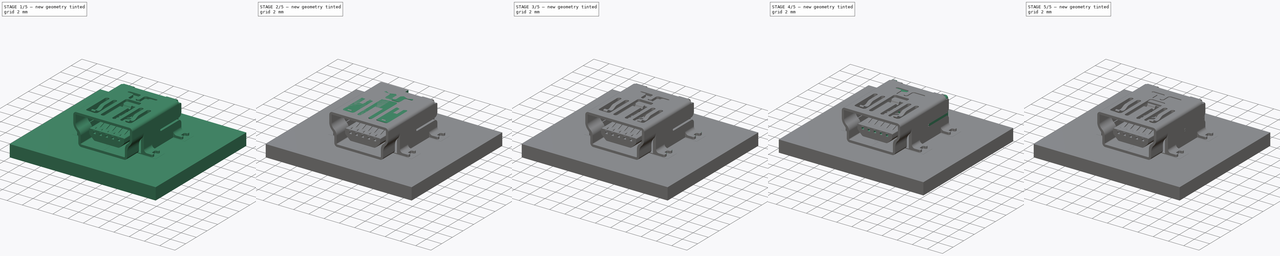
[diagram: build sequence overview — one tinted view per stage of 5, left to right]
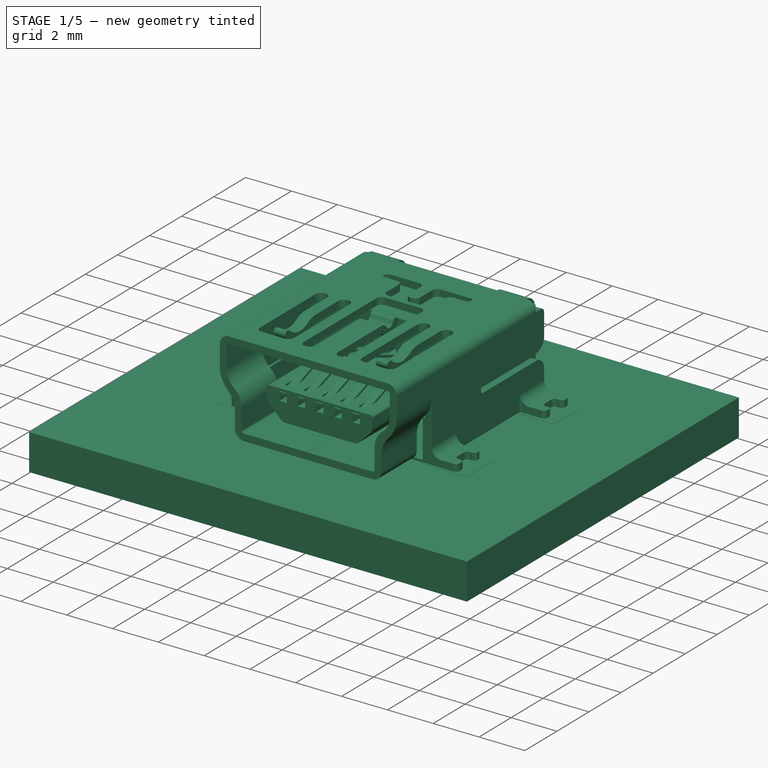
[diagram: stage 1 of 5 — iso view after this stage's code; geometry added in this stage tinted green]
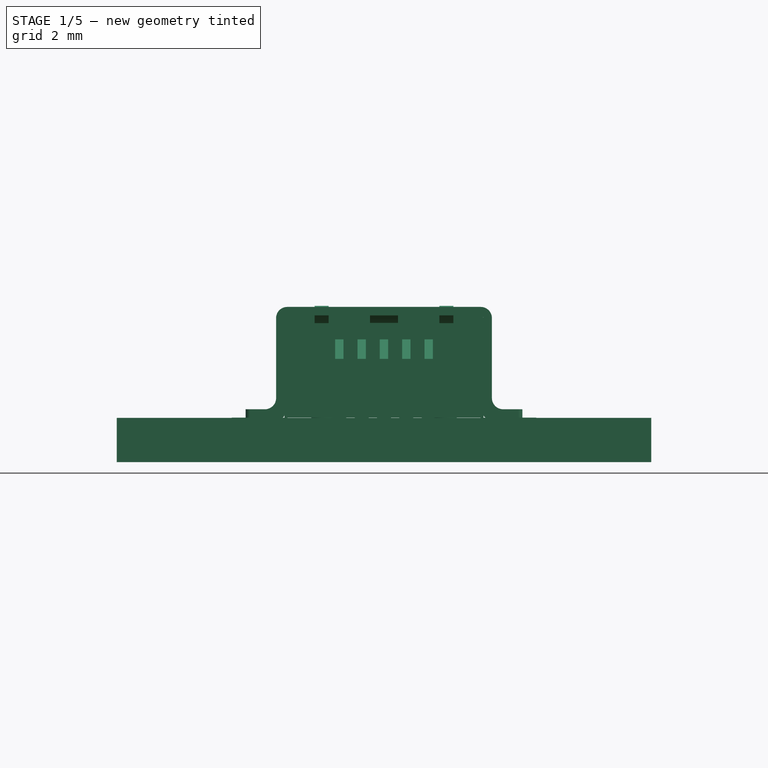
[diagram: stage 1 of 5 — front view after this stage's code; geometry added in this stage tinted green]
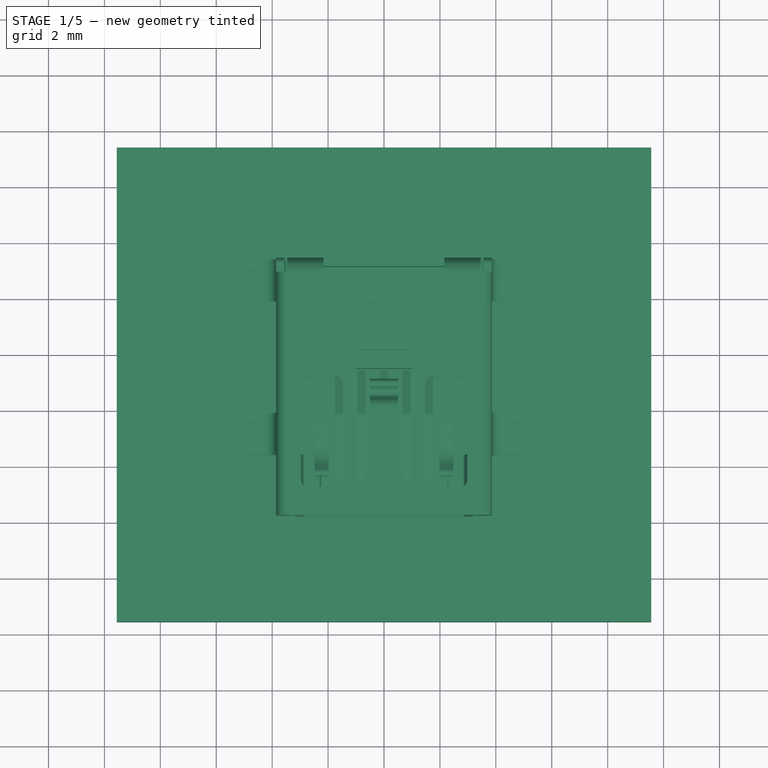
[diagram: stage 1 of 5 — top view after this stage's code; geometry added in this stage tinted green]
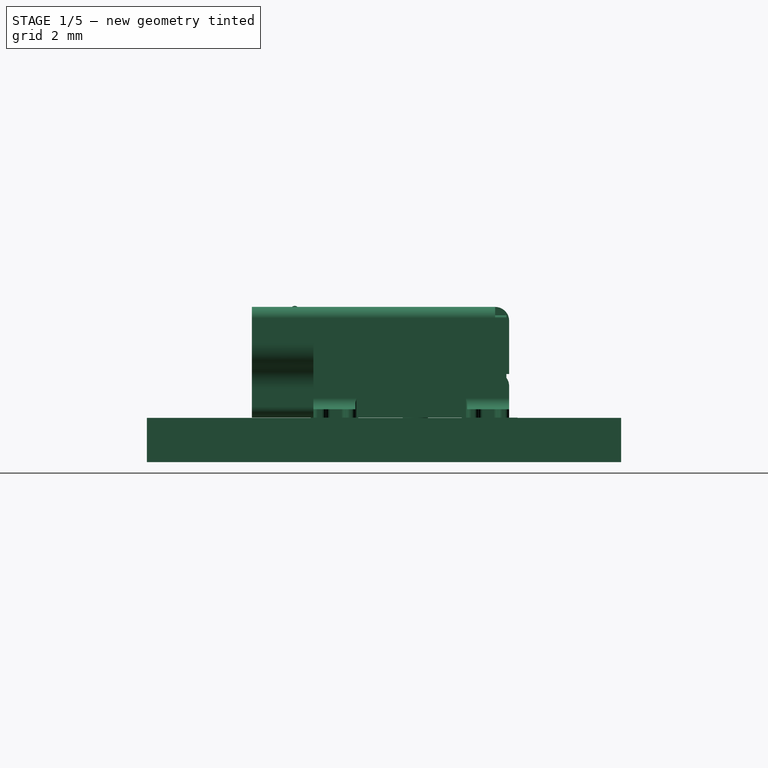
[diagram: stage 1 of 5 — right view after this stage's code; geometry added in this stage tinted green]
FCSTD DOCUMENT  (FreeCAD 0.18R13536 (Git))
Label: USB_Mini-B_Lumberg_2486_01_Horizontal
License: All rights reserved
LicenseURL: http://en.wikipedia.org/wiki/All_rights_reserved
objects: Sketcher::SketchObject×32, Part::Extrusion×16, Part::FeaturePython×13, Part::MultiFuse×10, PartDesign::Pad×9, PartDesign::Pocket×7, Part::Cut×6, Part::Fillet×6, Part::Feature×6, App::DocumentObjectGroup×6, PartDesign::Fillet×1, Part::Mirroring×1
note: 123 computed .brp shape members not serialized (recipe doc carries the construction recipe); baked Part::Feature solids carry a one-line shape summary decoded from their .brp

FEATURE [Part::Extrusion] Extrude_Sketch032  label="12.Sketch032_Extrude"
  Base = -> Sketch032
  Dir = (0,0,0.3)
  DirMode = 0
  FaceMakerClass = Part::FaceMakerExtrusion
  LengthFwd = 0
  LengthRev = 0
  Solid = true
  Symmetric = false
FEATURE [Sketcher::SketchObject] Sketch036  label="2.Sketch036"
  MapMode = 5
  Placement = pos=(0,-0.45,0) rot=(1,0,0;1.5708rad)
  sketch-geometry (12):
    g0: LineSegment StartX=-2.2 StartY=2.1 StartZ=0 EndX=2.2 EndY=2.1 EndZ=0
    g1: LineSegment StartX=-2.3 StartY=2 StartZ=0 EndX=-2.3 EndY=1.6 EndZ=0
    g2: LineSegment StartX=2.3 StartY=2 StartZ=0 EndX=2.3 EndY=1.6 EndZ=0
    g3: LineSegment StartX=2.21213 StartY=1.38787 StartZ=0 EndX=1.71213 EndY=0.887868 EndZ=0
    g4: LineSegment StartX=1.5 StartY=0.8 StartZ=0 EndX=-1.5 EndY=0.8 EndZ=0
    g5: LineSegment StartX=-1.71213 StartY=0.887868 StartZ=0 EndX=-2.21213 EndY=1.38787 EndZ=0
    g6: ArcOfCircle CenterX=-2.2 CenterY=2 CenterZ=0 NormalX=0 NormalY=0 NormalZ=1 AngleXU=0 Radius=0.1 StartAngle=1.5708 EndAngle=3.14159
    g7: ArcOfCircle CenterX=2.2 CenterY=2 CenterZ=0 NormalX=0 NormalY=0 NormalZ=1 AngleXU=0 Radius=0.1 StartAngle=0 EndAngle=1.5708
    g8: ArcOfCircle CenterX=-2 CenterY=1.6 CenterZ=0 NormalX=0 NormalY=0 NormalZ=1 AngleXU=0 Radius=0.3 StartAngle=3.14159 EndAngle=3.92699
    g9: ArcOfCircle CenterX=2 CenterY=1.6 CenterZ=0 NormalX=0 NormalY=0 NormalZ=1 AngleXU=0 Radius=0.3 StartAngle=5.49779 EndAngle=6.28319
    g10: ArcOfCircle CenterX=1.5 CenterY=1.1 CenterZ=0 NormalX=0 NormalY=0 NormalZ=1 AngleXU=0 Radius=0.3 StartAngle=4.71239 EndAngle=5.49779
    g11: ArcOfCircle CenterX=-1.5 CenterY=1.1 CenterZ=0 NormalX=0 NormalY=0 NormalZ=1 AngleXU=0 Radius=0.3 StartAngle=3.92699 EndAngle=4.71239
  constraints (30):
    c: Horizontal(g0)
    c: Vertical(g1)
    c: Vertical(g2)
    c: Horizontal(g4)
    c: Equal(g5,g3)
    c: Equal(g1,g2)
    c: Tangent(g0,g6) = 1.5708
    c: Tangent(g1,g6) = -1.5708
    c: Tangent(g0,g7) = 1.5708
    c: Tangent(g2,g7) = 1.5708
    c: Tangent(g5,g8) = 1.5708
    c: Tangent(g1,g8) = -1.5708
    c: Tangent(g2,g9) = 1.5708
    c: Tangent(g3,g9) = 1.5708
    c: Tangent(g4,g10) = 1.5708
    c: Tangent(g3,g10) = 1.5708
    c: Tangent(g4,g11) = 1.5708
    c: Tangent(g5,g11) = 1.5708
    c: Equal(g6,g7)
    c: Equal(g8,g9)
    c: Equal(g10,g11)
    c: Symmetric(g1,g2,g-2)
    c: DistanceX(g1,g2) = 4.6
    c: Radius(g7) = 0.1
    c: DistanceX(g4,g4) = 3
    c: Angle(g4,g5) = 2.35619
    c: DistanceY(g4,g0) = 1.3
    c: Radius(g10) = 0.3
    c: Equal(g11,g8)
    c: DistanceY(g-1,g0) = 2.1
FEATURE [Part::Extrusion] Extrude_Sketch036  label="2.1.Sketch036_Extrude-B"
  Base = -> Sketch036
  Dir = (0,-4.53,0)
  DirMode = 0
  FaceMakerClass = Part::FaceMakerExtrusion
  LengthFwd = 0
  LengthRev = 0
  Solid = true
  Symmetric = false
FEATURE [Part::FeaturePython] Clone006  label="Clone of 12.Sketch032_Extrude"  # Draft clone (typed FeaturePython)
  Objects = -> [Extrude_Sketch032]
  Scale = (1,1,1)
FEATURE [App::DocumentObjectGroup] Grupo001  label="carcaza"
  Group = -> [Pad001,Pocket,Fusion,Sketch039,Cut004]
FEATURE [Sketcher::SketchObject] Sketch040
  MapMode = 5
  Placement = pos=(0,-4.98,0) rot=(1,0,0;1.5708rad)
  sketch-geometry (24):
    g0: LineSegment StartX=-1.76 StartY=2 StartZ=0 EndX=-1.44 EndY=2 EndZ=0
    g1: LineSegment StartX=-1.44 StartY=2 StartZ=0 EndX=-1.44 EndY=1.6 EndZ=0
    g2: LineSegment StartX=-1.44 StartY=1.6 StartZ=0 EndX=-1.76 EndY=1.6 EndZ=0
    g3: LineSegment StartX=-1.76 StartY=1.6 StartZ=0 EndX=-1.76 EndY=2 EndZ=0
    g4: LineSegment StartX=-0.96 StartY=2 StartZ=0 EndX=-0.64 EndY=2 EndZ=0
    g5: LineSegment StartX=-0.64 StartY=2 StartZ=0 EndX=-0.64 EndY=1.6 EndZ=0
    g6: LineSegment StartX=-0.64 StartY=1.6 StartZ=0 EndX=-0.96 EndY=1.6 EndZ=0
    g7: LineSegment StartX=-0.96 StartY=1.6 StartZ=0 EndX=-0.96 EndY=2 EndZ=0
    g8: LineSegment StartX=-0.16 StartY=2 StartZ=0 EndX=0.16 EndY=2 EndZ=0
    g9: LineSegment StartX=0.16 StartY=2 StartZ=0 EndX=0.16 EndY=1.6 EndZ=0
    g10: LineSegment StartX=0.16 StartY=1.6 StartZ=0 EndX=-0.16 EndY=1.6 EndZ=0
    g11: LineSegment StartX=-0.16 StartY=1.6 StartZ=0 EndX=-0.16 EndY=2 EndZ=0
    g12: LineSegment StartX=0.64 StartY=2 StartZ=0 EndX=0.96 EndY=2 EndZ=0
    g13: LineSegment StartX=0.96 StartY=2 StartZ=0 EndX=0.96 EndY=1.6 EndZ=0
    g14: LineSegment StartX=0.96 StartY=1.6 StartZ=0 EndX=0.64 EndY=1.6 EndZ=0
    g15: LineSegment StartX=0.64 StartY=1.6 StartZ=0 EndX=0.64 EndY=2 EndZ=0
    g16: LineSegment StartX=1.44 StartY=2 StartZ=0 EndX=1.76 EndY=2 EndZ=0
    g17: LineSegment StartX=1.76 StartY=2 StartZ=0 EndX=1.76 EndY=1.6 EndZ=0
    g18: LineSegment StartX=1.76 StartY=1.6 StartZ=0 EndX=1.44 EndY=1.6 EndZ=0
    g19: LineSegment StartX=1.44 StartY=1.6 StartZ=0 EndX=1.44 EndY=2 EndZ=0
    g20: LineSegment [constr] StartX=-0.16 StartY=2 StartZ=0 EndX=-0.64 EndY=2 EndZ=0
    g21: LineSegment [constr] StartX=-0.96 StartY=2 StartZ=0 EndX=-1.44 EndY=2 EndZ=0
    g22: LineSegment [constr] StartX=0.16 StartY=2 StartZ=0 EndX=0.64 EndY=2 EndZ=0
    g23: LineSegment [constr] StartX=0.96 StartY=2 StartZ=0 EndX=1.44 EndY=2 EndZ=0
  constraints (68):
    c: Coincident(g0,g1)
    c: Coincident(g1,g2)
    c: Coincident(g2,g3)
    c: Coincident(g3,g0)
    c: Horizontal(g0)
    c: Horizontal(g2)
    c: Vertical(g1)
    c: Vertical(g3)
    c: Coincident(g4,g5)
    c: Coincident(g5,g6)
    c: Coincident(g6,g7)
    c: Coincident(g7,g4)
    c: Horizontal(g4)
    c: Horizontal(g6)
    c: Vertical(g5)
    c: Vertical(g7)
    c: Coincident(g8,g9)
    c: Coincident(g9,g10)
    c: Coincident(g10,g11)
    c: Coincident(g11,g8)
    c: Horizontal(g8)
    c: Horizontal(g10)
    c: Vertical(g9)
    c: Vertical(g11)
    c: Coincident(g12,g13)
    c: Coincident(g13,g14)
    c: Coincident(g14,g15)
    c: Coincident(g15,g12)
    c: Horizontal(g12)
    c: Horizontal(g14)
    c: Vertical(g13)
    c: Vertical(g15)
    c: Coincident(g16,g17)
    c: Coincident(g17,g18)
    c: Coincident(g18,g19)
    c: Coincident(g19,g16)
    c: Horizontal(g16)
    c: Horizontal(g18)
    c: Vertical(g17)
    c: Vertical(g19)
    c: Equal(g2,g6)
    c: Equal(g6,g10)
    c: Equal(g10,g14)
    c: Equal(g14,g18)
    c: Equal(g3,g7)
    c: Equal(g7,g11)
    c: Equal(g11,g15)
    c: Equal(g15,g19)
    c: Symmetric(g10,g9,g-2)
    c: Coincident(g20,g8)
    c: Coincident(g20,g4)
    c: Horizontal(g20)
    c: Coincident(g21,g4)
    c: Coincident(g21,g0)
    c: Horizontal(g21)
    c: Coincident(g22,g8)
    c: Coincident(g22,g12)
    c: Horizontal(g22)
    c: Coincident(g23,g12)
    c: Coincident(g23,g16)
    c: Horizontal(g23)
    c: Equal(g21,g20)
    c: Equal(g20,g22)
    c: Equal(g22,g23)
    c: DistanceY(g-1,g0) = 2
    c: DistanceX(g2,g2) = 0.32
    c: DistanceY(g17,g17) = 0.4
    c: DistanceX(g21,g21) = 0.48
FEATURE [Part::Extrusion] Extrude_Sketch040  label="2.2.2.Sketch040_Extrude"
  Base = -> Sketch040
  Dir = (0,0.8,0)
  DirMode = 0
  FaceMakerClass = Part::FaceMakerExtrusion
  LengthFwd = 0
  LengthRev = 0
  Solid = true
  Symmetric = false
FEATURE [Sketcher::SketchObject] Sketch041
  MapMode = 5
  Placement = pos=(0,-0.2,1.995) rot=(0,0,1;0rad)
  sketch-geometry (24):
    g0: LineSegment StartX=-1.44 StartY=-4.55 StartZ=0 EndX=-1.76 EndY=-4.55 EndZ=0
    g1: LineSegment StartX=-1.76 StartY=-4.55 StartZ=0 EndX=-1.76 EndY=-3.9 EndZ=0
    g2: LineSegment StartX=-1.76 StartY=-3.9 StartZ=0 EndX=-1.44 EndY=-3.9 EndZ=0
    g3: LineSegment StartX=-1.44 StartY=-3.9 StartZ=0 EndX=-1.44 EndY=-4.55 EndZ=0
    g4: LineSegment StartX=-0.64 StartY=-4.55 StartZ=0 EndX=-0.96 EndY=-4.55 EndZ=0
    g5: LineSegment StartX=-0.96 StartY=-4.55 StartZ=0 EndX=-0.96 EndY=-3.9 EndZ=0
    g6: LineSegment StartX=-0.96 StartY=-3.9 StartZ=0 EndX=-0.64 EndY=-3.9 EndZ=0
    g7: LineSegment StartX=-0.64 StartY=-3.9 StartZ=0 EndX=-0.64 EndY=-4.55 EndZ=0
    g8: LineSegment StartX=0.16 StartY=-4.55 StartZ=0 EndX=-0.16 EndY=-4.55 EndZ=0
    g9: LineSegment StartX=-0.16 StartY=-4.55 StartZ=0 EndX=-0.16 EndY=-3.9 EndZ=0
    g10: LineSegment StartX=-0.16 StartY=-3.9 StartZ=0 EndX=0.16 EndY=-3.9 EndZ=0
    g11: LineSegment StartX=0.16 StartY=-3.9 StartZ=0 EndX=0.16 EndY=-4.55 EndZ=0
    g12: LineSegment StartX=0.96 StartY=-4.55 StartZ=0 EndX=0.64 EndY=-4.55 EndZ=0
    g13: LineSegment StartX=0.64 StartY=-4.55 StartZ=0 EndX=0.64 EndY=-3.9 EndZ=0
    g14: LineSegment StartX=0.64 StartY=-3.9 StartZ=0 EndX=0.96 EndY=-3.9 EndZ=0
    g15: LineSegment StartX=0.96 StartY=-3.9 StartZ=0 EndX=0.96 EndY=-4.55 EndZ=0
    g16: LineSegment StartX=1.76 StartY=-4.55 StartZ=0 EndX=1.44 EndY=-4.55 EndZ=0
    g17: LineSegment StartX=1.44 StartY=-4.55 StartZ=0 EndX=1.44 EndY=-3.9 EndZ=0
    g18: LineSegment StartX=1.44 StartY=-3.9 StartZ=0 EndX=1.76 EndY=-3.9 EndZ=0
    g19: LineSegment StartX=1.76 StartY=-3.9 StartZ=0 EndX=1.76 EndY=-4.55 EndZ=0
    g20: LineSegment [constr] StartX=-0.96 StartY=-3.9 StartZ=0 EndX=-1.44 EndY=-3.9 EndZ=0
    g21: LineSegment [constr] StartX=-0.16 StartY=-3.9 StartZ=0 EndX=-0.64 EndY=-3.9 EndZ=0
    g22: LineSegment [constr] StartX=0.64 StartY=-3.9 StartZ=0 EndX=0.16 EndY=-3.9 EndZ=0
    g23: LineSegment [constr] StartX=1.44 StartY=-3.9 StartZ=0 EndX=0.96 EndY=-3.9 EndZ=0
  constraints (68):
    c: Coincident(g0,g1)
    c: Coincident(g1,g2)
    c: Coincident(g2,g3)
    c: Coincident(g3,g0)
    c: Horizontal(g0)
    c: Horizontal(g2)
    c: Vertical(g1)
    c: Vertical(g3)
    c: Coincident(g4,g5)
    c: Coincident(g5,g6)
    c: Coincident(g6,g7)
    c: Coincident(g7,g4)
    c: Horizontal(g4)
    c: Horizontal(g6)
    c: Vertical(g5)
    c: Vertical(g7)
    c: Coincident(g8,g9)
    c: Coincident(g9,g10)
    c: Coincident(g10,g11)
    c: Coincident(g11,g8)
    c: Horizontal(g8)
    c: Horizontal(g10)
    c: Vertical(g9)
    c: Vertical(g11)
    c: Coincident(g12,g13)
    c: Coincident(g13,g14)
    c: Coincident(g14,g15)
    c: Coincident(g15,g12)
    c: Horizontal(g12)
    c: Horizontal(g14)
    c: Vertical(g13)
    c: Vertical(g15)
    c: Coincident(g16,g17)
    c: Coincident(g17,g18)
    c: Coincident(g18,g19)
    c: Coincident(g19,g16)
    c: Horizontal(g16)
    c: Horizontal(g18)
    c: Vertical(g17)
    c: Vertical(g19)
    c: Equal(g0,g4)
    c: Equal(g4,g8)
    c: Equal(g8,g12)
    c: Equal(g12,g16)
    c: Equal(g1,g5)
    c: Equal(g5,g9)
    c: Equal(g9,g13)
    c: Equal(g13,g17)
    c: Symmetric(g8,g8,g-2)
    c: Coincident(g20,g5)
    c: Coincident(g20,g2)
    c: Horizontal(g20)
    c: Coincident(g21,g9)
    c: Coincident(g21,g6)
    c: Coincident(g22,g13)
    c: Coincident(g22,g10)
    c: Coincident(g23,g17)
    c: Coincident(g23,g14)
    c: Equal(g23,g22)
    c: Equal(g22,g21)
    c: Equal(g21,g20)
    c: Horizontal(g21)
    c: Horizontal(g22)
    c: Horizontal(g23)
    c: DistanceX(g0,g0) = 0.32
    c: DistanceX(g20,g20) = 0.48
    c: DistanceY(g1,g1) = 0.65
    c: DistanceY(g16) = -4.55
FEATURE [Part::Extrusion] Extrude_Sketch041  label="2.2.1.Sketch041_Extrude"
  Base = -> Sketch041
  Dir = (0,0,0.15)
  DirMode = 0
  FaceMakerClass = Part::FaceMakerExtrusion
  LengthFwd = 0
  LengthRev = 0
  Solid = true
  Symmetric = false
FEATURE [Part::MultiFuse] Fusion009005  label="2.2.Fusion009005-B"
  Refine = true
  Shapes = -> [Extrude_Sketch041,Extrude_Sketch040]
FEATURE [Part::Cut] Cut004002  label="2.Cut004002-B"
  Base = -> Extrude_Sketch036
  Refine = true
  Tool = -> Fusion009005
FEATURE [Sketcher::SketchObject] Sketch042
  MapMode = 5
  Placement = pos=(0,-0.1,0) rot=(0,0,1;3.14159rad)
  sketch-geometry (2):
    g0: Circle CenterX=2.2 CenterY=-0.2 CenterZ=0 NormalX=0 NormalY=0 NormalZ=1 AngleXU=0 Radius=0.4
    g1: Circle CenterX=-2.2 CenterY=-0.2 CenterZ=0 NormalX=0 NormalY=0 NormalZ=1 AngleXU=0 Radius=0.4
  constraints (5):
    c: Equal(g0,g1)
    c: Symmetric(g0,g1,g-2)
    c: Radius(g0) = 0.4
    c: DistanceX(g1,g0) = 4.4
    c: DistanceY(g0,g-1) = 0.2
FEATURE [Part::Extrusion] Extrude_Sketch042  label="5.Sketch042_Extrude-E"
  Base = -> Sketch042
  Dir = (0,0,-1)
  DirMode = 0
  FaceMakerClass = Part::FaceMakerExtrusion
  LengthFwd = 0
  LengthRev = 0
  Solid = true
  Symmetric = false
FEATURE [Part::Fillet] Fillet002005006  label="5.Fillet002005006-E"
  Base = -> Extrude_Sketch042
  Edges = 2 edges r=0.1: [Edge3,Edge6]
FEATURE [App::DocumentObjectGroup] Grupo004  label="relleno"
  Group = -> [Fusion009006]
FEATURE [App::DocumentObjectGroup] Grupo  label="Make"
  Group = -> [Grupo001,Grupo002,Grupo003,Grupo004]
FEATURE [Part::FeaturePython] FCrtYd_lines  label="FCrtYd"  # a2plus imported part (geometry in sourceFile) (typed FeaturePython)
  fixedPosition = true
FEATURE [Part::FeaturePython] FFab_lines  label="FFab"  # a2plus imported part (geometry in sourceFile) (typed FeaturePython)
  fixedPosition = true
FEATURE [Part::FeaturePython] Filk_lines  label="FrontSilk"  # a2plus imported part (geometry in sourceFile) (typed FeaturePython)
  fixedPosition = true
FEATURE [Part::FeaturePython] TopPads  # a2plus imported part (geometry in sourceFile) (typed FeaturePython)
  fixedPosition = true
FEATURE [Part::FeaturePython] THPs  label="PTHs"  # a2plus imported part (geometry in sourceFile) (typed FeaturePython)
  fixedPosition = true
FEATURE [Part::FeaturePython] newPCB  label="Pcb"  # a2plus imported part (geometry in sourceFile) (typed FeaturePython)
  fixedPosition = true
FEATURE [App::DocumentObjectGroup] USB_Mini_B_Lumberg_2486_01_Horizontal_fp
  Group = -> [FCrtYd_lines,FFab_lines,Filk_lines,TopPads,THPs,newPCB]
FEATURE [Part::Feature] Fusion009006002  label="PINES"
  Placement = pos=(0,-0.1,0) rot=(0,0,1;0rad)
  shape: bbox 3.5 x 8.535 x 2.799 mm, 130 faces, 5 solids (baked)
FEATURE [Part::Feature] Cut004003  label="Carcaza"
  Placement = pos=(0,-0.1,0) rot=(0,0,1;0rad)
  shape: bbox 9.9 x 9.2 x 3.997 mm, 228 faces, 2 solids (baked)
FEATURE [Part::Feature] Fusion009006003  label="Relleno"
  Placement = pos=(0,-0.1,0) rot=(0,0,1;0rad)
  shape: bbox 7.119 x 8.38 x 4.66 mm, 109 faces (baked)
FEATURE [Part::MultiFuse] Fusion009006004  label="USB_Mini-B_Lumberg_2486_01_Horizontal_"
  Refine = true
  Shapes = -> [Fusion009006002,Cut004003,Fusion009006003]
FEATURE [Part::Feature] Part__Feature  label="USB_Mini-B_Lumberg_2486_01_Horizontal"
  shape: bbox 9.9 x 9.2 x 4.997 mm, 472 faces (baked)
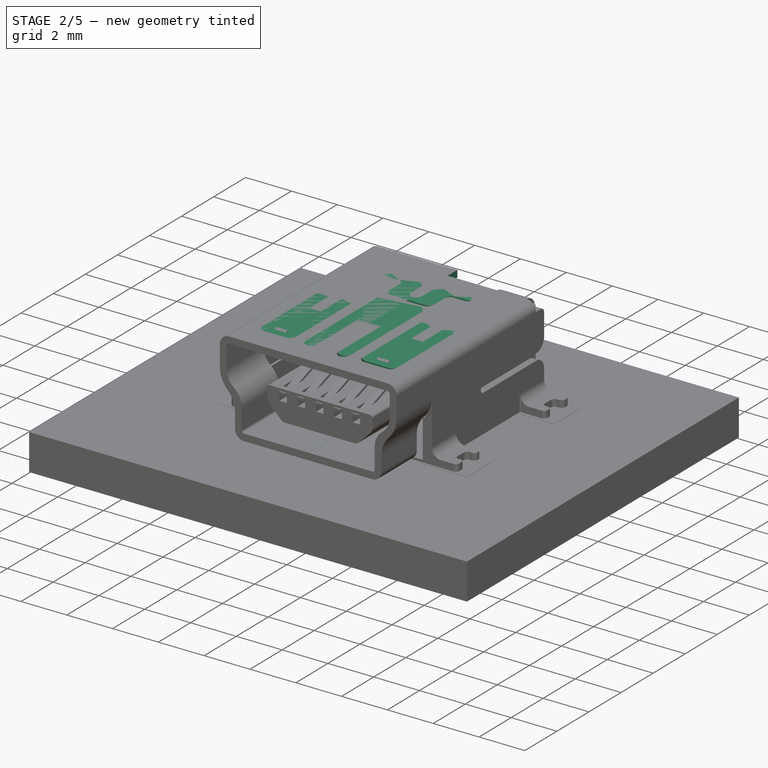
[diagram: stage 2 of 5 — iso view after this stage's code; geometry added in this stage tinted green]
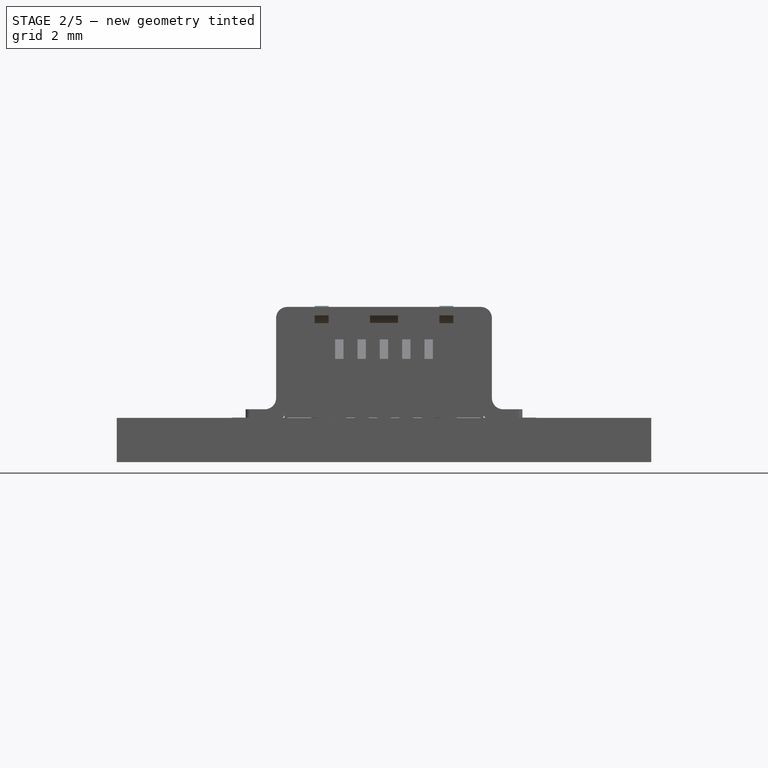
[diagram: stage 2 of 5 — front view after this stage's code; geometry added in this stage tinted green]
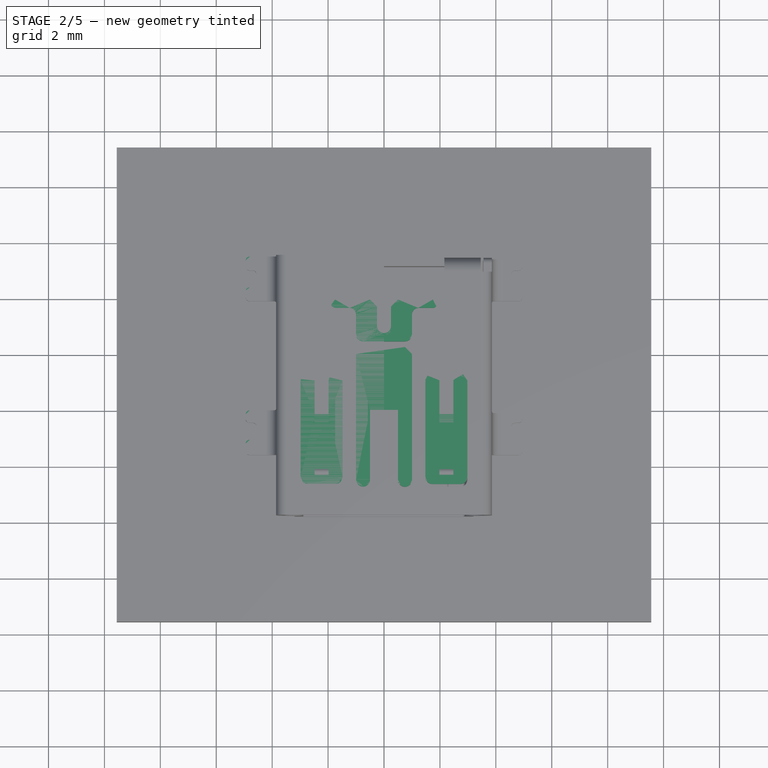
[diagram: stage 2 of 5 — top view after this stage's code; geometry added in this stage tinted green]
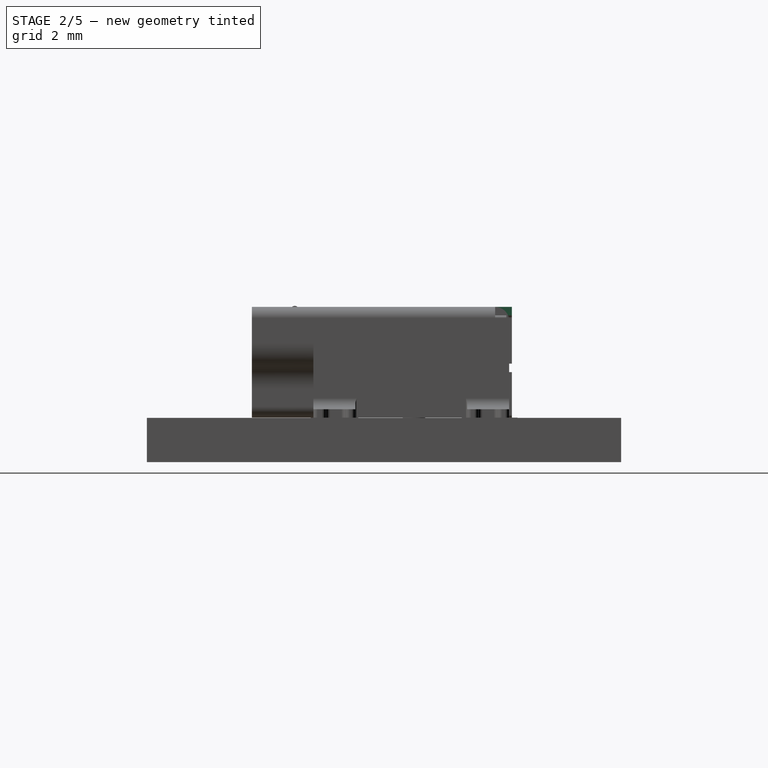
[diagram: stage 2 of 5 — right view after this stage's code; geometry added in this stage tinted green]
FEATURE [Sketcher::SketchObject] Sketch  label="1.Sketch"
  MapMode = 5
  Placement = pos=(0,-5.7,0) rot=(1,0,0;1.5708rad)
  sketch-geometry (18):
    g0: LineSegment StartX=0 StartY=0 StartZ=0 EndX=2.8 EndY=0 EndZ=0
    g1: LineSegment StartX=3.2 StartY=0.4 StartZ=0 EndX=3.2 EndY=1.0347 EndZ=0
    g2: LineSegment StartX=3.86 StartY=2.66 StartZ=0 EndX=3.86 EndY=3.56 EndZ=0
    g3: LineSegment StartX=3.46 StartY=3.96 StartZ=0 EndX=0 EndY=3.96 EndZ=0
    g4: LineSegment StartX=0 StartY=3.66 StartZ=0 EndX=3.46 EndY=3.66 EndZ=0
    g5: LineSegment StartX=3.56 StartY=3.56 StartZ=0 EndX=3.56 EndY=2.66 EndZ=0
    g6: LineSegment StartX=2.9 StartY=1.3 StartZ=0 EndX=2.9 EndY=0.4 EndZ=0
    g7: LineSegment StartX=2.8 StartY=0.3 StartZ=0 EndX=0 EndY=0.3 EndZ=0
    g8: ArcOfCircle CenterX=3.46 CenterY=3.56 CenterZ=0 NormalX=0 NormalY=0 NormalZ=1 AngleXU=0 Radius=0.4 StartAngle=0 EndAngle=1.5708
    g9: ArcOfCircle CenterX=3.46 CenterY=3.56 CenterZ=0 NormalX=0 NormalY=0 NormalZ=1 AngleXU=0 Radius=0.1 StartAngle=0 EndAngle=1.5708
    g10: ArcOfCircle CenterX=2.8 CenterY=0.4 CenterZ=0 NormalX=0 NormalY=0 NormalZ=1 AngleXU=0 Radius=0.4 StartAngle=4.71239 EndAngle=6.28319
    g11: ArcOfCircle CenterX=2.8 CenterY=0.4 CenterZ=0 NormalX=0 NormalY=0 NormalZ=1 AngleXU=0 Radius=0.1 StartAngle=4.71239 EndAngle=6.28319
    g12: LineSegment StartX=0 StartY=0 StartZ=0 EndX=0 EndY=0.3 EndZ=0
    g13: LineSegment StartX=0 StartY=3.96 StartZ=0 EndX=0 EndY=3.66 EndZ=0
    g14: ArcOfCircle CenterX=3.76561 CenterY=1.3 CenterZ=0 NormalX=0 NormalY=0 NormalZ=1 AngleXU=0 Radius=0.865606 StartAngle=2.23796 EndAngle=3.14159
    g15: ArcOfCircle CenterX=2.69439 CenterY=2.66 CenterZ=0 NormalX=0 NormalY=0 NormalZ=1 AngleXU=0 Radius=0.865606 StartAngle=5.37956 EndAngle=6.28319
    g16: ArcOfCircle CenterX=4.36561 CenterY=1.0347 CenterZ=0 NormalX=0 NormalY=0 NormalZ=1 AngleXU=0 Radius=1.16561 StartAngle=2.37012 EndAngle=3.14159
    g17: ArcOfCircle CenterX=2.69439 CenterY=2.66 CenterZ=0 NormalX=0 NormalY=0 NormalZ=1 AngleXU=0 Radius=1.16561 StartAngle=5.51171 EndAngle=6.28319
  constraints (50):
    c: Coincident(g-1,g0)
    c: Vertical(g1)
    c: Horizontal(g3)
    c: PointOnObject(g3,g-2)
    c: PointOnObject(g4,g-2)
    c: Horizontal(g4)
    c: Vertical(g6)
    c: Horizontal(g7)
    c: PointOnObject(g7,g-2)
    c: Vertical(g5)
    c: DistanceY(g-1,g7) = 0.3
    c: Vertical(g2)
    c: Tangent(g2,g8) = -1.5708
    c: Tangent(g3,g8) = -1.5708
    c: DistanceX(g3,g2) = 3.86
    c: DistanceY(g-1,g3) = 3.96
    c: Tangent(g5,g9) = 1.5708
    c: Tangent(g4,g9) = 1.5708
    c: Tangent(g1,g10) = -1.5708
    c: Tangent(g0,g10) = -1.5708
    c: Horizontal(g0)
    c: Tangent(g6,g11) = 1.5708
    c: Tangent(g7,g11) = 1.5708
    c: Coincident(g12,g-1)
    c: Coincident(g12,g7)
    c: Coincident(g13,g3)
    c: Coincident(g13,g4)
    c: Equal(g13,g12)
    c: Coincident(g10,g11)
    c: DistanceX(g-1,g1) = 3.2
    c: Coincident(g9,g8)
    c: Radius(g8) = 0.4
    c: Coincident(g14,g6)
    c: Coincident(g15,g5)
    c: Coincident(g15,g14)
    c: Equal(g14,g15)
    c: Tangent(g5,g15)
    c: Tangent(g14,g6)
    c: Tangent(g15,g14)
    c: Coincident(g16,g1)
    c: Coincident(g17,g2)
    c: Coincident(g17,g16)
    c: Equal(g16,g17)
    c: Tangent(g1,g16)
    c: Tangent(g2,g17)
    c: Tangent(g17,g16)
    c: Coincident(g15,g17)
    c: DistanceY(g2,g3) = 1.3
    c: DistanceY(g0,g6) = 1.3
    c: Radius(g11) = 0.1
FEATURE [PartDesign::Pad] Pad  label="1.Pad-A"
  Length = 2.2
  Length2 = 100
  Placement = pos=(0,-5.7,0) rot=(1,0,0;1.5708rad)
  Profile = -> Sketch
  Refine = true
  Reversed = true
  Type = 0
FEATURE [Sketcher::SketchObject] Sketch001  label="2.1.Sketch001"
  MapMode = 5
  Placement = pos=(0,-3.5,0) rot=(1,0,0;1.5708rad)
  sketch-geometry (24):
    g0: LineSegment [constr] StartX=0 StartY=0 StartZ=0 EndX=2.8 EndY=0 EndZ=0
    g1: LineSegment [constr] StartX=3.2 StartY=0.4 StartZ=0 EndX=3.2 EndY=1.0347 EndZ=0
    g2: LineSegment StartX=3.86 StartY=2.66 StartZ=0 EndX=3.86 EndY=3.56 EndZ=0
    g3: LineSegment StartX=3.46 StartY=3.96 StartZ=0 EndX=0 EndY=3.96 EndZ=0
    g4: LineSegment StartX=0 StartY=3.66 StartZ=0 EndX=3.46 EndY=3.66 EndZ=0
    g5: LineSegment StartX=3.56 StartY=3.56 StartZ=0 EndX=3.56 EndY=2.66 EndZ=0
    g6: LineSegment [constr] StartX=2.9 StartY=1.3 StartZ=0 EndX=2.9 EndY=0.4 EndZ=0
    g7: LineSegment [constr] StartX=2.8 StartY=0.3 StartZ=0 EndX=0 EndY=0.3 EndZ=0
    g8: ArcOfCircle CenterX=3.46 CenterY=3.56 CenterZ=0 NormalX=0 NormalY=0 NormalZ=1 AngleXU=0 Radius=0.4 StartAngle=0 EndAngle=1.5708
    g9: ArcOfCircle CenterX=3.46 CenterY=3.56 CenterZ=0 NormalX=0 NormalY=0 NormalZ=1 AngleXU=0 Radius=0.1 StartAngle=0 EndAngle=1.5708
    g10: ArcOfCircle [constr] CenterX=2.8 CenterY=0.4 CenterZ=0 NormalX=0 NormalY=0 NormalZ=1 AngleXU=0 Radius=0.4 StartAngle=4.71239 EndAngle=6.28319
    g11: ArcOfCircle [constr] CenterX=2.8 CenterY=0.4 CenterZ=0 NormalX=0 NormalY=0 NormalZ=1 AngleXU=0 Radius=0.1 StartAngle=4.71239 EndAngle=6.28319
    g12: LineSegment [constr] StartX=0 StartY=0 StartZ=0 EndX=0 EndY=0.3 EndZ=0
    g13: LineSegment StartX=0 StartY=3.96 StartZ=0 EndX=0 EndY=3.66 EndZ=0
    g14: ArcOfCircle [constr] CenterX=3.76561 CenterY=1.3 CenterZ=0 NormalX=0 NormalY=0 NormalZ=1 AngleXU=0 Radius=0.865606 StartAngle=2.23796 EndAngle=3.14159
    g15: ArcOfCircle [constr] CenterX=2.69439 CenterY=2.66 CenterZ=0 NormalX=0 NormalY=0 NormalZ=1 AngleXU=0 Radius=0.865606 StartAngle=5.37956 EndAngle=6.28319
    g16: ArcOfCircle [constr] CenterX=4.36561 CenterY=1.0347 CenterZ=0 NormalX=0 NormalY=0 NormalZ=1 AngleXU=0 Radius=1.16561 StartAngle=2.37012 EndAngle=3.14159
    g17: ArcOfCircle [constr] CenterX=2.69439 CenterY=2.66 CenterZ=0 NormalX=0 NormalY=0 NormalZ=1 AngleXU=0 Radius=1.16561 StartAngle=5.51171 EndAngle=6.28319
    g18: LineSegment StartX=3.56 StartY=2.66 StartZ=0 EndX=3.56 EndY=0 EndZ=0
    g19: LineSegment StartX=3.86 StartY=2.66 StartZ=0 EndX=3.86 EndY=0.7 EndZ=0
    g20: LineSegment StartX=4.26 StartY=0.3 StartZ=0 EndX=4.95 EndY=0.3 EndZ=0
    g21: LineSegment StartX=4.95 StartY=0.3 StartZ=0 EndX=4.95 EndY=0 EndZ=0
    g22: ArcOfCircle CenterX=4.26 CenterY=0.7 CenterZ=0 NormalX=0 NormalY=0 NormalZ=1 AngleXU=0 Radius=0.4 StartAngle=3.14159 EndAngle=4.71239
    g23: LineSegment StartX=3.56 StartY=0 StartZ=0 EndX=4.95 EndY=0 EndZ=0
  constraints (66):
    c: Coincident(g-1,g0)
    c: Vertical(g1)
    c: Horizontal(g3)
    c: PointOnObject(g3,g-2)
    c: PointOnObject(g4,g-2)
    c: Horizontal(g4)
    c: Vertical(g6)
    c: Horizontal(g7)
    c: PointOnObject(g7,g-2)
    c: Vertical(g5)
    c: DistanceY(g-1,g7) = 0.3
    c: Vertical(g2)
    c: Tangent(g2,g8) = -1.5708
    c: Tangent(g3,g8) = -1.5708
    c: DistanceX(g3,g2) = 3.86
    c: DistanceY(g-1,g3) = 3.96
    c: Tangent(g5,g9) = 1.5708
    c: Tangent(g4,g9) = 1.5708
    c: Tangent(g1,g10) = -1.5708
    c: Tangent(g0,g10) = -1.5708
    c: Horizontal(g0)
    c: Tangent(g6,g11) = 1.5708
    c: Tangent(g7,g11) = 1.5708
    c: Coincident(g12,g-1)
    c: Coincident(g12,g7)
    c: Coincident(g13,g3)
    c: Coincident(g13,g4)
    c: Equal(g13,g12)
    c: Coincident(g10,g11)
    c: DistanceX(g-1,g1) = 3.2
    c: Coincident(g9,g8)
    c: Radius(g8) = 0.4
    c: Coincident(g14,g6)
    c: Coincident(g15,g5)
    c: Coincident(g15,g14)
    c: Equal(g14,g15)
    c: Tangent(g5,g15)
    c: Tangent(g14,g6)
    c: Tangent(g15,g14)
    c: Coincident(g16,g1)
    c: Coincident(g17,g2)
    c: Coincident(g17,g16)
    c: Equal(g16,g17)
    c: Tangent(g1,g16)
    c: Tangent(g2,g17)
    c: Tangent(g17,g16)
    c: Coincident(g15,g17)
    c: DistanceY(g2,g3) = 1.3
    c: DistanceY(g0,g6) = 1.3
    c: Coincident(g5,g18)
    c: Vertical(g18)
    c: Coincident(g2,g19)
    c: Vertical(g19)
    c: Horizontal(g20)
    c: Coincident(g20,g21)
    c: Vertical(g21)
    c: Equal(g21,g12)
    c: Tangent(g20,g22) = -1.5708
    c: Tangent(g19,g22) = -1.5708
    c: Equal(g22,g10)
    c: DistanceX(g-1,g21) = 4.95
    c: PointOnObject(g18,g-1)
    c: PointOnObject(g21,g-1)
    c: Coincident(g23,g18)
    c: Coincident(g23,g21)
    c: Radius(g11) = 0.1
FEATURE [PartDesign::Pad] Pad001  label="2.Pad001"
  Length = 7
  Length2 = 100
  Placement = pos=(0,-3.5,0) rot=(1,0,0;1.5708rad)
  Profile = -> Sketch001
  Refine = true
  Reversed = true
  Type = 0
FEATURE [Sketcher::SketchObject] Sketch002  label="3.Sketch002"
  ExternalGeometry = -> [Pad001]
  MapMode = 5
  Placement = pos=(0,-3.5,0) rot=(1,0,0;3.14159rad)
  Support = -> [Pad001]
  sketch-geometry (36):
    g0: LineSegment StartX=4.95 StartY=-7 StartZ=0 EndX=4.95 EndY=-6.85 EndZ=0
    g1: LineSegment StartX=4.95 StartY=-7 StartZ=0 EndX=4.8 EndY=-7 EndZ=0
    g2: ArcOfCircle CenterX=4.8 CenterY=-6.85 CenterZ=0 NormalX=0 NormalY=0 NormalZ=1 AngleXU=0 Radius=0.15 StartAngle=4.71239 EndAngle=6.28318
    g3: LineSegment StartX=4.95 StartY=-5.65 StartZ=0 EndX=4.95 EndY=-1.35 EndZ=0
    g4: ArcOfCircle CenterX=4.8 CenterY=-1.35 CenterZ=0 NormalX=0 NormalY=0 NormalZ=1 AngleXU=0 Radius=0.15 StartAngle=4.71239 EndAngle=6.28319
    g5: LineSegment StartX=4.8 StartY=-1.5 StartZ=0 EndX=3.91 EndY=-1.5 EndZ=0
    g6: LineSegment StartX=3.86 StartY=-1.55 StartZ=0 EndX=3.86 EndY=-5.45 EndZ=0
    g7: LineSegment StartX=3.91 StartY=-5.5 StartZ=0 EndX=4.8 EndY=-5.5 EndZ=0
    g8: ArcOfCircle CenterX=4.8 CenterY=-5.65 CenterZ=0 NormalX=0 NormalY=0 NormalZ=1 AngleXU=0 Radius=0.15 StartAngle=3.4259e-08 EndAngle=1.5708
    g9: ArcOfCircle CenterX=3.91 CenterY=-1.55 CenterZ=0 NormalX=0 NormalY=0 NormalZ=1 AngleXU=0 Radius=0.05 StartAngle=1.5708 EndAngle=3.14159
    g10: ArcOfCircle CenterX=3.91 CenterY=-5.45 CenterZ=0 NormalX=0 NormalY=0 NormalZ=1 AngleXU=0 Radius=0.05 StartAngle=3.14159 EndAngle=4.71239
    g11: ArcOfCircle CenterX=4.8 CenterY=-6.75 CenterZ=0 NormalX=0 NormalY=0 NormalZ=1 AngleXU=0 Radius=0.15 StartAngle=6.28318 EndAngle=7.85398
    g12: ArcOfCircle CenterX=4.8 CenterY=-5.75 CenterZ=0 NormalX=0 NormalY=0 NormalZ=1 AngleXU=0 Radius=0.15 StartAngle=4.71239 EndAngle=6.28319
    g13: LineSegment StartX=4.55 StartY=-6.05 StartZ=0 EndX=4.55 EndY=-6.25 EndZ=0
    g14: LineSegment StartX=4.55 StartY=-6.25 StartZ=0 EndX=4.55 EndY=-6.45 EndZ=0
    g15: LineSegment StartX=4.95 StartY=-6.75 StartZ=0 EndX=4.95 EndY=-5.75 EndZ=0
    g16: LineSegment StartX=4.8 StartY=-6.6 StartZ=0 EndX=4.7 EndY=-6.6 EndZ=0
    g17: ArcOfCircle CenterX=4.7 CenterY=-6.45 CenterZ=0 NormalX=0 NormalY=0 NormalZ=1 AngleXU=0 Radius=0.15 StartAngle=3.1416 EndAngle=4.71239
    g18: LineSegment StartX=4.8 StartY=-5.9 StartZ=0 EndX=4.7 EndY=-5.9 EndZ=0
    g19: ArcOfCircle CenterX=4.7 CenterY=-6.05 CenterZ=0 NormalX=0 NormalY=0 NormalZ=1 AngleXU=0 Radius=0.15 StartAngle=1.5708 EndAngle=3.14159
    g20: LineSegment [constr] StartX=4.95 StartY=-6.85 StartZ=0 EndX=4.95 EndY=-6.75 EndZ=0
    g21: LineSegment [constr] StartX=4.95 StartY=-5.75 StartZ=0 EndX=4.95 EndY=-5.65 EndZ=0
    g22: ArcOfCircle CenterX=4.8 CenterY=-1.3 CenterZ=0 NormalX=0 NormalY=0 NormalZ=1 AngleXU=0 Radius=0.15 StartAngle=6.28319 EndAngle=7.85398
    g23: ArcOfCircle CenterX=4.8 CenterY=-0.3 CenterZ=0 NormalX=0 NormalY=0 NormalZ=1 AngleXU=0 Radius=0.15 StartAngle=4.71239 EndAngle=6.28319
    g24: LineSegment StartX=4.55 StartY=-0.6 StartZ=0 EndX=4.55 EndY=-0.8 EndZ=0
    g25: LineSegment StartX=4.55 StartY=-0.8 StartZ=0 EndX=4.55 EndY=-1 EndZ=0
    g26: LineSegment StartX=4.95 StartY=-1.3 StartZ=0 EndX=4.95 EndY=-0.3 EndZ=0
    g27: LineSegment StartX=4.8 StartY=-1.15 StartZ=0 EndX=4.7 EndY=-1.15 EndZ=0
    g28: ArcOfCircle CenterX=4.7 CenterY=-1 CenterZ=0 NormalX=0 NormalY=0 NormalZ=1 AngleXU=0 Radius=0.15 StartAngle=3.14159 EndAngle=4.71239
    g29: LineSegment StartX=4.8 StartY=-0.45 StartZ=0 EndX=4.7 EndY=-0.45 EndZ=0
    g30: ArcOfCircle CenterX=4.7 CenterY=-0.6 CenterZ=0 NormalX=0 NormalY=0 NormalZ=1 AngleXU=0 Radius=0.15 StartAngle=1.5708 EndAngle=3.14159
    g31: LineSegment [constr] StartX=4.95 StartY=-1.35 StartZ=0 EndX=4.95 EndY=-1.3 EndZ=0
    g32: LineSegment StartX=4.95 StartY=0 StartZ=0 EndX=4.8 EndY=-1e-12 EndZ=0
    g33: LineSegment StartX=4.95 StartY=0 StartZ=0 EndX=4.95 EndY=-0.15 EndZ=0
    g34: ArcOfCircle CenterX=4.8 CenterY=-0.15 CenterZ=0 NormalX=0 NormalY=0 NormalZ=1 AngleXU=0 Radius=0.15 StartAngle=8.35664e-07 EndAngle=1.5708
    g35: LineSegment [constr] StartX=3.86 StartY=0 StartZ=0 EndX=3.86 EndY=-7 EndZ=0
  constraints (114):
    c: Coincident(g0,g-3)
    c: Vertical(g0)
    c: Coincident(g1,g0)
    c: Horizontal(g1)
    c: Coincident(g2,g0)
    c: Coincident(g2,g1)
    c: Equal(g0,g1)
    c: Tangent(g1,g2)
    c: PointOnObject(g3,g-3)
    c: PointOnObject(g3,g-3)
    c: Coincident(g4,g3)
    c: Tangent(g3,g4)
    c: Coincident(g5,g4)
    c: Horizontal(g5)
    c: Horizontal(g7)
    c: Coincident(g8,g3)
    c: Coincident(g8,g7)
    c: Tangent(g3,g8)
    c: Tangent(g5,g9) = -1.5708
    c: Tangent(g6,g9) = -1.5708
    c: Vertical(g6)
    c: Tangent(g7,g10) = -1.5708
    c: Tangent(g6,g10) = -1.5708
    c: Equal(g10,g9)
    c: Tangent(g4,g5)
    c: Equal(g4,g8)
    c: Equal(g7,g5)
    c: PointOnObject(g11,g-3)
    c: PointOnObject(g12,g-3)
    c: Vertical(g13)
    c: Coincident(g14,g13)
    c: Vertical(g14)
    c: Equal(g14,g13)
    c: Coincident(g15,g11)
    c: Coincident(g15,g12)
    c: Tangent(g15,g12)
    c: Tangent(g15,g11)
    c: DistanceX(g14,g0) = 0.4
    c: Equal(g11,g2)
    c: Coincident(g16,g11)
    c: Horizontal(g16)
    c: Coincident(g17,g16)
    c: Coincident(g17,g14)
    c: Equal(g11,g17)
    c: Tangent(g11,g16)
    c: Tangent(g17,g16)
    c: Coincident(g18,g12)
    c: Horizontal(g18)
    c: Coincident(g19,g18)
    c: Coincident(g19,g13)
    c: Tangent(g18,g19)
    c: Equal(g12,g19)
    c: Equal(g19,g17)
    c: Tangent(g19,g13)
    c: Tangent(g17,g14)
    c: Coincident(g20,g0)
    c: Coincident(g20,g11)
    c: Coincident(g21,g12)
    c: Coincident(g21,g3)
    c: Equal(g20,g21)
    c: Radius(g10) = 0.05
    c: DistanceX(g1,g1) = 0.15
    c: DistanceY(g20,g20) = 0.1
    c: Equal(g12,g8)
    c: DistanceY(g13,g13) = 0.2
    c: Vertical(g24)
    c: Coincident(g25,g24)
    c: Vertical(g25)
    c: Equal(g25,g24)
    c: Coincident(g26,g22)
    c: Coincident(g26,g23)
    c: Tangent(g26,g23)
    c: Tangent(g26,g22)
    c: Coincident(g27,g22)
    c: Horizontal(g27)
    c: Coincident(g28,g27)
    c: Coincident(g28,g25)
    c: Equal(g22,g28)
    c: Tangent(g22,g27)
    c: Tangent(g28,g27)
    c: Coincident(g29,g23)
    c: Horizontal(g29)
    c: Coincident(g30,g29)
    c: Coincident(g30,g24)
    c: Tangent(g23,g29)
    c: Tangent(g29,g30)
    c: Equal(g23,g30)
    c: Equal(g30,g28)
    c: Tangent(g30,g24)
    c: Tangent(g28,g25)
    c: Equal(g13,g24) = 0.2
    c: Vertical(g26)
    c: PointOnObject(g23,g-3)
    c: DistanceY(g13,g24) = 5.45
    c: Coincident(g31,g3)
    c: Coincident(g31,g22)
    c: Equal(g22,g12)
    c: DistanceX(g24,g-3) = 0.4
    c: Coincident(g32,g-3)
    c: PointOnObject(g32,g-1)
    c: Coincident(g33,g32)
    c: PointOnObject(g33,g-3)
    c: Equal(g1,g32)
    c: Equal(g32,g33)
    c: Coincident(g34,g33)
    c: Coincident(g34,g32)
    c: Equal(g23,g34)
    c: PointOnObject(g35,g-1)
    c: Vertical(g35)
    c: DistanceX(g-1,g35) = 3.86
    c: PointOnObject(g6,g35)
    c: DistanceY(g35,g35) = 7
    c: DistanceY(g35,g7) = 1.5
    c: DistanceY(g5,g35) = 1.5
FEATURE [PartDesign::Pocket] Pocket  label="3.Pocket"
  Length = 5
  Length2 = 100
  Placement = pos=(0,-3.5,0) rot=(1,0,0;1.5708rad)
  Profile = -> Sketch002
  Refine = true
  Type = 0
FEATURE [PartDesign::Fillet] Fillet  label="3.Fillet-B"
  Base = -> Pocket [Edge33]
  Placement = pos=(0,-3.5,0) rot=(1,0,0;1.5708rad)
  Radius = 0.099
FEATURE [Part::MultiFuse] Fusion  label="4.Fusion-AB"
  Refine = true
  Shapes = -> [Pad,Fillet]
FEATURE [Sketcher::SketchObject] Sketch003  label="10.Sketch003"
  MapMode = 5
  Placement = pos=(3.46,0,0) rot=(0.57735,0.57735,0.57735;2.0944rad)
  sketch-geometry (8):
    g0: ArcOfCircle CenterX=3 CenterY=3.46 CenterZ=0 NormalX=0 NormalY=0 NormalZ=1 AngleXU=0 Radius=0.499999 StartAngle=6.28319 EndAngle=7.85398
    g1: LineSegment StartX=3.5 StartY=3.46 StartZ=0 EndX=3.5 EndY=1.56 EndZ=0
    g2: LineSegment [constr] StartX=3 StartY=3.96 StartZ=0 EndX=0 EndY=3.96 EndZ=0
    g3: LineSegment StartX=3 StartY=3.96 StartZ=0 EndX=3 EndY=3.66 EndZ=0
    g4: LineSegment StartX=3.5 StartY=1.56 StartZ=0 EndX=3.2 EndY=1.56 EndZ=0
    g5: LineSegment StartX=3.2 StartY=1.56 StartZ=0 EndX=3.2 EndY=3.46 EndZ=0
    g6: ArcOfCircle CenterX=3 CenterY=3.46 CenterZ=0 NormalX=0 NormalY=0 NormalZ=1 AngleXU=0 Radius=0.199999 StartAngle=9.032e-09 EndAngle=1.5708
    g7: LineSegment [constr] StartX=3.5 StartY=3.46 StartZ=0 EndX=3.2 EndY=3.46 EndZ=0
  constraints (25):
    c: Coincident(g1,g0)
    c: Vertical(g1)
    c: DistanceX(g-1,g0) = 3
    c: DistanceY(g-1,g0) = 3.96
    c: Coincident(g2,g0)
    c: PointOnObject(g2,g-2)
    c: Horizontal(g2)
    c: Tangent(g0,g2)
    c: Tangent(g1,g0)
    c: DistanceX(g-1,g1) = 3.5
    c: DistanceY(g1,g0) = 2.4
    c: Coincident(g3,g0)
    c: Vertical(g3)
    c: Coincident(g4,g1)
    c: Horizontal(g4)
    c: Coincident(g5,g4)
    c: Vertical(g5)
    c: Coincident(g6,g5)
    c: Coincident(g6,g3)
    c: Coincident(g7,g0)
    c: Coincident(g7,g5)
    c: Horizontal(g7)
    c: Equal(g3,g7)
    c: DistanceX(g7,g7) = 0.3
    c: Tangent(g5,g6)
FEATURE [Sketcher::SketchObject] Sketch005  label="5.Sketch003"
  ExternalGeometry = -> [Fusion]
  MapMode = 5
  Placement = pos=(3.86,0,0) rot=(0.57735,0.57735,0.57735;2.0944rad)
  Support = -> [Fusion]
  sketch-geometry (11):
    g0: LineSegment StartX=3.5 StartY=1.93 StartZ=0 EndX=-0.3 EndY=1.93 EndZ=0
    g1: LineSegment StartX=3.5 StartY=1.63 StartZ=0 EndX=-0.3 EndY=1.63 EndZ=0
    g2: LineSegment [constr] StartX=3.5 StartY=1.78 StartZ=0 EndX=0 EndY=1.78 EndZ=0
    g3: LineSegment [constr] StartX=3.5 StartY=1.78 StartZ=0 EndX=3.5 EndY=3.56 EndZ=0
    g4: LineSegment [constr] StartX=3.5 StartY=1.78 StartZ=0 EndX=3.5 EndY=0 EndZ=0
    g5: ArcOfCircle CenterX=-0.3 CenterY=1.78 CenterZ=0 NormalX=0 NormalY=0 NormalZ=1 AngleXU=0 Radius=0.15 StartAngle=1.5708 EndAngle=4.71239
    g6: LineSegment StartX=3.5 StartY=1.63 StartZ=0 EndX=3.5 EndY=1.93 EndZ=0
    g7: LineSegment [constr] StartX=-3.55 StartY=0 StartZ=0 EndX=-3.55 EndY=2.66 EndZ=0
    g8: LineSegment [constr] StartX=-3.45 StartY=0 StartZ=0 EndX=-3.45 EndY=2.66 EndZ=0
    g9: ArcOfCircle [constr] CenterX=-3.5 CenterY=2.66 CenterZ=0 NormalX=0 NormalY=0 NormalZ=1 AngleXU=0 Radius=0.05 StartAngle=5.7982e-08 EndAngle=3.14159
    g10: LineSegment [constr] StartX=-3.55 StartY=0 StartZ=0 EndX=-3.45 EndY=0 EndZ=0
  constraints (35):
    c: PointOnObject(g0,g-3)
    c: Horizontal(g0)
    c: PointOnObject(g1,g-3)
    c: Horizontal(g1)
    c: PointOnObject(g2,g-3)
    c: Horizontal(g2)
    c: DistanceY(g-1,g-3) = 3.56
    c: Coincident(g3,g2)
    c: Coincident(g3,g-3)
    c: Coincident(g4,g2)
    c: PointOnObject(g4,g-1)
    c: Vertical(g4)
    c: Equal(g3,g4)
    c: PointOnObject(g2,g-2)
    c: Equal(g1,g0)
    c: PointOnObject(g5,g2)
    c: Coincident(g5,g1)
    c: Coincident(g5,g0)
    c: Tangent(g0,g5)
    c: DistanceX(g5,g2) = 3.8
    c: DistanceY(g1,g0) = 0.3
    c: Coincident(g6,g1)
    c: Coincident(g6,g0)
    c: PointOnObject(g7,g-1)
    c: Vertical(g7)
    c: PointOnObject(g8,g-1)
    c: Vertical(g8)
    c: Equal(g7,g8)
    c: Coincident(g9,g-4)
    c: Coincident(g9,g8)
    c: Coincident(g9,g7)
    c: Tangent(g7,g9)
    c: DistanceX(g7,g8) = 0.1
    c: Coincident(g10,g7)
    c: Coincident(g10,g8)
FEATURE [PartDesign::Pocket] Pocket001  label="5.Pocket001"
  Length = 5
  Length2 = 100
  Profile = -> Sketch005
  Refine = true
  Type = 0
FEATURE [Part::Mirroring] Part__Mirroring  label="5.Pocket001 (Mirror #1)"
  Base = (0,0,0)
  Normal = (1,0,0)
  Source = -> Pocket001
FEATURE [PartDesign::Pad] Pad003  label="7.Pad003"
  Length = 0.3
  Length2 = 100
  Placement = pos=(0,0,3.96) rot=(0,0,1;0rad)
  Profile = -> Sketch006
  Refine = true
  Reversed = true
  Type = 0
FEATURE [Sketcher::SketchObject] Sketch035  label="1.Sketch014"
  MapMode = 5
  Placement = pos=(0,2.75,0) rot=(0,0.707107,0.707107;3.14159rad)
  sketch-geometry (30):
    g0: LineSegment StartX=3.5595 StartY=0 StartZ=0 EndX=-3.5595 EndY=0 EndZ=0
    g1: LineSegment StartX=-3.5595 StartY=0 StartZ=0 EndX=-3.5595 EndY=3.56 EndZ=0
    g2: LineSegment StartX=-3.4595 StartY=3.66 StartZ=0 EndX=3.4595 EndY=3.66 EndZ=0
    g3: LineSegment StartX=3.5595 StartY=3.56 StartZ=0 EndX=3.5595 EndY=0 EndZ=0
    g4: ArcOfCircle CenterX=-3.4595 CenterY=3.56 CenterZ=0 NormalX=0 NormalY=0 NormalZ=1 AngleXU=0 Radius=0.1 StartAngle=1.5708 EndAngle=3.14159
    g5: ArcOfCircle CenterX=3.4595 CenterY=3.56 CenterZ=0 NormalX=0 NormalY=0 NormalZ=1 AngleXU=0 Radius=0.1 StartAngle=0 EndAngle=1.5708
    g6: LineSegment StartX=-1.75 StartY=2.5 StartZ=0 EndX=-1.45 EndY=2.5 EndZ=0
    g7: LineSegment StartX=-1.45 StartY=2.5 StartZ=0 EndX=-1.45 EndY=2.1 EndZ=0
    g8: LineSegment StartX=-1.45 StartY=2.1 StartZ=0 EndX=-1.75 EndY=2.1 EndZ=0
    g9: LineSegment StartX=-1.75 StartY=2.1 StartZ=0 EndX=-1.75 EndY=2.5 EndZ=0
    g10: LineSegment StartX=-0.95 StartY=2.5 StartZ=0 EndX=-0.65 EndY=2.5 EndZ=0
    g11: LineSegment StartX=-0.65 StartY=2.5 StartZ=0 EndX=-0.65 EndY=2.1 EndZ=0
    g12: LineSegment StartX=-0.65 StartY=2.1 StartZ=0 EndX=-0.95 EndY=2.1 EndZ=0
    g13: LineSegment StartX=-0.95 StartY=2.1 StartZ=0 EndX=-0.95 EndY=2.5 EndZ=0
    g14: LineSegment StartX=-0.15 StartY=2.5 StartZ=0 EndX=0.15 EndY=2.5 EndZ=0
    g15: LineSegment StartX=0.15 StartY=2.5 StartZ=0 EndX=0.15 EndY=2.1 EndZ=0
    g16: LineSegment StartX=0.15 StartY=2.1 StartZ=0 EndX=-0.15 EndY=2.1 EndZ=0
    g17: LineSegment StartX=-0.15 StartY=2.1 StartZ=0 EndX=-0.15 EndY=2.5 EndZ=0
    g18: LineSegment StartX=0.65 StartY=2.5 StartZ=0 EndX=0.95 EndY=2.5 EndZ=0
    g19: LineSegment StartX=0.95 StartY=2.5 StartZ=0 EndX=0.95 EndY=2.1 EndZ=0
    g20: LineSegment StartX=0.95 StartY=2.1 StartZ=0 EndX=0.65 EndY=2.1 EndZ=0
    g21: LineSegment StartX=0.65 StartY=2.1 StartZ=0 EndX=0.65 EndY=2.5 EndZ=0
    g22: LineSegment StartX=1.45 StartY=2.5 StartZ=0 EndX=1.75 EndY=2.5 EndZ=0
    g23: LineSegment StartX=1.75 StartY=2.5 StartZ=0 EndX=1.75 EndY=2.1 EndZ=0
    g24: LineSegment StartX=1.75 StartY=2.1 StartZ=0 EndX=1.45 EndY=2.1 EndZ=0
    g25: LineSegment StartX=1.45 StartY=2.1 StartZ=0 EndX=1.45 EndY=2.5 EndZ=0
    g26: LineSegment [constr] StartX=-0.15 StartY=2.5 StartZ=0 EndX=-0.65 EndY=2.5 EndZ=0
    g27: LineSegment [constr] StartX=-0.95 StartY=2.5 StartZ=0 EndX=-1.45 EndY=2.5 EndZ=0
    g28: LineSegment [constr] StartX=0.65 StartY=2.5 StartZ=0 EndX=0.15 EndY=2.5 EndZ=0
    g29: LineSegment [constr] StartX=1.45 StartY=2.5 StartZ=0 EndX=0.95 EndY=2.5 EndZ=0
  constraints (84):
    c: Coincident(g0,g1)
    c: Coincident(g3,g0)
    c: Horizontal(g0)
    c: Horizontal(g2)
    c: Vertical(g1)
    c: Vertical(g3)
    c: PointOnObject(g0,g-1)
    c: Tangent(g1,g4) = 1.5708
    c: Tangent(g2,g4) = 1.5708
    c: Tangent(g3,g5) = 1.5708
    c: Tangent(g2,g5) = 1.5708
    c: DistanceX(g0,g0) = 7.119
    c: DistanceY(g-1,g2) = 3.66
    c: Symmetric(g0,g0,g-2)
    c: Equal(g4,g5)
    c: Radius(g4) = 0.1
    c: Coincident(g6,g7)
    c: Coincident(g7,g8)
    c: Coincident(g8,g9)
    c: Coincident(g9,g6)
    c: Horizontal(g6)
    c: Horizontal(g8)
    c: Vertical(g7)
    c: Vertical(g9)
    c: Coincident(g10,g11)
    c: Coincident(g11,g12)
    c: Coincident(g12,g13)
    c: Coincident(g13,g10)
    c: Horizontal(g10)
    c: Horizontal(g12)
    c: Vertical(g11)
    c: Vertical(g13)
    c: Coincident(g14,g15)
    c: Coincident(g15,g16)
    c: Coincident(g16,g17)
    c: Coincident(g17,g14)
    c: Horizontal(g14)
    c: Horizontal(g16)
    c: Vertical(g15)
    c: Vertical(g17)
    c: Coincident(g18,g19)
    c: Coincident(g19,g20)
    c: Coincident(g20,g21)
    c: Coincident(g21,g18)
    c: Horizontal(g18)
    c: Horizontal(g20)
    c: Vertical(g19)
    c: Vertical(g21)
    c: Coincident(g22,g23)
    c: Coincident(g23,g24)
    c: Coincident(g24,g25)
    c: Coincident(g25,g22)
    c: Horizontal(g22)
    c: Horizontal(g24)
    c: Vertical(g23)
    c: Vertical(g25)
    c: Equal(g10,g6)
    c: Equal(g6,g14)
    c: Equal(g14,g18)
    c: Equal(g18,g22)
    c: Equal(g9,g13)
    c: Equal(g13,g17)
    c: Equal(g17,g21)
    c: Equal(g21,g25)
    c: Symmetric(g14,g14,g-2)
    c: Coincident(g26,g14)
    c: Coincident(g26,g10)
    c: Coincident(g27,g10)
    c: Coincident(g27,g6)
    c: Coincident(g28,g18)
    c: Coincident(g28,g14)
    c: Horizontal(g28)
    c: Coincident(g29,g22)
    c: Coincident(g29,g18)
    c: Horizontal(g29)
    c: Horizontal(g27)
    c: Horizontal(g26)
    c: Equal(g28,g29)
    c: Equal(g29,g26)
    c: Equal(g26,g27)
    c: DistanceY(g-1,g8) = 2.1
    c: DistanceX(g27,g27) = 0.5
    c: DistanceX(g22,g22) = 0.3
    c: DistanceY(g23,g23) = 0.4
FEATURE [Part::Extrusion] Extrude_Sketch035  label="1.Sketch014_Extrude-A"
  Base = -> Sketch035
  Dir = (0,-3.2,0)
  DirMode = 0
  FaceMakerClass = Part::FaceMakerExtrusion
  LengthFwd = 0
  LengthRev = 0
  Solid = true
  Symmetric = false
FEATURE [Sketcher::SketchObject] Sketch037  label="3.Sketch037"
  MapMode = 5
  Placement = pos=(0,-0.45,0) rot=(1,0,0;1.5708rad)
  sketch-geometry (9):
    g0: LineSegment StartX=-3.5595 StartY=0 StartZ=0 EndX=3.5595 EndY=0 EndZ=0
    g1: LineSegment StartX=3.5595 StartY=0 StartZ=0 EndX=3.55949 EndY=1.78 EndZ=0
    g2: LineSegment StartX=3.55949 StartY=1.78 StartZ=0 EndX=3.45949 EndY=1.78 EndZ=0
    g3: LineSegment StartX=3.45949 StartY=1.78 StartZ=0 EndX=3.45949 EndY=0.1 EndZ=0
    g4: LineSegment StartX=-3.5595 StartY=1.78 StartZ=0 EndX=-3.5595 EndY=0 EndZ=0
    g5: LineSegment StartX=-3.5595 StartY=1.78 StartZ=0 EndX=-3.4595 EndY=1.78 EndZ=0
    g6: LineSegment StartX=-3.4595 StartY=1.78 StartZ=0 EndX=-3.4595 EndY=0.1 EndZ=0
    g7: LineSegment StartX=-3.4595 StartY=0.1 StartZ=0 EndX=3.45949 EndY=0.1 EndZ=0
    g8: LineSegment [constr] StartX=-3.4595 StartY=0.1 StartZ=0 EndX=-3.4595 EndY=0 EndZ=0
  constraints (27):
    c: PointOnObject(g0,g-1)
    c: Horizontal(g0)
    c: Coincident(g0,g1)
    c: Coincident(g1,g2)
    c: Coincident(g2,g3)
    c: Vertical(g3)
    c: Coincident(g4,g0)
    c: Vertical(g4)
    c: Coincident(g4,g5)
    c: Horizontal(g5)
    c: Coincident(g5,g6)
    c: Vertical(g6)
    c: Coincident(g6,g7)
    c: Coincident(g7,g3)
    c: Horizontal(g7)
    c: Horizontal(g2)
    c: Equal(g4,g1)
    c: Equal(g3,g6)
    c: Equal(g5,g2)
    c: Symmetric(g0,g0,g-2)
    c: Coincident(g8,g6)
    c: PointOnObject(g8,g0)
    c: Vertical(g8)
    c: Equal(g5,g8)
    c: DistanceX(g0,g0) = 7.119
    c: DistanceY(g1,g1) = 1.78
    c: DistanceX(g2,g2) = 0.1
FEATURE [Part::Extrusion] Extrude_Sketch037  label="3.Sketch037_Extrude-C"
  Base = -> Sketch037
  Dir = (0,-3.05,0)
  DirMode = 0
  FaceMakerClass = Part::FaceMakerExtrusion
  LengthFwd = 0
  LengthRev = 0
  Solid = true
  Symmetric = false
FEATURE [Sketcher::SketchObject] Sketch038  label="4..Sketch015"
  MapMode = 5
  Placement = pos=(0,2.75,0) rot=(0,0.707107,0.707107;3.14159rad)
  sketch-geometry (44):
    g0: LineSegment [constr] StartX=3.5595 StartY=0 StartZ=0 EndX=-3.5595 EndY=0 EndZ=0
    g1: LineSegment StartX=-3.5595 StartY=0 StartZ=0 EndX=-3.5595 EndY=3.56 EndZ=0
    g2: LineSegment [constr] StartX=-3.4595 StartY=3.66 StartZ=0 EndX=3.4595 EndY=3.66 EndZ=0
    g3: LineSegment StartX=3.5595 StartY=3.56 StartZ=0 EndX=3.5595 EndY=0 EndZ=0
    g4: ArcOfCircle CenterX=-3.4595 CenterY=3.56 CenterZ=0 NormalX=0 NormalY=0 NormalZ=1 AngleXU=0 Radius=0.1 StartAngle=1.5708 EndAngle=3.14159
    g5: ArcOfCircle CenterX=3.4595 CenterY=3.56 CenterZ=0 NormalX=0 NormalY=0 NormalZ=1 AngleXU=0 Radius=0.1 StartAngle=0 EndAngle=1.5708
    g6: LineSegment [constr] StartX=-1.75 StartY=2.5 StartZ=0 EndX=-1.45 EndY=2.5 EndZ=0
    g7: LineSegment [constr] StartX=-1.45 StartY=2.5 StartZ=0 EndX=-1.45 EndY=2.1 EndZ=0
    g8: LineSegment [constr] StartX=-1.45 StartY=2.1 StartZ=0 EndX=-1.75 EndY=2.1 EndZ=0
    g9: LineSegment [constr] StartX=-1.75 StartY=2.1 StartZ=0 EndX=-1.75 EndY=2.5 EndZ=0
    g10: LineSegment [constr] StartX=-0.95 StartY=2.5 StartZ=0 EndX=-0.65 EndY=2.5 EndZ=0
    g11: LineSegment [constr] StartX=-0.65 StartY=2.5 StartZ=0 EndX=-0.65 EndY=2.1 EndZ=0
    g12: LineSegment [constr] StartX=-0.65 StartY=2.1 StartZ=0 EndX=-0.95 EndY=2.1 EndZ=0
    g13: LineSegment [constr] StartX=-0.95 StartY=2.1 StartZ=0 EndX=-0.95 EndY=2.5 EndZ=0
    g14: LineSegment [constr] StartX=-0.15 StartY=2.5 StartZ=0 EndX=0.15 EndY=2.5 EndZ=0
    g15: LineSegment [constr] StartX=0.15 StartY=2.5 StartZ=0 EndX=0.15 EndY=2.1 EndZ=0
    g16: LineSegment [constr] StartX=0.15 StartY=2.1 StartZ=0 EndX=-0.15 EndY=2.1 EndZ=0
    g17: LineSegment [constr] StartX=-0.15 StartY=2.1 StartZ=0 EndX=-0.15 EndY=2.5 EndZ=0
    g18: LineSegment [constr] StartX=0.65 StartY=2.5 StartZ=0 EndX=0.95 EndY=2.5 EndZ=0
    g19: LineSegment [constr] StartX=0.95 StartY=2.5 StartZ=0 EndX=0.95 EndY=2.1 EndZ=0
    g20: LineSegment [constr] StartX=0.95 StartY=2.1 StartZ=0 EndX=0.65 EndY=2.1 EndZ=0
    g21: LineSegment [constr] StartX=0.65 StartY=2.1 StartZ=0 EndX=0.65 EndY=2.5 EndZ=0
    g22: LineSegment [constr] StartX=1.45 StartY=2.5 StartZ=0 EndX=1.75 EndY=2.5 EndZ=0
    g23: LineSegment [constr] StartX=1.75 StartY=2.5 StartZ=0 EndX=1.75 EndY=2.1 EndZ=0
    g24: LineSegment [constr] StartX=1.75 StartY=2.1 StartZ=0 EndX=1.45 EndY=2.1 EndZ=0
    g25: LineSegment [constr] StartX=1.45 StartY=2.1 StartZ=0 EndX=1.45 EndY=2.5 EndZ=0
    g26: LineSegment [constr] StartX=-0.15 StartY=2.5 StartZ=0 EndX=-0.65 EndY=2.5 EndZ=0
    g27: LineSegment [constr] StartX=-0.95 StartY=2.5 StartZ=0 EndX=-1.45 EndY=2.5 EndZ=0
    g28: LineSegment [constr] StartX=0.65 StartY=2.5 StartZ=0 EndX=0.15 EndY=2.5 EndZ=0
    g29: LineSegment [constr] StartX=1.45 StartY=2.5 StartZ=0 EndX=0.95 EndY=2.5 EndZ=0
    g30: LineSegment StartX=-3.4595 StartY=3.66 StartZ=0 EndX=-2.7595 EndY=3.66 EndZ=0
    g31: LineSegment StartX=-2.7595 StartY=3.66 StartZ=0 EndX=-2.7595 EndY=0.8 EndZ=0
    g32: LineSegment StartX=-2.7595 StartY=0.8 StartZ=0 EndX=-2.3595 EndY=0.8 EndZ=0
    g33: LineSegment StartX=-2.3595 StartY=0.8 StartZ=0 EndX=-2.3595 EndY=0.4 EndZ=0
    g34: LineSegment StartX=-2.3595 StartY=0.4 StartZ=0 EndX=-2.7595 EndY=0.4 EndZ=0
    g35: LineSegment StartX=-2.7595 StartY=0.4 StartZ=0 EndX=-2.7595 EndY=0 EndZ=0
    g36: LineSegment StartX=-2.7595 StartY=0 StartZ=0 EndX=-3.5595 EndY=0 EndZ=0
    g37: LineSegment StartX=3.4595 StartY=3.66 StartZ=0 EndX=2.7595 EndY=3.66 EndZ=0
    g38: LineSegment StartX=2.7595 StartY=3.66 StartZ=0 EndX=2.7595 EndY=0.8 EndZ=0
    g39: LineSegment StartX=2.7595 StartY=0.8 StartZ=0 EndX=2.3595 EndY=0.8 EndZ=0
    g40: LineSegment StartX=2.3595 StartY=0.8 StartZ=0 EndX=2.3595 EndY=0.4 EndZ=0
    g41: LineSegment StartX=2.3595 StartY=0.4 StartZ=0 EndX=2.7595 EndY=0.4 EndZ=0
    g42: LineSegment StartX=2.7595 StartY=0.4 StartZ=0 EndX=2.7595 EndY=0 EndZ=0
    g43: LineSegment StartX=2.7595 StartY=0 StartZ=0 EndX=3.5595 EndY=0 EndZ=0
  constraints (124):
    c: Coincident(g0,g1)
    c: Coincident(g3,g0)
    c: Horizontal(g2)
    c: Vertical(g1)
    c: Vertical(g3)
    c: PointOnObject(g0,g-1)
    c: Tangent(g1,g4) = 1.5708
    c: Tangent(g2,g4) = 1.5708
    c: Tangent(g3,g5) = 1.5708
    c: Tangent(g2,g5) = 1.5708
    c: DistanceX(g0,g0) = 7.119
    c: DistanceY(g-1,g2) = 3.66
    c: Symmetric(g0,g0,g-2)
    c: Equal(g4,g5)
    c: Radius(g4) = 0.1
    c: Coincident(g6,g7)
    c: Coincident(g7,g8)
    c: Coincident(g8,g9)
    c: Coincident(g9,g6)
    c: Horizontal(g6)
    c: Horizontal(g8)
    c: Vertical(g7)
    c: Vertical(g9)
    c: Coincident(g10,g11)
    c: Coincident(g11,g12)
    c: Coincident(g12,g13)
    c: Coincident(g13,g10)
    c: Horizontal(g10)
    c: Horizontal(g12)
    c: Vertical(g11)
    c: Vertical(g13)
    c: Coincident(g14,g15)
    c: Coincident(g15,g16)
    c: Coincident(g16,g17)
    c: Coincident(g17,g14)
    c: Horizontal(g14)
    c: Horizontal(g16)
    c: Vertical(g15)
    c: Vertical(g17)
    c: Coincident(g18,g19)
    c: Coincident(g19,g20)
    c: Coincident(g20,g21)
    c: Coincident(g21,g18)
    c: Horizontal(g18)
    c: Horizontal(g20)
    c: Vertical(g19)
    c: Vertical(g21)
    c: Coincident(g22,g23)
    c: Coincident(g23,g24)
    c: Coincident(g24,g25)
    c: Coincident(g25,g22)
    c: Horizontal(g22)
    c: Horizontal(g24)
    c: Vertical(g23)
    c: Vertical(g25)
    c: Equal(g10,g6)
    c: Equal(g6,g14)
    c: Equal(g14,g18)
    c: Equal(g18,g22)
    c: Equal(g9,g13)
    c: Equal(g13,g17)
    c: Equal(g17,g21)
    c: Equal(g21,g25)
    c: Symmetric(g14,g14,g-2)
    c: Coincident(g26,g14)
    c: Coincident(g26,g10)
    c: Coincident(g27,g10)
    c: Coincident(g27,g6)
    c: Coincident(g28,g18)
    c: Coincident(g28,g14)
    c: Horizontal(g28)
    c: Coincident(g29,g22)
    c: Coincident(g29,g18)
    c: Horizontal(g29)
    c: Horizontal(g27)
    c: Horizontal(g26)
    c: Equal(g28,g29)
    c: Equal(g29,g26)
    c: Equal(g26,g27)
    c: DistanceY(g-1,g8) = 2.1
    c: DistanceX(g27,g27) = 0.5
    c: DistanceX(g22,g22) = 0.3
    c: DistanceY(g23,g23) = 0.4
    c: Coincident(g2,g30)
    c: PointOnObject(g30,g2)
    c: Coincident(g30,g31)
    c: Vertical(g31)
    c: Coincident(g31,g32)
    c: Horizontal(g32)
    c: Coincident(g32,g33)
    c: Vertical(g33)
    c: Coincident(g33,g34)
    c: Horizontal(g34)
    c: Coincident(g34,g35)
    c: PointOnObject(g35,g0)
    c: Vertical(g35)
    c: Coincident(g35,g36)
    c: Coincident(g36,g0)
    c: Coincident(g2,g37)
    c: PointOnObject(g37,g2)
    c: Coincident(g37,g38)
    c: Vertical(g38)
    c: Coincident(g38,g39)
    c: Horizontal(g39)
    c: Coincident(g39,g40)
    c: Vertical(g40)
    c: Coincident(g40,g41)
    c: Horizontal(g41)
    c: Coincident(g41,g42)
    c: PointOnObject(g42,g0)
    c: Vertical(g42)
    c: Coincident(g42,g43)
    c: Coincident(g43,g0)
    c: Equal(g31,g38)
    c: Equal(g35,g34)
    c: Equal(g34,g33)
    c: Equal(g33,g32)
    c: Equal(g32,g42)
    c: Equal(g42,g41)
    c: Equal(g41,g40)
    c: Equal(g40,g39)
    c: DistanceX(g37,g3) = 0.8
    c: DistanceY(g40,g40) = 0.4
    c: Equal(g36,g43)
FEATURE [Part::Extrusion] Extrude_Sketch038  label="4..Sketch015_Extrude-D"
  Base = -> Sketch038
  Dir = (0,0.65,0)
  DirMode = 0
  FaceMakerClass = Part::FaceMakerExtrusion
  LengthFwd = 0
  LengthRev = 0
  Solid = true
  Symmetric = false
FEATURE [Part::Cut] Cut003  label="3.Cut003-C"
  Base = -> Extrude_Sketch037
  Refine = true
  Tool = -> Clone006
FEATURE [Part::MultiFuse] Fusion009006
  Placement = pos=(0,-0.1,0) rot=(0,0,1;0rad)
  Refine = true
  Shapes = -> [Extrude_Sketch035,Extrude_Sketch038,Cut003,Fillet002005006,Cut004002]
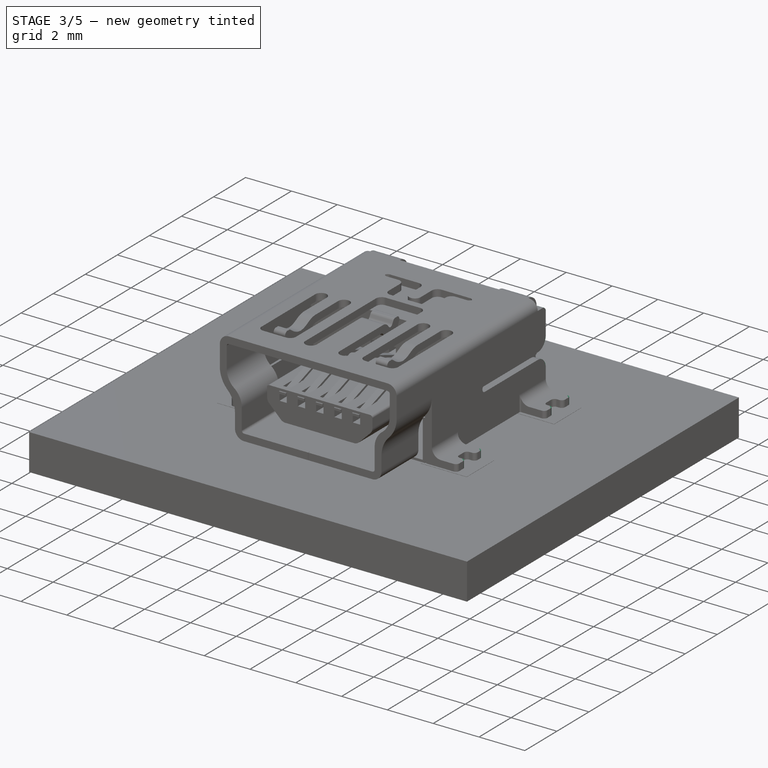
[diagram: stage 3 of 5 — iso view after this stage's code; geometry added in this stage tinted green]
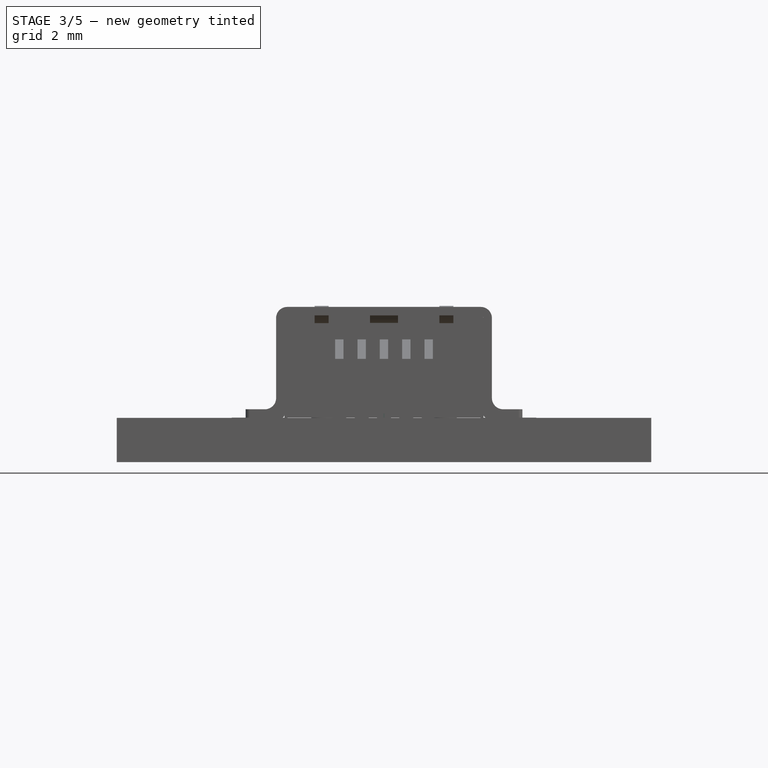
[diagram: stage 3 of 5 — front view after this stage's code; geometry added in this stage tinted green]
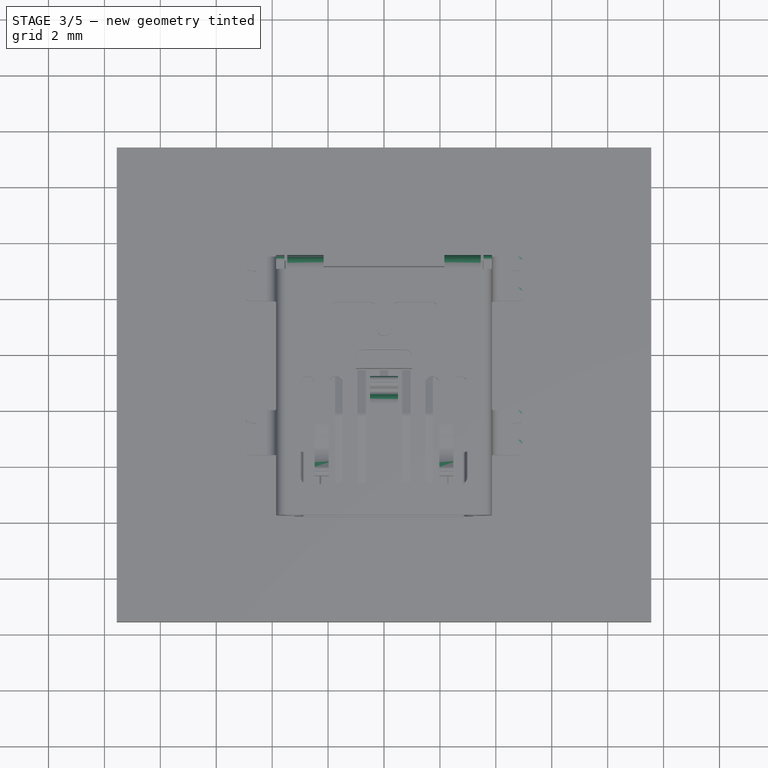
[diagram: stage 3 of 5 — top view after this stage's code; geometry added in this stage tinted green]
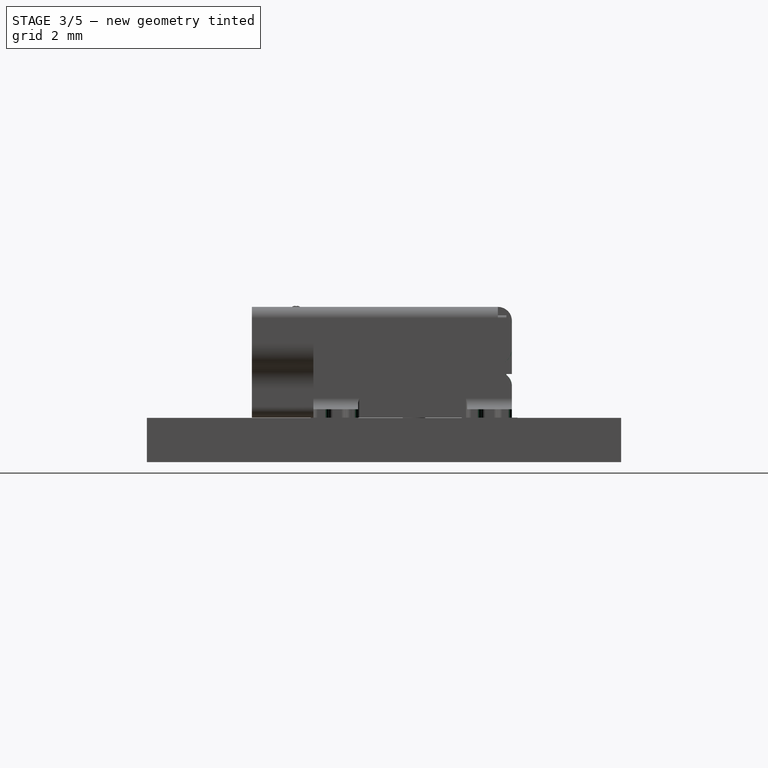
[diagram: stage 3 of 5 — right view after this stage's code; geometry added in this stage tinted green]
FEATURE [Sketcher::SketchObject] Sketch006  label="7.Sketch006"
  MapMode = 5
  Placement = pos=(0,0,3.96) rot=(0,0,1;0rad)
  sketch-geometry (56):
    g0: LineSegment StartX=-0.75 StartY=0.4 StartZ=0 EndX=0.75 EndY=0.4 EndZ=0
    g1: LineSegment StartX=1 StartY=0.65 StartZ=0 EndX=1 EndY=1.35 EndZ=0
    g2: LineSegment StartX=1.25 StartY=1.6 StartZ=0 EndX=1.75 EndY=1.6 EndZ=0
    g3: LineSegment StartX=-1 StartY=0.65 StartZ=0 EndX=-1 EndY=1.35 EndZ=0
    g4: LineSegment StartX=-1.25 StartY=1.6 StartZ=0 EndX=-1.75 EndY=1.6 EndZ=0
    g5: ArcOfCircle CenterX=0.75 CenterY=0.65 CenterZ=0 NormalX=0 NormalY=0 NormalZ=1 AngleXU=0 Radius=0.25 StartAngle=4.71239 EndAngle=6.28319
    g6: ArcOfCircle CenterX=-0.75 CenterY=0.65 CenterZ=0 NormalX=0 NormalY=0 NormalZ=1 AngleXU=0 Radius=0.25 StartAngle=3.14159 EndAngle=4.71239
    g7: ArcOfCircle CenterX=1.25 CenterY=1.35 CenterZ=0 NormalX=0 NormalY=0 NormalZ=1 AngleXU=0 Radius=0.25 StartAngle=1.5708 EndAngle=3.14159
    g8: ArcOfCircle CenterX=-1.25 CenterY=1.35 CenterZ=0 NormalX=0 NormalY=0 NormalZ=1 AngleXU=0 Radius=0.25 StartAngle=0 EndAngle=1.5708
    g9: LineSegment StartX=1.75 StartY=1.9 StartZ=0 EndX=0.5 EndY=1.9 EndZ=0
    g10: LineSegment StartX=0.25 StartY=1.65 StartZ=0 EndX=0.25 EndY=0.95 EndZ=0
    g11: LineSegment StartX=-1.75 StartY=1.9 StartZ=0 EndX=-0.5 EndY=1.9 EndZ=0
    g12: LineSegment StartX=-0.25 StartY=1.65 StartZ=0 EndX=-0.25 EndY=0.95 EndZ=0
    g13: ArcOfCircle CenterX=0 CenterY=0.95 CenterZ=0 NormalX=0 NormalY=0 NormalZ=1 AngleXU=0 Radius=0.25 StartAngle=3.14159 EndAngle=6.28319
    g14: ArcOfCircle CenterX=0.5 CenterY=1.65 CenterZ=0 NormalX=0 NormalY=0 NormalZ=1 AngleXU=0 Radius=0.25 StartAngle=1.5708 EndAngle=3.14159
    g15: ArcOfCircle CenterX=-0.5 CenterY=1.65 CenterZ=0 NormalX=0 NormalY=0 NormalZ=1 AngleXU=0 Radius=0.25 StartAngle=0 EndAngle=1.5708
    g16: ArcOfCircle CenterX=1.75 CenterY=1.75 CenterZ=0 NormalX=0 NormalY=0 NormalZ=1 AngleXU=0 Radius=0.15 StartAngle=4.71239 EndAngle=7.85398
    g17: ArcOfCircle CenterX=-1.75 CenterY=1.75 CenterZ=0 NormalX=0 NormalY=0 NormalZ=1 AngleXU=0 Radius=0.15 StartAngle=1.5708 EndAngle=4.71239
    g18: LineSegment StartX=-0.75 StartY=0.2 StartZ=0 EndX=0.75 EndY=0.2 EndZ=0
    g19: LineSegment StartX=-1 StartY=-0.05 StartZ=0 EndX=-1 EndY=-4.55 EndZ=0
    g20: LineSegment StartX=1 StartY=-0.05 StartZ=0 EndX=1 EndY=-4.55 EndZ=0
    g21: LineSegment StartX=0.5 StartY=-2.05 StartZ=0 EndX=0.5 EndY=-4.55 EndZ=0
    g22: LineSegment StartX=-0.5 StartY=-2.05 StartZ=0 EndX=-0.5 EndY=-4.55 EndZ=0
    g23: ArcOfCircle CenterX=-0.75 CenterY=-0.05 CenterZ=0 NormalX=0 NormalY=0 NormalZ=1 AngleXU=0 Radius=0.25 StartAngle=1.5708 EndAngle=3.14159
    g24: ArcOfCircle CenterX=0.75 CenterY=-0.05 CenterZ=0 NormalX=0 NormalY=0 NormalZ=1 AngleXU=0 Radius=0.25 StartAngle=0 EndAngle=1.5708
    g25: LineSegment StartX=0.5 StartY=-2.05 StartZ=0 EndX=-0.5 EndY=-2.05 EndZ=0
    g26: ArcOfCircle CenterX=-0.75 CenterY=-4.55 CenterZ=0 NormalX=0 NormalY=0 NormalZ=1 AngleXU=0 Radius=0.25 StartAngle=3.14159 EndAngle=6.28319
    g27: ArcOfCircle CenterX=0.75 CenterY=-4.55 CenterZ=0 NormalX=0 NormalY=0 NormalZ=1 AngleXU=0 Radius=0.25 StartAngle=3.14159 EndAngle=6.28319
    g28: LineSegment StartX=1.48 StartY=-1 StartZ=0 EndX=1.48 EndY=-4.45 EndZ=0
    g29: LineSegment StartX=1.73 StartY=-4.7 StartZ=0 EndX=2.73 EndY=-4.7 EndZ=0
    g30: LineSegment StartX=2.98 StartY=-4.45 StartZ=0 EndX=2.98 EndY=-1 EndZ=0
    g31: LineSegment StartX=2.48 StartY=-0.999999 StartZ=0 EndX=2.48 EndY=-2.2 EndZ=0
    g32: LineSegment StartX=1.98 StartY=-2.2 StartZ=0 EndX=1.98 EndY=-0.999999 EndZ=0
    g33: ArcOfCircle CenterX=1.73 CenterY=-4.45 CenterZ=0 NormalX=0 NormalY=0 NormalZ=1 AngleXU=0 Radius=0.25 StartAngle=3.14159 EndAngle=4.71239
    g34: ArcOfCircle CenterX=2.73 CenterY=-4.45 CenterZ=0 NormalX=0 NormalY=0 NormalZ=1 AngleXU=0 Radius=0.25 StartAngle=4.71239 EndAngle=6.28319
    g35: ArcOfCircle CenterX=2.73 CenterY=-1 CenterZ=0 NormalX=0 NormalY=0 NormalZ=1 AngleXU=0 Radius=0.25 StartAngle=6.28319 EndAngle=9.42477
    g36: ArcOfCircle CenterX=1.73 CenterY=-1 CenterZ=0 NormalX=0 NormalY=0 NormalZ=1 AngleXU=0 Radius=0.25 StartAngle=7.71064e-06 EndAngle=3.14159
    g37: LineSegment StartX=2.48 StartY=-2.2 StartZ=0 EndX=1.98 EndY=-2.2 EndZ=0
    g38: LineSegment [constr] StartX=2.23 StartY=0 StartZ=0 EndX=2.23 EndY=-5.7 EndZ=0
    g39: ArcOfCircle [constr] CenterX=2.23 CenterY=-2.2 CenterZ=0 NormalX=0 NormalY=0 NormalZ=1 AngleXU=0 Radius=0.25 StartAngle=3.14159 EndAngle=6.28319
    g40: LineSegment [constr] StartX=2.23 StartY=0 StartZ=0 EndX=1 EndY=0 EndZ=0
    g41: LineSegment [constr] StartX=2.23 StartY=0 StartZ=0 EndX=3.46 EndY=0 EndZ=0
    g42: LineSegment StartX=-2.98 StartY=-1 StartZ=0 EndX=-2.98 EndY=-4.45 EndZ=0
    g43: LineSegment StartX=-2.73 StartY=-4.7 StartZ=0 EndX=-1.73 EndY=-4.7 EndZ=0
    g44: LineSegment StartX=-1.48 StartY=-4.45 StartZ=0 EndX=-1.48 EndY=-1 EndZ=0
    g45: LineSegment StartX=-2.48 StartY=-1 StartZ=0 EndX=-2.48 EndY=-2.2 EndZ=0
    g46: LineSegment StartX=-1.98 StartY=-1 StartZ=0 EndX=-1.98 EndY=-2.2 EndZ=0
    g47: ArcOfCircle CenterX=-2.73 CenterY=-4.45 CenterZ=0 NormalX=0 NormalY=0 NormalZ=1 AngleXU=0 Radius=0.250003 StartAngle=3.14159 EndAngle=4.71239
    g48: ArcOfCircle CenterX=-1.73 CenterY=-4.45 CenterZ=0 NormalX=0 NormalY=0 NormalZ=1 AngleXU=0 Radius=0.25 StartAngle=4.71239 EndAngle=6.28319
    g49: ArcOfCircle CenterX=-1.73 CenterY=-1 CenterZ=0 NormalX=0 NormalY=0 NormalZ=1 AngleXU=0 Radius=0.25 StartAngle=6.28319 EndAngle=9.42478
    g50: ArcOfCircle CenterX=-2.73 CenterY=-1 CenterZ=0 NormalX=0 NormalY=0 NormalZ=1 AngleXU=0 Radius=0.25 StartAngle=6.28319 EndAngle=9.42477
    g51: LineSegment StartX=-2.48 StartY=-2.2 StartZ=0 EndX=-1.98 EndY=-2.2 EndZ=0
    g52: ArcOfCircle [constr] CenterX=-2.23 CenterY=-2.2 CenterZ=0 NormalX=0 NormalY=0 NormalZ=1 AngleXU=0 Radius=0.25 StartAngle=3.14159 EndAngle=6.28319
    g53: LineSegment [constr] StartX=-3.46 StartY=0 StartZ=0 EndX=-2.23 EndY=0 EndZ=0
    g54: LineSegment [constr] StartX=-2.23 StartY=0 StartZ=0 EndX=-1 EndY=0 EndZ=0
    g55: LineSegment [constr] StartX=-2.23 StartY=0 StartZ=0 EndX=-2.23 EndY=-5.7 EndZ=0
  constraints (162):
    c: Horizontal(g2)
    c: Horizontal(g4)
    c: Vertical(g3)
    c: Tangent(g0,g5) = -1.5708
    c: Tangent(g1,g5) = -1.5708
    c: Tangent(g0,g6) = -1.5708
    c: Tangent(g3,g6) = 1.5708
    c: Tangent(g2,g7) = 1.5708
    c: Tangent(g3,g8) = -1.5708
    c: Tangent(g4,g8) = -1.5708
    c: Equal(g8,g6)
    c: Equal(g6,g5)
    c: Equal(g5,g7)
    c: Horizontal(g9)
    c: Vertical(g10)
    c: Horizontal(g11)
    c: Vertical(g12)
    c: Equal(g11,g9)
    c: Equal(g12,g10)
    c: PointOnObject(g13,g-2)
    c: Coincident(g13,g10)
    c: Coincident(g13,g12)
    c: Tangent(g13,g10)
    c: Symmetric(g0,g0,g-2)
    c: Tangent(g9,g14) = -1.5708
    c: Tangent(g10,g14) = -1.5708
    c: Tangent(g12,g15) = 1.5708
    c: Tangent(g11,g15) = 1.5708
    c: Equal(g15,g14)
    c: Equal(g14,g8)
    c: Coincident(g16,g2)
    c: Coincident(g16,g9)
    c: Coincident(g17,g4)
    c: Coincident(g17,g11)
    c: Equal(g17,g16)
    c: Tangent(g16,g2)
    c: Tangent(g16,g9)
    c: Equal(g13,g7)
    c: Tangent(g12,g13)
    c: DistanceX(g12,g10) = 0.5
    c: Tangent(g11,g17)
    c: DistanceY(g0,g11) = 1.5
    c: DistanceY(g2,g9) = 0.3
    c: Vertical(g1)
    c: Coincident(g1,g7)
    c: Tangent(g7,g1)
    c: DistanceX(g3,g1) = 2
    c: DistanceX(g11,g9) = 3.5
    c: DistanceY(g0,g10) = 0.55
    c: DistanceY(g10,g10) = 0.7
    c: Horizontal(g18)
    c: Vertical(g19)
    c: Vertical(g20)
    c: Equal(g19,g20)
    c: Vertical(g21)
    c: Vertical(g22)
    c: Equal(g22,g21)
    c: Tangent(g18,g23) = 1.5708
    c: Tangent(g19,g23) = -1.5708
    c: Tangent(g18,g24) = 1.5708
    c: Tangent(g20,g24) = 1.5708
    c: Coincident(g25,g21)
    c: Coincident(g25,g22)
    c: Horizontal(g25)
    c: Symmetric(g22,g21,g-2)
    c: Coincident(g26,g19)
    c: Coincident(g26,g22)
    c: Coincident(g27,g21)
    c: Coincident(g27,g20)
    c: Tangent(g26,g22)
    c: Tangent(g27,g21)
    c: DistanceY(g18,g0) = 0.2
    c: DistanceY(g21,g21) = 2.5
    c: Equal(g0,g18)
    c: Equal(g27,g26)
    c: Equal(g26,g24)
    c: Equal(g24,g23)
    c: Equal(g23,g5)
    c: Vertical(g28)
    c: Horizontal(g29)
    c: Vertical(g30)
    c: Equal(g28,g30)
    c: Vertical(g31)
    c: Vertical(g32)
    c: Equal(g32,g31)
    c: Tangent(g29,g33) = -1.5708
    c: Tangent(g28,g33) = -1.5708
    c: Tangent(g29,g34) = -1.5708
    c: Tangent(g30,g34) = -1.5708
    c: Coincident(g35,g30)
    c: Coincident(g35,g31)
    c: Coincident(g36,g32)
    c: Coincident(g36,g28)
    c: Coincident(g37,g32)
    c: Horizontal(g37)
    c: Coincident(g37,g31)
    c: PointOnObject(g38,g-1)
    c: Vertical(g38)
    c: Symmetric(g32,g31,g38)
    c: Equal(g36,g35)
    c: Equal(g35,g33)
    c: Equal(g33,g34)
    c: Equal(g34,g24)
    c: Tangent(g31,g35)
    c: PointOnObject(g39,g37)
    c: Coincident(g39,g32)
    c: Coincident(g39,g31)
    c: Equal(g39,g34)
    c: Tangent(g28,g36)
    c: PointOnObject(g40,g38)
    c: PointOnObject(g40,g20)
    c: Horizontal(g40)
    c: Coincident(g41,g40)
    c: Horizontal(g41)
    c: Equal(g41,g40)
    c: PointOnObject(g41,g-1)
    c: DistanceY(g32,g32) = 1.2
    c: Tangent(g30,g35)
    c: Vertical(g42)
    c: Horizontal(g43)
    c: Vertical(g44)
    c: Vertical(g45)
    c: Vertical(g46)
    c: Equal(g42,g44)
    c: Tangent(g43,g47) = -1.5708
    c: Tangent(g42,g47) = -1.5708
    c: Tangent(g43,g48) = -1.5708
    c: Tangent(g44,g48) = -1.5708
    c: Equal(g46,g45)
    c: Coincident(g49,g44)
    c: Coincident(g49,g46)
    c: Coincident(g50,g45)
    c: Coincident(g50,g42)
    c: Equal(g49,g50)
    c: Equal(g50,g23)
    c: Tangent(g42,g50)
    c: Tangent(g44,g49)
    c: Coincident(g51,g45)
    c: Coincident(g51,g46)
    c: Horizontal(g51)
    c: Tangent(g46,g49)
    c: Tangent(g45,g50)
    c: PointOnObject(g52,g51)
    c: Coincident(g52,g45)
    c: Coincident(g52,g46)
    c: Equal(g52,g50)
    c: Equal(g48,g52)
    c: Tangent(g52,g45)
    c: Tangent(g52,g46)
    c: Horizontal(g53)
    c: Coincident(g54,g53)
    c: PointOnObject(g54,g19)
    c: Horizontal(g54)
    c: Equal(g53,g54)
    c: PointOnObject(g53,g-1)
    c: Coincident(g55,g53)
    c: Vertical(g55)
    c: PointOnObject(g52,g55)
    c: Equal(g32,g46)
    c: DistanceY(g42,g53) = 1
    c: DistanceY(g28,g53) = 1
    c: DistanceY(g19,g19) = 4.5
FEATURE [Sketcher::SketchObject] Sketch007  label="8.Sketch007"
  MapMode = 5
  Placement = pos=(0.5,0,0) rot=(0.57735,0.57735,0.57735;2.0944rad)
  sketch-geometry (18):
    g0: LineSegment StartX=-2.05 StartY=3.96 StartZ=0 EndX=-1.85 EndY=3.96 EndZ=0
    g1: LineSegment StartX=-2.05 StartY=3.66 StartZ=0 EndX=-1.85 EndY=3.66 EndZ=0
    g2: ArcOfCircle CenterX=-1.85 CenterY=3.56 CenterZ=0 NormalX=0 NormalY=0 NormalZ=1 AngleXU=0 Radius=0.4 StartAngle=0.734424 EndAngle=1.5708
    g3: LineSegment StartX=-2.05 StartY=3.66 StartZ=0 EndX=-2.05 EndY=3.96 EndZ=0
    g4: LineSegment StartX=-1.55311 StartY=3.82806 StartZ=0 EndX=-1.48609 EndY=3.75384 EndZ=0
    g5: ArcOfCircle CenterX=-1.33765 CenterY=3.88787 CenterZ=0 NormalX=0 NormalY=0 NormalZ=1 AngleXU=0 Radius=0.2 StartAngle=3.87602 EndAngle=5.78928
    g6: LineSegment StartX=-1.16155 StartY=3.79306 StartZ=0 EndX=-1.11415 EndY=3.88111 EndZ=0
    g7: ArcOfCircle CenterX=-0.982073 CenterY=3.81 CenterZ=0 NormalX=0 NormalY=0 NormalZ=1 AngleXU=0 Radius=0.15 StartAngle=5.78928 EndAngle=8.93087
    g8: ArcOfCircle CenterX=-1.85 CenterY=3.56 CenterZ=0 NormalX=0 NormalY=0 NormalZ=1 AngleXU=0 Radius=0.1 StartAngle=0.734424 EndAngle=1.5708
    g9: ArcOfCircle CenterX=-1.33765 CenterY=3.88787 CenterZ=0 NormalX=0 NormalY=0 NormalZ=1 AngleXU=0 Radius=0.5 StartAngle=3.87602 EndAngle=5.78928
    g10: LineSegment StartX=-1.77578 StartY=3.62702 StartZ=0 EndX=-1.70876 EndY=3.55279 EndZ=0
    g11: LineSegment StartX=-0.897407 StartY=3.65084 StartZ=0 EndX=-0.85 EndY=3.73889 EndZ=0
    g12: LineSegment [constr] StartX=-1.85 StartY=3.66 StartZ=0 EndX=-1.85 EndY=3.96 EndZ=0
    g13: LineSegment [constr] StartX=-0.85 StartY=3.73889 StartZ=0 EndX=-1.11415 EndY=3.88111 EndZ=0
    g14: LineSegment [constr] StartX=-1.85 StartY=3.96 StartZ=0 EndX=-0.982073 EndY=3.96 EndZ=0
    g15: LineSegment [constr] StartX=-0.897407 StartY=3.65084 StartZ=0 EndX=-1.16155 EndY=3.79306 EndZ=0
    g16: LineSegment [constr] StartX=-1.55311 StartY=3.82806 StartZ=0 EndX=-1.77578 EndY=3.62702 EndZ=0
    g17: LineSegment [constr] StartX=-1.70876 StartY=3.55279 StartZ=0 EndX=-1.48609 EndY=3.75384 EndZ=0
  constraints (54):
    c: Horizontal(g0)
    c: Horizontal(g1)
    c: Coincident(g2,g0)
    c: Coincident(g3,g1)
    c: Coincident(g3,g0)
    c: Coincident(g4,g2)
    c: Tangent(g2,g4)
    c: Coincident(g5,g4)
    c: Tangent(g4,g5)
    c: Coincident(g7,g6)
    c: Coincident(g5,g6)
    c: Tangent(g5,g6)
    c: Tangent(g7,g6)
    c: DistanceX(g0,g7) = 1.2
    c: Equal(g4,g6)
    c: Coincident(g8,g1)
    c: Coincident(g10,g8)
    c: Coincident(g10,g9)
    c: Coincident(g11,g9)
    c: Tangent(g8,g1)
    c: Tangent(g10,g8)
    c: Tangent(g9,g10)
    c: Tangent(g11,g9)
    c: Tangent(g0,g2)
    c: Coincident(g11,g7)
    c: Tangent(g7,g11)
    c: Coincident(g12,g1)
    c: Coincident(g12,g0)
    c: Coincident(g13,g7)
    c: Coincident(g13,g6)
    c: Equal(g13,g12)
    c: Coincident(g14,g0)
    c: Horizontal(g14)
    c: PointOnObject(g14,g7)
    c: Tangent(g7,g14)
    c: Coincident(g15,g9)
    c: Coincident(g15,g5)
    c: Equal(g13,g15)
    c: Coincident(g16,g2)
    c: Coincident(g16,g8)
    c: Coincident(g17,g9)
    c: Coincident(g17,g4)
    c: Parallel(g15,g13)
    c: Perpendicular(g17,g4)
    c: Perpendicular(g16,g4)
    c: Equal(g10,g11)
    c: DistanceY(g-1,g0) = 3.96
    c: DistanceX(g0,g-1) = 2.05
    c: Vertical(g3)
    c: DistanceY(g3,g3) = 0.3
    c: Radius(g8) = 0.1
    c: DistanceX(g0,g0) = 0.2
    c: Distance(g4) = 0.1
    c: Radius(g5) = 0.2
FEATURE [PartDesign::Pad] Pad002  label="8.Pad002"
  Length = 1
  Length2 = 100
  Placement = pos=(0.5,0,0) rot=(0.57735,0.57735,0.57735;2.0944rad)
  Profile = -> Sketch007
  Refine = true
  Reversed = true
  Type = 0
FEATURE [Sketcher::SketchObject] Sketch008
  MapMode = 5
  Placement = pos=(-2.48,0,0) rot=(0.57735,-0.57735,-0.57735;2.0944rad)
  sketch-geometry (17):
    g0: LineSegment StartX=2.2 StartY=3.96 StartZ=0 EndX=2.4 EndY=3.96 EndZ=0
    g1: LineSegment [constr] StartX=2.4 StartY=3.96 StartZ=0 EndX=2.4 EndY=3.66 EndZ=0
    g2: LineSegment StartX=2.4 StartY=3.66 StartZ=0 EndX=2.2 EndY=3.66 EndZ=0
    g3: LineSegment StartX=2.2 StartY=3.66 StartZ=0 EndX=2.2 EndY=3.96 EndZ=0
    g4: ArcOfCircle CenterX=2.4 CenterY=3.04703 CenterZ=0 NormalX=0 NormalY=0 NormalZ=1 AngleXU=0 Radius=0.61297 StartAngle=1.11146 EndAngle=1.5708
    g5: ArcOfCircle CenterX=2.4 CenterY=3.04704 CenterZ=0 NormalX=0 NormalY=0 NormalZ=1 AngleXU=0 Radius=0.912962 StartAngle=1.11146 EndAngle=1.5708
    g6: LineSegment StartX=2.67176 StartY=3.59646 StartZ=0 EndX=2.85103 EndY=3.50779 EndZ=0
    g7: LineSegment StartX=2.80477 StartY=3.86537 StartZ=0 EndX=2.98404 EndY=3.7767 EndZ=0
    g8: LineSegment [constr] StartX=2.67176 StartY=3.59646 StartZ=0 EndX=2.80477 EndY=3.86537 EndZ=0
    g9: LineSegment [constr] StartX=2.85103 StartY=3.50779 StartZ=0 EndX=2.98404 EndY=3.7767 EndZ=0
    g10: ArcOfCircle CenterX=3.3888 CenterY=4.59503 CenterZ=0 NormalX=0 NormalY=0 NormalZ=1 AngleXU=0 Radius=0.912962 StartAngle=4.25305 EndAngle=5.33303
    g11: ArcOfCircle CenterX=3.3888 CenterY=4.59503 CenterZ=0 NormalX=0 NormalY=0 NormalZ=1 AngleXU=0 Radius=1.21296 StartAngle=4.25305 EndAngle=5.33303
    g12: LineSegment StartX=3.91974 StartY=3.85232 StartZ=0 EndX=4.08244 EndY=3.96864 EndZ=0
    g13: LineSegment StartX=4.09421 StartY=3.60827 StartZ=0 EndX=4.25691 EndY=3.72458 EndZ=0
    g14: LineSegment [constr] StartX=4.25691 StartY=3.72458 StartZ=0 EndX=4.08244 EndY=3.96864 EndZ=0
    g15: LineSegment [constr] StartX=3.91974 StartY=3.85232 StartZ=0 EndX=4.09421 EndY=3.60827 EndZ=0
    g16: ArcOfCircle CenterX=4.16967 CenterY=3.84661 CenterZ=0 NormalX=0 NormalY=0 NormalZ=1 AngleXU=0 Radius=0.15 StartAngle=5.33303 EndAngle=8.47462
  constraints (48):
    c: Coincident(g0,g3)
    c: Coincident(g2,g3)
    c: Coincident(g0,g1)
    c: Coincident(g0,g5)
    c: Coincident(g1,g2)
    c: Coincident(g1,g4)
    c: Coincident(g4,g6)
    c: Coincident(g4,g8)
    c: Coincident(g5,g7)
    c: Coincident(g5,g8)
    c: Coincident(g7,g9)
    c: Coincident(g7,g10)
    c: Coincident(g6,g9)
    c: Coincident(g6,g11)
    c: Coincident(g10,g12)
    c: Coincident(g10,g15)
    c: Coincident(g11,g13)
    c: Coincident(g11,g15)
    c: Coincident(g13,g14)
    c: Coincident(g13,g16)
    c: Coincident(g12,g14)
    c: Coincident(g12,g16)
    c: Horizontal(g0)
    c: Horizontal(g2)
    c: Vertical(g1)
    c: Perpendicular(g12,g15)
    c: Equal(g14,g15)
    c: Equal(g15,g9)
    c: Equal(g9,g8)
    c: Equal(g8,g1)
    c: Perpendicular(g7,g9)
    c: Tangent(g6,g4)
    c: Tangent(g12,g10)
    c: Perpendicular(g8,g7)
    c: Tangent(g10,g7)
    c: Tangent(g7,g5)
    c: Equal(g12,g7)
    c: Equal(g5,g10)
    c: Tangent(g11,g13)
    c: DistanceX(g2,g2) = 0.2
    c: Tangent(g4,g2)
    c: Equal(g2,g6)
    c: Tangent(g16,g13)
    c: Tangent(g12,g16)
    c: DistanceY(g-1,g0) = 3.96
    c: DistanceX(g-1,g0) = 2.2
    c: Vertical(g3)
    c: DistanceY(g3,g3) = 0.3
FEATURE [Part::Extrusion] Extrude_Sketch008001  label="8.Sketch008_Extrude001"
  Base = -> Sketch008
  Dir = (0.5,0,0)
  DirMode = 0
  FaceMakerClass = Part::FaceMakerExtrusion
  LengthFwd = 0
  LengthRev = 0
  Solid = true
  Symmetric = false
FEATURE [Part::FeaturePython] Clone  label="8.1Clone of 8.Sketch008_Extrude001"  # Draft clone (typed FeaturePython)
  Objects = -> [Extrude_Sketch008001]
  Placement = pos=(4.46,0,0) rot=(0,0,1;0rad)
  Scale = (1,1,1)
FEATURE [Part::MultiFuse] Fusion001  label="6.Fusion001"
  Refine = true
  Shapes = -> [Part__Mirroring,Pocket001]
FEATURE [Part::Cut] Cut  label="7.Cut"
  Base = -> Fusion001
  Refine = true
  Tool = -> Pad003
FEATURE [Part::Extrusion] Extrude_Sketch003  label="13.Sketch003_Extrude"
  Base = -> Sketch003
  Dir = (-6.92,0,0)
  DirMode = 0
  FaceMakerClass = Part::FaceMakerExtrusion
  LengthFwd = 0
  LengthRev = 0
  Solid = true
  Symmetric = false
FEATURE [App::DocumentObjectGroup] Grupo002  label="relleno_0.1mm"
  Group = -> [Extrude_Sketch012,Fusion006,Pad005,Fusion007,Pad006,Pocket003003,Pad007,Fillet002005002,Pocket003006,Pocket003007,Pocket003008,Fillet002005003]
FEATURE [Part::Feature] Pocket003007001  label="Relleno_0,1mm"
  shape: bbox 7.7 x 8.435 x 4.86 mm, 142 faces (baked)
FEATURE [Part::MultiFuse] Fusion009003  label="9.Fusion009003"
  Refine = true
  Shapes = -> [Cut,Extrude_Sketch008001,Clone,Pad002]
FEATURE [Sketcher::SketchObject] Sketch032
  MapMode = 5
  Placement = pos=(0,0,0) rot=(1,0,0;3.14159rad)
  sketch-geometry (8):
    g0: LineSegment StartX=-1.7 StartY=3.6 StartZ=0 EndX=1.7 EndY=3.6 EndZ=0
    g1: LineSegment StartX=-1.5 StartY=3.4 StartZ=0 EndX=-1.5 EndY=1.8 EndZ=0
    g2: LineSegment StartX=1.5 StartY=3.4 StartZ=0 EndX=1.5 EndY=1.8 EndZ=0
    g3: LineSegment StartX=-1.3 StartY=1.6 StartZ=0 EndX=1.3 EndY=1.6 EndZ=0
    g4: ArcOfCircle CenterX=-1.3 CenterY=1.8 CenterZ=0 NormalX=0 NormalY=0 NormalZ=1 AngleXU=0 Radius=0.2 StartAngle=3.14159 EndAngle=4.71239
    g5: ArcOfCircle CenterX=1.3 CenterY=1.8 CenterZ=0 NormalX=0 NormalY=0 NormalZ=1 AngleXU=0 Radius=0.2 StartAngle=4.71239 EndAngle=6.28319
    g6: ArcOfCircle CenterX=1.7 CenterY=3.4 CenterZ=0 NormalX=0 NormalY=0 NormalZ=1 AngleXU=0 Radius=0.199999 StartAngle=1.57079 EndAngle=3.14159
    g7: ArcOfCircle CenterX=-1.7 CenterY=3.4 CenterZ=0 NormalX=0 NormalY=0 NormalZ=1 AngleXU=0 Radius=0.199999 StartAngle=6.28318 EndAngle=7.85399
  constraints (28):
    c: Horizontal(g0)
    c: Symmetric(g0,g0,g-2)
    c: DistanceX(g0,g0) = 3.4
    c: Vertical(g1)
    c: Vertical(g2)
    c: Equal(g2,g1)
    c: Horizontal(g3)
    c: Coincident(g4,g1)
    c: Coincident(g4,g3)
    c: Coincident(g5,g3)
    c: Coincident(g5,g2)
    c: Equal(g4,g5)
    c: Tangent(g4,g1)
    c: Tangent(g5,g3)
    c: Tangent(g5,g2)
    c: Tangent(g4,g3)
    c: DistanceY(g3,g0) = 2
    c: DistanceY(g-1,g0) = 3.6
    c: Radius(g4) = 0.2
    c: Symmetric(g1,g2,g-2)
    c: Coincident(g6,g2)
    c: Coincident(g6,g0)
    c: Coincident(g7,g1)
    c: Coincident(g7,g0)
    c: Tangent(g7,g1)
    c: Tangent(g2,g6)
    c: Tangent(g6,g0)
    c: DistanceX(g1,g2) = 3
FEATURE [Sketcher::SketchObject] Sketch033  label="10.Sketch033"
  MapMode = 5
  Placement = pos=(0,0,3.96) rot=(0,0,1;0rad)
  Support = -> [Fusion009003]
  sketch-geometry (4):
    g0: LineSegment StartX=-3.86 StartY=3.5 StartZ=0 EndX=3.86 EndY=3.5 EndZ=0
    g1: LineSegment StartX=3.86 StartY=3.5 StartZ=0 EndX=3.86 EndY=3 EndZ=0
    g2: LineSegment StartX=3.86 StartY=3 StartZ=0 EndX=-3.86 EndY=3 EndZ=0
    g3: LineSegment StartX=-3.86 StartY=3 StartZ=0 EndX=-3.86 EndY=3.5 EndZ=0
  constraints (12):
    c: Coincident(g0,g1)
    c: Coincident(g1,g2)
    c: Coincident(g2,g3)
    c: Coincident(g3,g0)
    c: Horizontal(g0)
    c: Horizontal(g2)
    c: Vertical(g1)
    c: Vertical(g3)
    c: DistanceY(g1,g1) = 0.5
    c: DistanceX(g0,g0) = 7.72
    c: Symmetric(g2,g1,g-2)
    c: DistanceY(g-1,g0) = 3.5
FEATURE [Part::Extrusion] Extrude_Sketch033  label="10.Sketch033_Extrude"
  Base = -> Sketch033
  Dir = (0,0,-0.4)
  DirMode = 0
  FaceMakerClass = Part::FaceMakerExtrusion
  LengthFwd = 0
  LengthRev = 0
  Solid = true
  Symmetric = false
FEATURE [Part::Cut] Cut001  label="11.Cut001"
  Base = -> Fusion009003
  Refine = true
  Tool = -> Extrude_Sketch033
FEATURE [Part::MultiFuse] Fusion009004  label="14.Fusion009004"
  Refine = true
  Shapes = -> [Cut001,Extrude_Sketch032,Extrude_Sketch003]
FEATURE [Sketcher::SketchObject] Sketch034
  MapMode = 5
  Placement = pos=(0,0,3.96) rot=(0,0,1;0rad)
  Support = -> [Fusion009004]
  sketch-geometry (4):
    g0: LineSegment StartX=-2.16 StartY=3.5 StartZ=0 EndX=2.16 EndY=3.5 EndZ=0
    g1: LineSegment StartX=2.16 StartY=3.5 StartZ=0 EndX=2.16 EndY=3 EndZ=0
    g2: LineSegment StartX=2.16 StartY=3 StartZ=0 EndX=-2.16 EndY=3 EndZ=0
    g3: LineSegment StartX=-2.16 StartY=3 StartZ=0 EndX=-2.16 EndY=3.5 EndZ=0
  constraints (12):
    c: Coincident(g0,g1)
    c: Coincident(g1,g2)
    c: Coincident(g2,g3)
    c: Coincident(g3,g0)
    c: Horizontal(g0)
    c: Horizontal(g2)
    c: Vertical(g1)
    c: Vertical(g3)
    c: Symmetric(g1,g2,g-2)
    c: DistanceY(g1,g1) = 0.5
    c: DistanceX(g0,g0) = 4.32
    c: DistanceY(g-1,g0) = 3.5
FEATURE [Part::Extrusion] Extrude_Sketch034  label="15.Sketch034_Extrude"
  Base = -> Sketch034
  Dir = (0,0,-0.5)
  DirMode = 0
  FaceMakerClass = Part::FaceMakerExtrusion
  LengthFwd = 0
  LengthRev = 0
  Solid = true
  Symmetric = false
FEATURE [Part::Cut] Cut002  label="16.Cut002"
  Base = -> Fusion009004
  Refine = true
  Tool = -> Extrude_Sketch034
FEATURE [Part::Fillet] Fillet002005004  label="17.Fillet002005004"
  Base = -> Cut002
  Edges = 4 edges r=0.5: [Edge373,Edge374,Edge416,Edge472]
FEATURE [Part::Fillet] Fillet002005005  label="18.Fillet002005005"
  Base = -> Fillet002005004
  Edges = 2 edges r=0.2: [Edge20,Edge457]
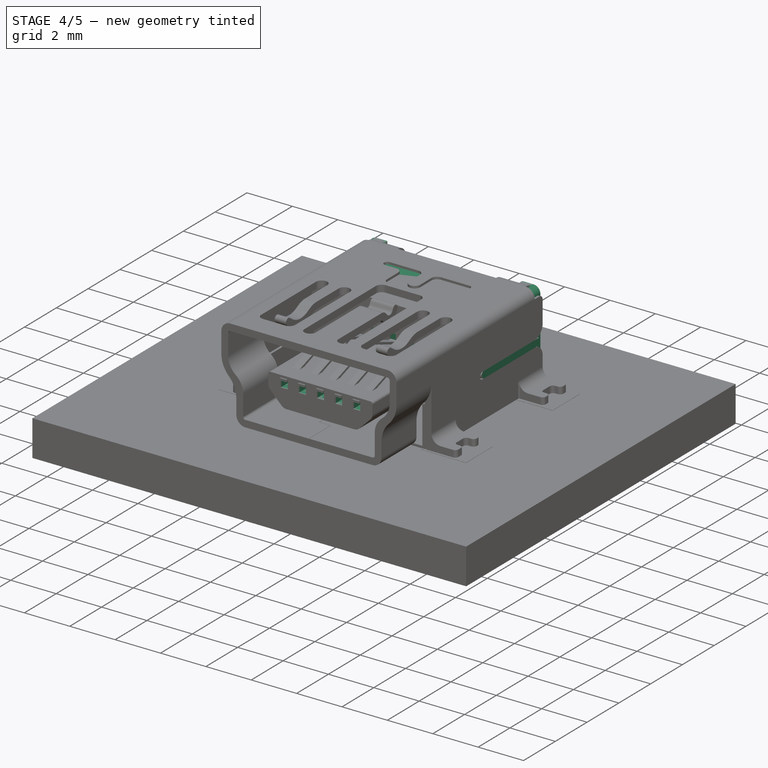
[diagram: stage 4 of 5 — iso view after this stage's code; geometry added in this stage tinted green]
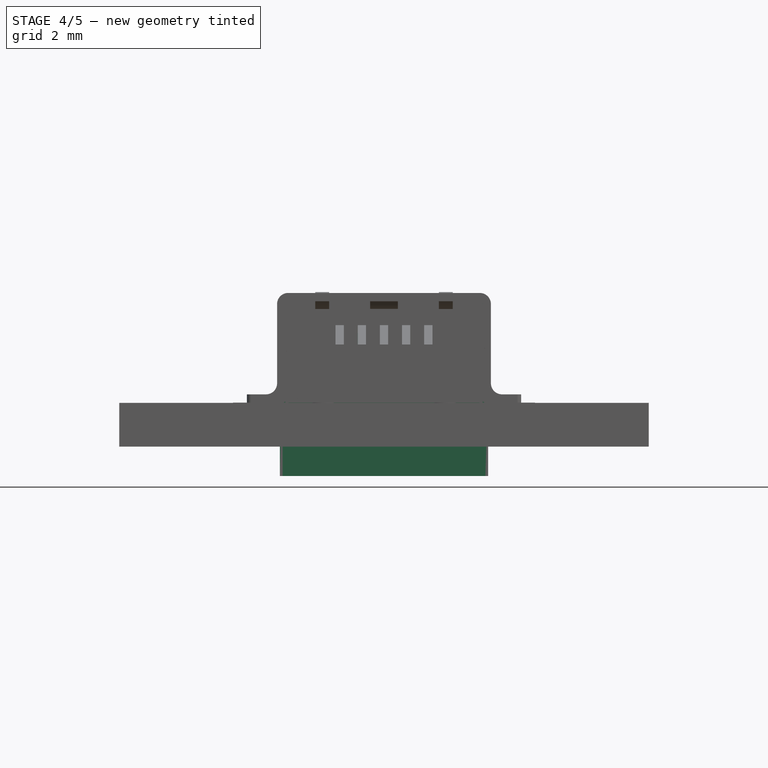
[diagram: stage 4 of 5 — front view after this stage's code; geometry added in this stage tinted green]
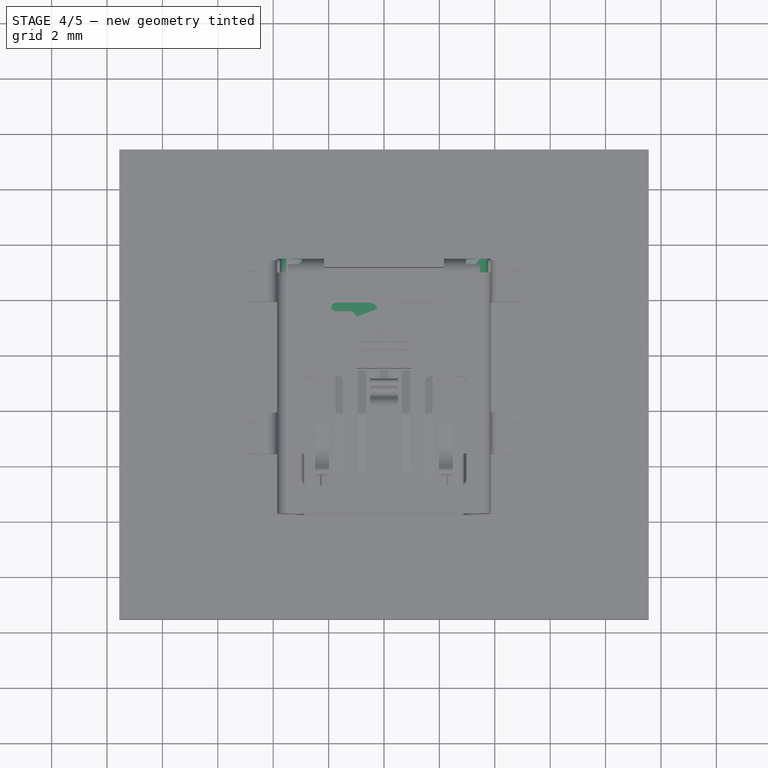
[diagram: stage 4 of 5 — top view after this stage's code; geometry added in this stage tinted green]
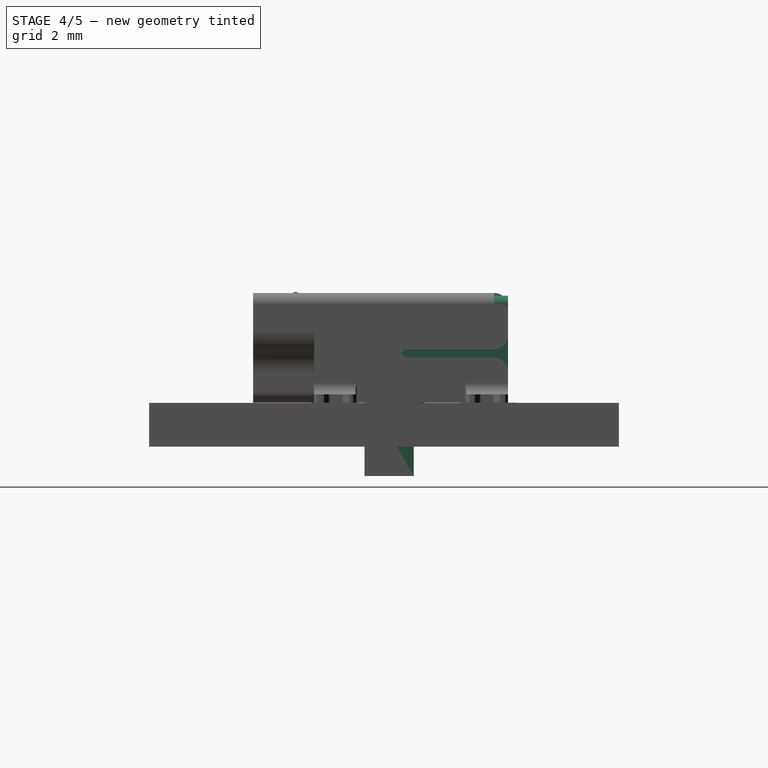
[diagram: stage 4 of 5 — right view after this stage's code; geometry added in this stage tinted green]
FEATURE [Sketcher::SketchObject] Sketch012  label="1.Sketch012"
  MapMode = 5
  Placement = pos=(0,0.4,0) rot=(0,0.707107,0.707107;3.14159rad)
  sketch-geometry (6):
    g0: LineSegment StartX=3.5595 StartY=0 StartZ=0 EndX=-3.5595 EndY=0 EndZ=0
    g1: LineSegment StartX=-3.5595 StartY=0 StartZ=0 EndX=-3.5595 EndY=3.56 EndZ=0
    g2: LineSegment StartX=-3.4595 StartY=3.66 StartZ=0 EndX=3.4595 EndY=3.66 EndZ=0
    g3: LineSegment StartX=3.5595 StartY=3.56 StartZ=0 EndX=3.5595 EndY=0 EndZ=0
    g4: ArcOfCircle CenterX=-3.4595 CenterY=3.56 CenterZ=0 NormalX=0 NormalY=0 NormalZ=1 AngleXU=0 Radius=0.1 StartAngle=1.5708 EndAngle=3.14159
    g5: ArcOfCircle CenterX=3.4595 CenterY=3.56 CenterZ=0 NormalX=0 NormalY=0 NormalZ=1 AngleXU=0 Radius=0.1 StartAngle=0 EndAngle=1.5708
  constraints (16):
    c: Coincident(g0,g1)
    c: Coincident(g3,g0)
    c: Horizontal(g0)
    c: Horizontal(g2)
    c: Vertical(g1)
    c: Vertical(g3)
    c: PointOnObject(g0,g-1)
    c: Tangent(g1,g4) = 1.5708
    c: Tangent(g2,g4) = 1.5708
    c: Tangent(g3,g5) = 1.5708
    c: Tangent(g2,g5) = 1.5708
    c: DistanceX(g0,g0) = 7.119
    c: DistanceY(g-1,g2) = 3.66
    c: Symmetric(g0,g0,g-2)
    c: Equal(g4,g5)
    c: Radius(g4) = 0.1
FEATURE [Part::Extrusion] Extrude_Sketch012  label="1.Sketch012_Extrude"
  Base = -> Sketch012
  Dir = (0,2.35,0)
  DirMode = 0
  FaceMakerClass = Part::FaceMakerExtrusion
  LengthFwd = 0
  LengthRev = 0
  Solid = true
  Symmetric = false
FEATURE [Sketcher::SketchObject] Sketch017
  ExternalGeometry = -> [Extrude_Sketch012]
  MapMode = 5
  Placement = pos=(0,2.75,0) rot=(0,0.707107,0.707107;3.14159rad)
  Support = -> [Extrude_Sketch012]
  sketch-geometry (18):
    g0: LineSegment StartX=-3.5595 StartY=3.56 StartZ=0 EndX=-3.5595 EndY=0 EndZ=0
    g1: LineSegment StartX=-3.5595 StartY=0 StartZ=0 EndX=-2.7595 EndY=0 EndZ=0
    g2: LineSegment StartX=-2.7595 StartY=0 StartZ=0 EndX=-2.7595 EndY=0.4 EndZ=0
    g3: LineSegment StartX=-2.7595 StartY=0.4 StartZ=0 EndX=-2.3595 EndY=0.4 EndZ=0
    g4: LineSegment StartX=-2.3595 StartY=0.4 StartZ=0 EndX=-2.3595 EndY=0.8 EndZ=0
    g5: LineSegment StartX=-2.3595 StartY=0.8 StartZ=0 EndX=-2.7595 EndY=0.8 EndZ=0
    g6: LineSegment StartX=-2.7595 StartY=0.8 StartZ=0 EndX=-2.7595 EndY=3.66 EndZ=0
    g7: LineSegment StartX=-2.7595 StartY=3.66 StartZ=0 EndX=-3.4595 EndY=3.66 EndZ=0
    g8: ArcOfCircle CenterX=-3.4595 CenterY=3.56 CenterZ=0 NormalX=0 NormalY=0 NormalZ=1 AngleXU=0 Radius=0.1 StartAngle=1.5708 EndAngle=3.14159
    g9: LineSegment StartX=3.5595 StartY=0 StartZ=0 EndX=3.5595 EndY=3.56 EndZ=0
    g10: LineSegment StartX=3.5595 StartY=0 StartZ=0 EndX=2.7595 EndY=0 EndZ=0
    g11: LineSegment StartX=2.7595 StartY=0 StartZ=0 EndX=2.7595 EndY=0.4 EndZ=0
    g12: LineSegment StartX=2.7595 StartY=0.4 StartZ=0 EndX=2.3595 EndY=0.4 EndZ=0
    g13: LineSegment StartX=2.3595 StartY=0.4 StartZ=0 EndX=2.3595 EndY=0.8 EndZ=0
    g14: LineSegment StartX=2.3595 StartY=0.8 StartZ=0 EndX=2.7595 EndY=0.8 EndZ=0
    g15: LineSegment StartX=2.7595 StartY=0.8 StartZ=0 EndX=2.7595 EndY=3.66 EndZ=0
    g16: LineSegment StartX=2.7595 StartY=3.66 StartZ=0 EndX=3.4595 EndY=3.66 EndZ=0
    g17: ArcOfCircle CenterX=3.4595 CenterY=3.56 CenterZ=0 NormalX=0 NormalY=0 NormalZ=1 AngleXU=0 Radius=0.1 StartAngle=6.28318 EndAngle=7.85398
  constraints (50):
    c: Coincident(g0,g-6)
    c: Coincident(g0,g-6)
    c: Coincident(g1,g0)
    c: PointOnObject(g1,g-1)
    c: Coincident(g1,g2)
    c: Vertical(g2)
    c: Coincident(g2,g3)
    c: Horizontal(g3)
    c: Coincident(g3,g4)
    c: Vertical(g4)
    c: Coincident(g4,g5)
    c: Horizontal(g5)
    c: Coincident(g5,g6)
    c: Vertical(g6)
    c: Coincident(g6,g7)
    c: Coincident(g7,g-3)
    c: Horizontal(g7)
    c: Coincident(g8,g-3)
    c: Coincident(g8,g0)
    c: Coincident(g8,g7)
    c: Equal(g5,g3)
    c: DistanceX(g0,g6) = 0.8
    c: DistanceY(g2,g2) = 0.4
    c: Equal(g2,g3)
    c: Equal(g3,g4)
    c: Coincident(g9,g-5)
    c: Coincident(g9,g-5)
    c: Coincident(g9,g10)
    c: Horizontal(g10)
    c: Coincident(g10,g11)
    c: Vertical(g11)
    c: Coincident(g11,g12)
    c: Horizontal(g12)
    c: Coincident(g12,g13)
    c: Vertical(g13)
    c: Coincident(g13,g14)
    c: Coincident(g14,g15)
    c: Vertical(g15)
    c: Coincident(g15,g16)
    c: Coincident(g16,g-4)
    c: Horizontal(g16)
    c: Horizontal(g14)
    c: Coincident(g17,g9)
    c: Coincident(g17,g16)
    c: Tangent(g17,g16)
    c: Equal(g10,g1)
    c: Equal(g11,g12)
    c: Equal(g12,g13)
    c: Equal(g13,g4)
    c: Equal(g16,g7)
FEATURE [PartDesign::Pad] Pad004  label="2.1.Pad004"
  Length = 0.65
  Length2 = 100
  Profile = -> Sketch017
  Refine = true
  Type = 0
FEATURE [Sketcher::SketchObject] Sketch018
  MapMode = 5
  Placement = pos=(3.76,0,0) rot=(-0.57735,0.57735,0.57735;4.18879rad)
  sketch-geometry (6):
    g0: LineSegment StartX=-3.15 StartY=1.93 StartZ=0 EndX=0.3 EndY=1.93 EndZ=0
    g1: LineSegment StartX=0.3 StartY=1.63 StartZ=0 EndX=-3.15 EndY=1.63 EndZ=0
    g2: ArcOfCircle CenterX=0.3 CenterY=1.78 CenterZ=0 NormalX=0 NormalY=0 NormalZ=1 AngleXU=0 Radius=0.15 StartAngle=4.71239 EndAngle=7.85398
    g3: LineSegment StartX=-3.2 StartY=1.68 StartZ=0 EndX=-3.2 EndY=1.88 EndZ=0
    g4: ArcOfCircle CenterX=-3.15 CenterY=1.88 CenterZ=0 NormalX=0 NormalY=0 NormalZ=1 AngleXU=0 Radius=0.05 StartAngle=1.5708 EndAngle=3.14159
    g5: ArcOfCircle CenterX=-3.15 CenterY=1.68 CenterZ=0 NormalX=0 NormalY=0 NormalZ=1 AngleXU=0 Radius=0.05 StartAngle=3.14159 EndAngle=4.71239
  constraints (9):
    c: Coincident(g2,g0)
    c: Coincident(g2,g1)
    c: Vertical(g3)
    c: Tangent(g0,g4) = 1.5708
    c: Tangent(g3,g4) = 1.5708
    c: Tangent(g1,g5) = 1.5708
    c: Tangent(g3,g5) = 1.5708
    c: Equal(g4,g5)
    c: Radius(g4) = 0.05
FEATURE [Part::Extrusion] Extrude_Sketch018  label="2.2.Sketch018_Extrude"
  Base = -> Sketch018
  Dir = (0.1,0,0)
  DirMode = 0
  FaceMakerClass = Part::FaceMakerExtrusion
  LengthFwd = 0
  LengthRev = 0
  Solid = true
  Symmetric = false
FEATURE [Part::FeaturePython] Clone001  label="2.3.Clone of 2.1Sketch018_Extrude"  # Draft clone (typed FeaturePython)
  Objects = -> [Extrude_Sketch018]
  Placement = pos=(-7.6,0,0) rot=(0,0,1;0rad)
  Scale = (1,1,1)
FEATURE [Part::MultiFuse] Fusion006  label="2Fusion006"
  Refine = true
  Shapes = -> [Pad004,Extrude_Sketch018,Clone001]
FEATURE [Sketcher::SketchObject] Sketch019
  MapMode = 5
  Placement = pos=(0,0,1.93) rot=(0,0,1;0rad)
  Support = -> [Fusion006]
  sketch-geometry (12):
    g0: LineSegment StartX=-2.2 StartY=2.1 StartZ=0 EndX=2.2 EndY=2.1 EndZ=0
    g1: LineSegment StartX=2.3 StartY=2 StartZ=0 EndX=2.3 EndY=1.6 EndZ=0
    g2: LineSegment StartX=2.21213 StartY=1.38787 StartZ=0 EndX=1.71213 EndY=0.887868 EndZ=0
    g3: LineSegment StartX=1.5 StartY=0.8 StartZ=0 EndX=-1.5 EndY=0.8 EndZ=0
    g4: LineSegment StartX=-1.71213 StartY=0.887868 StartZ=0 EndX=-2.21213 EndY=1.38787 EndZ=0
    g5: LineSegment StartX=-2.3 StartY=1.6 StartZ=0 EndX=-2.3 EndY=2 EndZ=0
    g6: ArcOfCircle CenterX=-2.2 CenterY=2 CenterZ=0 NormalX=0 NormalY=0 NormalZ=1 AngleXU=0 Radius=0.1 StartAngle=1.5708 EndAngle=3.14159
    g7: ArcOfCircle CenterX=2.2 CenterY=2 CenterZ=0 NormalX=0 NormalY=0 NormalZ=1 AngleXU=0 Radius=0.1 StartAngle=0 EndAngle=1.5708
    g8: ArcOfCircle CenterX=2 CenterY=1.6 CenterZ=0 NormalX=0 NormalY=0 NormalZ=1 AngleXU=0 Radius=0.3 StartAngle=5.49779 EndAngle=6.28319
    g9: ArcOfCircle CenterX=1.5 CenterY=1.1 CenterZ=0 NormalX=0 NormalY=0 NormalZ=1 AngleXU=0 Radius=0.3 StartAngle=4.71239 EndAngle=5.49779
    g10: ArcOfCircle CenterX=-1.5 CenterY=1.1 CenterZ=0 NormalX=0 NormalY=0 NormalZ=1 AngleXU=0 Radius=0.3 StartAngle=3.92699 EndAngle=4.71239
    g11: ArcOfCircle CenterX=-2 CenterY=1.6 CenterZ=0 NormalX=0 NormalY=0 NormalZ=1 AngleXU=0 Radius=0.3 StartAngle=3.14159 EndAngle=3.92699
  constraints (30):
    c: Horizontal(g0)
    c: Vertical(g1)
    c: Horizontal(g3)
    c: Vertical(g5)
    c: Tangent(g5,g6) = 1.5708
    c: Tangent(g0,g6) = 1.5708
    c: Tangent(g1,g7) = 1.5708
    c: Tangent(g0,g7) = 1.5708
    c: Tangent(g2,g8) = 1.5708
    c: Tangent(g1,g8) = 1.5708
    c: Tangent(g2,g9) = 1.5708
    c: Tangent(g3,g9) = 1.5708
    c: Tangent(g3,g10) = 1.5708
    c: Tangent(g4,g10) = 1.5708
    c: Tangent(g4,g11) = 1.5708
    c: Tangent(g5,g11) = 1.5708
    c: Equal(g6,g7)
    c: Equal(g5,g1)
    c: Equal(g11,g8)
    c: Equal(g4,g2)
    c: Equal(g10,g9)
    c: DistanceX(g5,g1) = 4.6
    c: Symmetric(g0,g0,g-2)
    c: Radius(g6) = 0.1
    c: DistanceX(g3,g3) = 3
    c: DistanceY(g3,g0) = 1.3
    c: Angle(g3,g4) = 2.35619
    c: DistanceY(g-1,g0) = 2.1
    c: Equal(g11,g10)
    c: Radius(g9) = 0.3
FEATURE [PartDesign::Pad] Pad005  label="3.Pad005"
  Length = 5.435
  Length2 = 100
  Profile = -> Sketch019
  Refine = true
  Type = 0
FEATURE [Sketcher::SketchObject] Sketch020  label="4.1.Sketch020"
  MapMode = 5
  Placement = pos=(0,0,7.365) rot=(0,0,1;0rad)
  Support = -> [Pad005]
  sketch-geometry (25):
    g0: LineSegment StartX=-1.45 StartY=2 StartZ=0 EndX=-1.75 EndY=2 EndZ=0
    g1: LineSegment StartX=-1.75 StartY=2 StartZ=0 EndX=-1.75 EndY=1.6 EndZ=0
    g2: LineSegment StartX=-1.75 StartY=1.6 StartZ=0 EndX=-1.45 EndY=1.6 EndZ=0
    g3: LineSegment StartX=-1.45 StartY=1.6 StartZ=0 EndX=-1.45 EndY=2 EndZ=0
    g4: LineSegment StartX=-0.65 StartY=2 StartZ=0 EndX=-0.95 EndY=2 EndZ=0
    g5: LineSegment StartX=-0.95 StartY=2 StartZ=0 EndX=-0.95 EndY=1.6 EndZ=0
    g6: LineSegment StartX=-0.95 StartY=1.6 StartZ=0 EndX=-0.65 EndY=1.6 EndZ=0
    g7: LineSegment StartX=-0.65 StartY=1.6 StartZ=0 EndX=-0.65 EndY=2 EndZ=0
    g8: LineSegment StartX=0.15 StartY=2 StartZ=0 EndX=-0.15 EndY=2 EndZ=0
    g9: LineSegment StartX=-0.15 StartY=2 StartZ=0 EndX=-0.15 EndY=1.6 EndZ=0
    g10: LineSegment StartX=-0.15 StartY=1.6 StartZ=0 EndX=0.15 EndY=1.6 EndZ=0
    g11: LineSegment StartX=0.15 StartY=1.6 StartZ=0 EndX=0.15 EndY=2 EndZ=0
    g12: LineSegment StartX=0.95 StartY=2 StartZ=0 EndX=0.65 EndY=2 EndZ=0
    g13: LineSegment StartX=0.65 StartY=2 StartZ=0 EndX=0.65 EndY=1.6 EndZ=0
    g14: LineSegment StartX=0.65 StartY=1.6 StartZ=0 EndX=0.95 EndY=1.6 EndZ=0
    g15: LineSegment StartX=0.95 StartY=1.6 StartZ=0 EndX=0.95 EndY=2 EndZ=0
    g16: LineSegment StartX=1.75 StartY=2 StartZ=0 EndX=1.45 EndY=2 EndZ=0
    g17: LineSegment StartX=1.45 StartY=2 StartZ=0 EndX=1.45 EndY=1.6 EndZ=0
    g18: LineSegment StartX=1.45 StartY=1.6 StartZ=0 EndX=1.75 EndY=1.6 EndZ=0
    g19: LineSegment StartX=1.75 StartY=1.6 StartZ=0 EndX=1.75 EndY=2 EndZ=0
    g20: LineSegment [constr] StartX=-1.75 StartY=2 StartZ=0 EndX=1.75 EndY=2 EndZ=0
    g21: LineSegment [constr] StartX=-1.45 StartY=1.6 StartZ=0 EndX=-0.95 EndY=1.6 EndZ=0
    g22: LineSegment [constr] StartX=-0.65 StartY=1.6 StartZ=0 EndX=-0.15 EndY=1.6 EndZ=0
    g23: LineSegment [constr] StartX=0.15 StartY=1.6 StartZ=0 EndX=0.65 EndY=1.6 EndZ=0
    g24: LineSegment [constr] StartX=0.95 StartY=1.6 StartZ=0 EndX=1.45 EndY=1.6 EndZ=0
  constraints (71):
    c: Coincident(g0,g1)
    c: Coincident(g1,g2)
    c: Coincident(g2,g3)
    c: Coincident(g3,g0)
    c: Horizontal(g0)
    c: Horizontal(g2)
    c: Vertical(g1)
    c: Vertical(g3)
    c: Coincident(g4,g5)
    c: Coincident(g5,g6)
    c: Coincident(g6,g7)
    c: Coincident(g7,g4)
    c: Horizontal(g4)
    c: Horizontal(g6)
    c: Vertical(g5)
    c: Vertical(g7)
    c: Coincident(g8,g9)
    c: Coincident(g9,g10)
    c: Coincident(g10,g11)
    c: Coincident(g11,g8)
    c: Horizontal(g8)
    c: Horizontal(g10)
    c: Vertical(g9)
    c: Vertical(g11)
    c: Coincident(g12,g13)
    c: Coincident(g13,g14)
    c: Coincident(g14,g15)
    c: Coincident(g15,g12)
    c: Horizontal(g12)
    c: Horizontal(g14)
    c: Vertical(g13)
    c: Vertical(g15)
    c: Coincident(g16,g17)
    c: Coincident(g17,g18)
    c: Coincident(g18,g19)
    c: Coincident(g19,g16)
    c: Horizontal(g16)
    c: Horizontal(g18)
    c: Vertical(g17)
    c: Vertical(g19)
    c: Equal(g3,g7)
    c: Equal(g7,g11)
    c: Equal(g11,g15)
    c: Equal(g15,g19)
    c: Equal(g0,g4)
    c: Equal(g4,g8)
    c: Equal(g8,g12)
    c: Equal(g12,g16)
    c: Coincident(g20,g0)
    c: Coincident(g20,g16)
    c: Horizontal(g20)
    c: PointOnObject(g8,g20)
    c: PointOnObject(g12,g20)
    c: PointOnObject(g4,g20)
    c: Symmetric(g16,g0,g-2)
    c: DistanceX(g20,g20) = 3.5
    c: DistanceX(g2,g2) = 0.3
    c: DistanceY(g3,g3) = 0.4
    c: DistanceY(g-1,g0) = 2
    c: Coincident(g21,g2)
    c: Coincident(g21,g5)
    c: Coincident(g22,g6)
    c: Coincident(g22,g9)
    c: Coincident(g23,g10)
    c: Coincident(g23,g13)
    c: Coincident(g24,g14)
    c: Coincident(g24,g17)
    c: DistanceX(g21,g21) = 0.5
    c: Equal(g21,g22)
    c: Equal(g22,g23)
    c: Equal(g23,g24)
FEATURE [PartDesign::Pocket] Pocket003002  label="4.1.Pocket003002"
  Length = 5.435
  Length2 = 100
  Profile = -> Sketch020
  Refine = true
  Type = 0
FEATURE [Part::Fillet] Fillet002003  label="4.Fillet002003"
  Base = -> Pocket003002
  Edges = 14 edges r=0.05: [Edge155,Edge156,Edge157,Edge158,Edge159,Edge166,Edge167,Edge168,Edge169,Edge170,Edge197,Edge198,Edge199,Edge200]
FEATURE [Sketcher::SketchObject] Sketch021  label="1.Sketch013"
  MapMode = 5
  Placement = pos=(0,0.4,0) rot=(0,0.707107,0.707107;3.14159rad)
  sketch-geometry (6):
    g0: LineSegment StartX=3.5595 StartY=0 StartZ=0 EndX=-3.5595 EndY=0 EndZ=0
    g1: LineSegment StartX=-3.5595 StartY=0 StartZ=0 EndX=-3.5595 EndY=3.56 EndZ=0
    g2: LineSegment StartX=-3.4595 StartY=3.66 StartZ=0 EndX=3.4595 EndY=3.66 EndZ=0
    g3: LineSegment StartX=3.5595 StartY=3.56 StartZ=0 EndX=3.5595 EndY=0 EndZ=0
    g4: ArcOfCircle CenterX=-3.4595 CenterY=3.56 CenterZ=0 NormalX=0 NormalY=0 NormalZ=1 AngleXU=0 Radius=0.1 StartAngle=1.5708 EndAngle=3.14159
    g5: ArcOfCircle CenterX=3.4595 CenterY=3.56 CenterZ=0 NormalX=0 NormalY=0 NormalZ=1 AngleXU=0 Radius=0.1 StartAngle=0 EndAngle=1.5708
  constraints (16):
    c: Coincident(g0,g1)
    c: Coincident(g3,g0)
    c: Horizontal(g0)
    c: Horizontal(g2)
    c: Vertical(g1)
    c: Vertical(g3)
    c: PointOnObject(g0,g-1)
    c: Tangent(g1,g4) = 1.5708
    c: Tangent(g2,g4) = 1.5708
    c: Tangent(g3,g5) = 1.5708
    c: Tangent(g2,g5) = 1.5708
    c: DistanceX(g0,g0) = 7.119
    c: DistanceY(g-1,g2) = 3.66
    c: Symmetric(g0,g0,g-2)
    c: Equal(g5,g4)
    c: Radius(g4) = 0.1
FEATURE [Part::Extrusion] Extrude_Sketch021  label="5.Sketch013_Extrude"
  Base = -> Sketch021
  Dir = (0,-0.85,0)
  DirMode = 0
  FaceMakerClass = Part::FaceMakerExtrusion
  LengthFwd = 0
  LengthRev = 0
  Solid = true
  Symmetric = false
FEATURE [Part::MultiFuse] Fusion007  label="5.Fusion007"
  Refine = true
  Shapes = -> [Extrude_Sketch021,Fillet002003]
FEATURE [Sketcher::SketchObject] Sketch022
  ExternalGeometry = -> [Fusion007]
  MapMode = 5
  Placement = pos=(0,0,0.4) rot=(1,0,0;3.14159rad)
  Support = -> [Fusion007]
  sketch-geometry (8):
    g0: LineSegment StartX=-3.76 StartY=1.78 StartZ=0 EndX=-3.76 EndY=0 EndZ=0
    g1: LineSegment StartX=-3.76 StartY=0 StartZ=0 EndX=3.76 EndY=0 EndZ=0
    g2: LineSegment StartX=3.76 StartY=0 StartZ=0 EndX=3.76 EndY=1.78 EndZ=0
    g3: LineSegment StartX=-3.76 StartY=1.78 StartZ=0 EndX=-3.66 EndY=1.78 EndZ=0
    g4: LineSegment StartX=-3.66 StartY=1.78 StartZ=0 EndX=-3.66 EndY=0.1 EndZ=0
    g5: LineSegment StartX=-3.66 StartY=0.1 StartZ=0 EndX=3.66 EndY=0.1 EndZ=0
    g6: LineSegment StartX=3.66 StartY=0.1 StartZ=0 EndX=3.66 EndY=1.78 EndZ=0
    g7: LineSegment StartX=3.66 StartY=1.78 StartZ=0 EndX=3.76 EndY=1.78 EndZ=0
  constraints (16):
    c: Coincident(g0,g1)
    c: Coincident(g1,g2)
    c: Coincident(g0,g3)
    c: Horizontal(g3)
    c: Coincident(g3,g4)
    c: Vertical(g4)
    c: Coincident(g4,g5)
    c: Horizontal(g5)
    c: Coincident(g5,g6)
    c: Vertical(g6)
    c: Coincident(g6,g7)
    c: Coincident(g7,g2)
    c: Horizontal(g7)
    c: DistanceY(g0,g4) = 0.1
    c: Equal(g3,g7)
    c: DistanceX(g3,g3) = 0.1
FEATURE [PartDesign::Pad] Pad006  label="6.Pad006"
  Length = 3.05
  Length2 = 100
  Profile = -> Sketch022
  Refine = true
  Type = 0
FEATURE [Sketcher::SketchObject] Sketch039
  MapMode = 5
  Placement = pos=(0,0,0) rot=(1,0,0;3.14159rad)
  Support = -> [Fillet002005005]
  sketch-geometry (15):
    g0: LineSegment StartX=-0.005 StartY=5.7 StartZ=0 EndX=-0.005 EndY=4.33333 EndZ=0
    g1: LineSegment StartX=-0.505 StartY=4.33333 StartZ=0 EndX=-0.505 EndY=2.96667 EndZ=0
    g2: LineSegment StartX=-0.005 StartY=2.96667 StartZ=0 EndX=-0.005 EndY=1.6 EndZ=0
    g3: LineSegment StartX=0.005 StartY=1.6 StartZ=0 EndX=0.005 EndY=2.97667 EndZ=0
    g4: LineSegment StartX=-0.495 StartY=2.97667 StartZ=0 EndX=-0.495 EndY=4.32333 EndZ=0
    g5: LineSegment StartX=0.005 StartY=4.32333 StartZ=0 EndX=0.005 EndY=5.7 EndZ=0
    g6: LineSegment StartX=0.005 StartY=5.7 StartZ=0 EndX=-0.005 EndY=5.7 EndZ=0
    g7: LineSegment StartX=-0.005 StartY=2.96667 StartZ=0 EndX=-0.505 EndY=2.96667 EndZ=0
    g8: LineSegment StartX=-0.005 StartY=4.33333 StartZ=0 EndX=-0.505 EndY=4.33333 EndZ=0
    g9: LineSegment StartX=0.005 StartY=4.32333 StartZ=0 EndX=-0.495 EndY=4.32333 EndZ=0
    g10: LineSegment StartX=0.005 StartY=2.97667 StartZ=0 EndX=-0.495 EndY=2.97667 EndZ=0
    g11: LineSegment StartX=0.005 StartY=1.6 StartZ=0 EndX=-0.005 EndY=1.6 EndZ=0
    g12: LineSegment [constr] StartX=-0.005 StartY=4.33333 StartZ=0 EndX=-0.005 EndY=4.32333 EndZ=0
    g13: LineSegment [constr] StartX=-0.495 StartY=2.97667 StartZ=0 EndX=-0.505 EndY=2.97667 EndZ=0
    g14: LineSegment [constr] StartX=-0.005 StartY=2.96667 StartZ=0 EndX=-0.005 EndY=2.97667 EndZ=0
  constraints (45):
    c: Vertical(g0)
    c: Vertical(g1)
    c: Vertical(g2)
    c: Vertical(g3)
    c: Vertical(g4)
    c: Vertical(g5)
    c: Coincident(g6,g5)
    c: Coincident(g6,g0)
    c: Horizontal(g6)
    c: Coincident(g7,g2)
    c: Coincident(g7,g1)
    c: Horizontal(g7)
    c: Coincident(g8,g0)
    c: Coincident(g8,g1)
    c: Coincident(g9,g5)
    c: Coincident(g9,g4)
    c: Coincident(g10,g3)
    c: Coincident(g10,g4)
    c: Horizontal(g10)
    c: Horizontal(g9)
    c: Horizontal(g8)
    c: Coincident(g11,g3)
    c: Coincident(g11,g2)
    c: Horizontal(g11)
    c: Equal(g2,g1)
    c: Equal(g1,g0)
    c: DistanceY(g-1,g2) = 1.6
    c: DistanceY(g-1,g5) = 5.7
    c: Coincident(g12,g0)
    c: PointOnObject(g12,g9)
    c: Vertical(g12)
    c: Coincident(g13,g4)
    c: PointOnObject(g13,g1)
    c: Horizontal(g13)
    c: Coincident(g14,g2)
    c: PointOnObject(g14,g10)
    c: Vertical(g14)
    c: Equal(g14,g13)
    c: Equal(g13,g12)
    c: Equal(g12,g11)
    c: Equal(g11,g6)
    c: Symmetric(g0,g5,g-2)
    c: Symmetric(g2,g3,g-2)
    c: DistanceY(g14,g14) = 0.01
    c: DistanceX(g7,g7) = 0.5
FEATURE [Part::Extrusion] Extrude_Sketch039  label="Sketch039_Extrude-Drill"
  Base = -> Sketch039
  Dir = (0,0,0.3)
  DirMode = 0
  FaceMakerClass = Part::FaceMakerExtrusion
  LengthFwd = 0
  LengthRev = 0
  Solid = true
  Symmetric = false
FEATURE [Part::Cut] Cut004  label="19.Cut004"
  Base = -> Fillet002005005
  Placement = pos=(0,-0.1,0) rot=(0,0,1;0rad)
  Refine = true
  Tool = -> Extrude_Sketch039
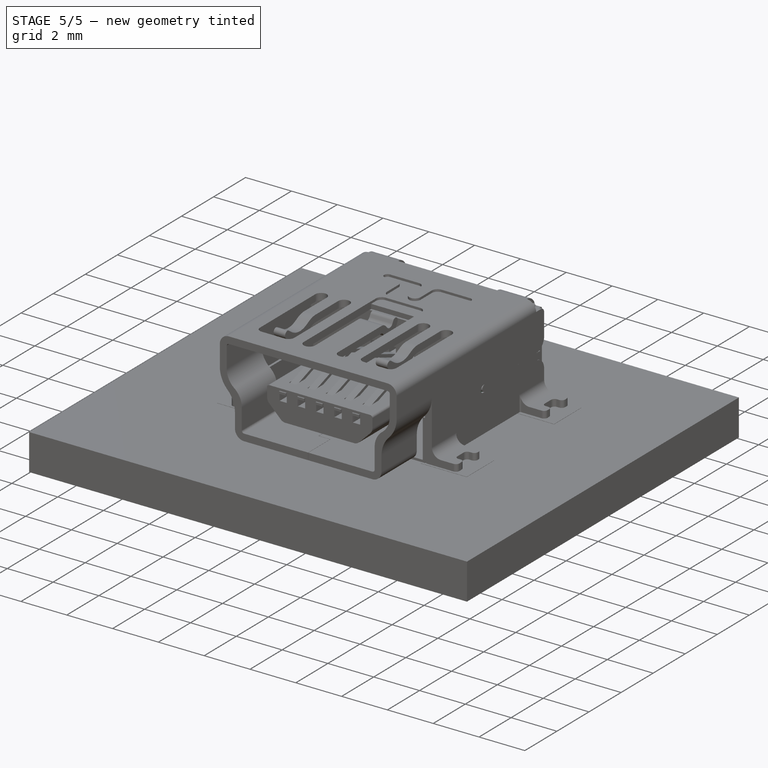
[diagram: stage 5 of 5 — iso view after this stage's code; geometry added in this stage tinted green]
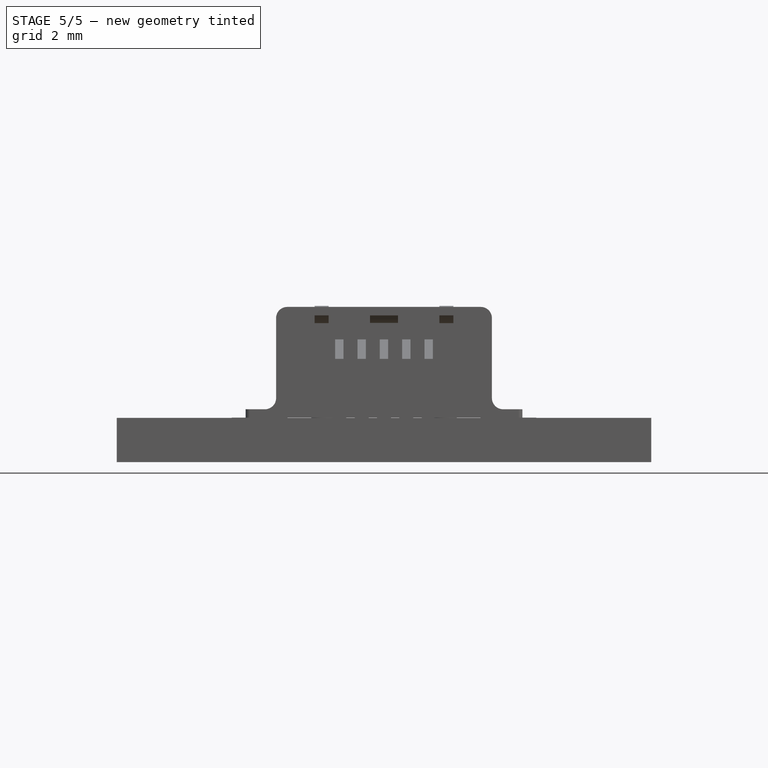
[diagram: stage 5 of 5 — front view after this stage's code; geometry added in this stage tinted green]
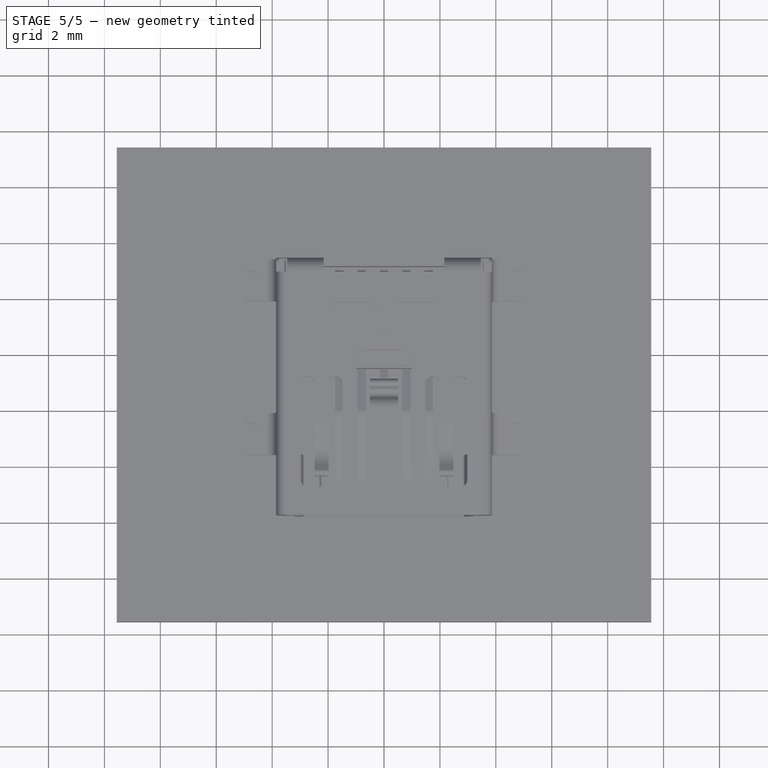
[diagram: stage 5 of 5 — top view after this stage's code; geometry added in this stage tinted green]
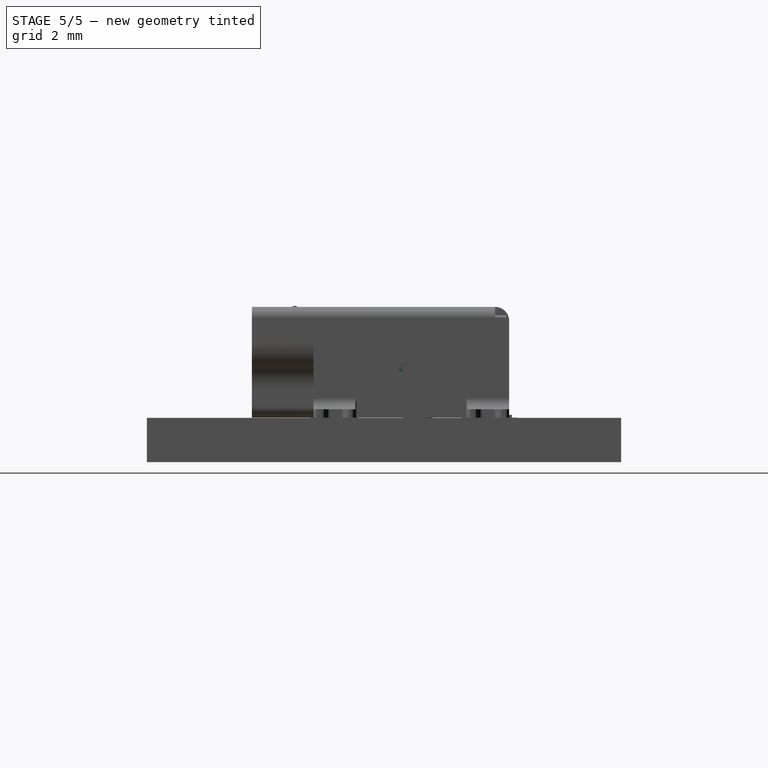
[diagram: stage 5 of 5 — right view after this stage's code; geometry added in this stage tinted green]
FEATURE [Sketcher::SketchObject] Sketch023
  ExternalGeometry = -> [Pad006]
  MapMode = 5
  Placement = pos=(0,0,2) rot=(1,0,0;3.14159rad)
  Support = -> [Pad006]
  sketch-geometry (10):
    g0: LineSegment StartX=-1.5 StartY=3.4 StartZ=0 EndX=-1.5 EndY=-1.7 EndZ=0
    g1: LineSegment StartX=-1.3 StartY=-1.9 StartZ=0 EndX=1.3 EndY=-1.9 EndZ=0
    g2: LineSegment StartX=1.5 StartY=-1.7 StartZ=0 EndX=1.5 EndY=3.4 EndZ=0
    g3: ArcOfCircle CenterX=-1.3 CenterY=-1.7 CenterZ=0 NormalX=0 NormalY=0 NormalZ=1 AngleXU=0 Radius=0.2 StartAngle=3.14159 EndAngle=4.71239
    g4: ArcOfCircle CenterX=1.3 CenterY=-1.7 CenterZ=0 NormalX=0 NormalY=0 NormalZ=1 AngleXU=0 Radius=0.2 StartAngle=4.71239 EndAngle=6.28319
    g5: ArcOfCircle CenterX=-1.6 CenterY=3.4 CenterZ=0 NormalX=0 NormalY=0 NormalZ=1 AngleXU=0 Radius=0.1 StartAngle=6.9422e-08 EndAngle=1.57077
    g6: ArcOfCircle CenterX=1.6 CenterY=3.4 CenterZ=0 NormalX=0 NormalY=0 NormalZ=1 AngleXU=0 Radius=0.1 StartAngle=1.57082 EndAngle=3.14159
    g7: LineSegment StartX=-1.6 StartY=3.5 StartZ=0 EndX=1.6 EndY=3.5 EndZ=0
    g8: LineSegment StartX=-1.6 StartY=3.5 StartZ=0 EndX=1.6 EndY=3.5 EndZ=0
    g9: LineSegment StartX=1.6 StartY=3.5 StartZ=0 EndX=-1.6 EndY=3.5 EndZ=0
  constraints (27):
    c: Vertical(g0)
    c: Horizontal(g1)
    c: Vertical(g2)
    c: Tangent(g1,g3) = -1.5708
    c: Tangent(g0,g3) = -1.5708
    c: Tangent(g1,g4) = -1.5708
    c: Tangent(g2,g4) = -1.5708
    c: Coincident(g5,g0)
    c: PointOnObject(g5,g-3)
    c: Coincident(g6,g2)
    c: Coincident(g7,g5)
    c: Coincident(g7,g6)
    c: Equal(g4,g3)
    c: Radius(g4) = 0.2
    c: DistanceY(g1,g-3) = 1.9
    c: Tangent(g0,g5)
    c: Tangent(g2,g6)
    c: DistanceX(g0,g2) = 3
    c: Symmetric(g0,g2,g-2)
    c: Coincident(g8,g5)
    c: Coincident(g8,g6)
    c: Coincident(g9,g6)
    c: Coincident(g9,g5)
    c: Tangent(g9,g6)
    c: Tangent(g9,g5)
    c: Equal(g6,g5)
    c: Radius(g5) = 0.1
FEATURE [PartDesign::Pocket] Pocket003003  label="7.Pocket003003"
  Length = 5
  Length2 = 100
  Profile = -> Sketch023
  Refine = true
  Type = 2
FEATURE [Part::Feature] Fillet002005001  label="Carcaza_0.1mm"
  shape: bbox 9.9 x 9.2 x 3.96 mm, 209 faces (baked)
FEATURE [Sketcher::SketchObject] Sketch026  label="8.Sketch026"
  ExternalGeometry = -> [Pocket003003]
  MapMode = 5
  Placement = pos=(0,0,0) rot=(0,0.707107,0.707107;3.14159rad)
  Support = -> [Pocket003003]
  sketch-geometry (3):
    g0: Circle CenterX=-2.2 CenterY=3.15 CenterZ=0 NormalX=0 NormalY=0 NormalZ=1 AngleXU=0 Radius=0.4
    g1: Circle CenterX=2.2 CenterY=3.15 CenterZ=0 NormalX=0 NormalY=0 NormalZ=1 AngleXU=0 Radius=0.4
    g2: LineSegment [constr] StartX=-2.2 StartY=3.15 StartZ=0 EndX=2.2 EndY=3.15 EndZ=0
  constraints (8):
    c: Equal(g0,g1)
    c: Coincident(g2,g0)
    c: Coincident(g2,g1)
    c: Horizontal(g2)
    c: Symmetric(g0,g1,g-2)
    c: DistanceX(g2,g2) = 4.4
    c: Radius(g1) = 0.4
    c: DistanceY(g-3,g0) = 3.15
FEATURE [PartDesign::Pad] Pad007  label="8.Pad007"
  Length = 1
  Length2 = 100
  Profile = -> Sketch026
  Refine = true
  Type = 0
FEATURE [Part::Fillet] Fillet002005002  label="8.Fillet002005002"
  Base = -> Pad007
  Edges = 2 edges r=0.15: [Edge142,Edge144]
FEATURE [Sketcher::SketchObject] Sketch027
  MapMode = 5
  Placement = pos=(0,-0.45,0) rot=(1,0,0;1.5708rad)
  Support = -> [Fillet002005002]
  sketch-geometry (25):
    g0: LineSegment StartX=-1.45 StartY=2.1 StartZ=0 EndX=-1.75 EndY=2.1 EndZ=0
    g1: LineSegment StartX=-1.75 StartY=2.1 StartZ=0 EndX=-1.75 EndY=2.5 EndZ=0
    g2: LineSegment StartX=-1.75 StartY=2.5 StartZ=0 EndX=-1.45 EndY=2.5 EndZ=0
    g3: LineSegment StartX=-1.45 StartY=2.5 StartZ=0 EndX=-1.45 EndY=2.1 EndZ=0
    g4: LineSegment StartX=-0.65 StartY=2.1 StartZ=0 EndX=-0.95 EndY=2.1 EndZ=0
    g5: LineSegment StartX=-0.95 StartY=2.1 StartZ=0 EndX=-0.95 EndY=2.5 EndZ=0
    g6: LineSegment StartX=-0.95 StartY=2.5 StartZ=0 EndX=-0.65 EndY=2.5 EndZ=0
    g7: LineSegment StartX=-0.65 StartY=2.5 StartZ=0 EndX=-0.65 EndY=2.1 EndZ=0
    g8: LineSegment StartX=0.15 StartY=2.1 StartZ=0 EndX=-0.15 EndY=2.1 EndZ=0
    g9: LineSegment StartX=-0.15 StartY=2.1 StartZ=0 EndX=-0.15 EndY=2.5 EndZ=0
    g10: LineSegment StartX=-0.15 StartY=2.5 StartZ=0 EndX=0.15 EndY=2.5 EndZ=0
    g11: LineSegment StartX=0.15 StartY=2.5 StartZ=0 EndX=0.15 EndY=2.1 EndZ=0
    g12: LineSegment StartX=0.95 StartY=2.1 StartZ=0 EndX=0.65 EndY=2.1 EndZ=0
    g13: LineSegment StartX=0.65 StartY=2.1 StartZ=0 EndX=0.65 EndY=2.5 EndZ=0
    g14: LineSegment StartX=0.65 StartY=2.5 StartZ=0 EndX=0.95 EndY=2.5 EndZ=0
    g15: LineSegment StartX=0.95 StartY=2.5 StartZ=0 EndX=0.95 EndY=2.1 EndZ=0
    g16: LineSegment StartX=1.75 StartY=2.1 StartZ=0 EndX=1.45 EndY=2.1 EndZ=0
    g17: LineSegment StartX=1.45 StartY=2.1 StartZ=0 EndX=1.45 EndY=2.5 EndZ=0
    g18: LineSegment StartX=1.45 StartY=2.5 StartZ=0 EndX=1.75 EndY=2.5 EndZ=0
    g19: LineSegment StartX=1.75 StartY=2.5 StartZ=0 EndX=1.75 EndY=2.1 EndZ=0
    g20: LineSegment [constr] StartX=-1.75 StartY=2.5 StartZ=0 EndX=1.75 EndY=2.5 EndZ=0
    g21: LineSegment [constr] StartX=-1.45 StartY=2.1 StartZ=0 EndX=-0.95 EndY=2.1 EndZ=0
    g22: LineSegment [constr] StartX=-0.65 StartY=2.1 StartZ=0 EndX=-0.15 EndY=2.1 EndZ=0
    g23: LineSegment [constr] StartX=0.15 StartY=2.1 StartZ=0 EndX=0.65 EndY=2.1 EndZ=0
    g24: LineSegment [constr] StartX=0.95 StartY=2.1 StartZ=0 EndX=1.45 EndY=2.1 EndZ=0
  constraints (70):
    c: Coincident(g0,g1)
    c: Coincident(g1,g2)
    c: Coincident(g2,g3)
    c: Coincident(g3,g0)
    c: Horizontal(g0)
    c: Horizontal(g2)
    c: Vertical(g1)
    c: Vertical(g3)
    c: Coincident(g4,g5)
    c: Coincident(g5,g6)
    c: Coincident(g6,g7)
    c: Coincident(g7,g4)
    c: Horizontal(g4)
    c: Horizontal(g6)
    c: Vertical(g5)
    c: Vertical(g7)
    c: Coincident(g8,g9)
    c: Coincident(g9,g10)
    c: Coincident(g10,g11)
    c: Coincident(g11,g8)
    c: Horizontal(g8)
    c: Horizontal(g10)
    c: Vertical(g9)
    c: Vertical(g11)
    c: Coincident(g12,g13)
    c: Coincident(g13,g14)
    c: Coincident(g14,g15)
    c: Coincident(g15,g12)
    c: Horizontal(g12)
    c: Horizontal(g14)
    c: Vertical(g13)
    c: Vertical(g15)
    c: Coincident(g16,g17)
    c: Coincident(g17,g18)
    c: Coincident(g18,g19)
    c: Coincident(g19,g16)
    c: Horizontal(g16)
    c: Horizontal(g18)
    c: Vertical(g17)
    c: Vertical(g19)
    c: Equal(g2,g6)
    c: Equal(g6,g10)
    c: Equal(g10,g14)
    c: Equal(g14,g18)
    c: Equal(g1,g5)
    c: Equal(g5,g9)
    c: Equal(g9,g13)
    c: Equal(g13,g17)
    c: Coincident(g20,g1)
    c: Coincident(g20,g18)
    c: Horizontal(g20)
    c: PointOnObject(g5,g20)
    c: PointOnObject(g9,g20)
    c: PointOnObject(g13,g20)
    c: DistanceY(g-1,g0) = 2.1
    c: DistanceX(g2,g2) = 0.3
    c: Symmetric(g10,g9,g-2)
    c: Coincident(g21,g0)
    c: Coincident(g21,g4)
    c: Coincident(g22,g4)
    c: Coincident(g22,g8)
    c: Coincident(g23,g12)
    c: Coincident(g24,g12)
    c: Coincident(g24,g16)
    c: Equal(g21,g22)
    c: Equal(g22,g23)
    c: Equal(g23,g24)
    c: DistanceX(g21,g21) = 0.5
    c: DistanceY(g3,g3) = 0.4
    c: Coincident(g23,g8)
FEATURE [PartDesign::Pocket] Pocket003006  label="9.Pocket003006"
  Length = 5
  Length2 = 100
  Profile = -> Sketch027
  Refine = true
  Type = 2
FEATURE [Sketcher::SketchObject] Sketch028
  MapMode = 5
  Placement = pos=(0,0,0) rot=(0.57735,0.57735,0.57735;2.0944rad)
  sketch-geometry (34):
    g0: LineSegment StartX=3.5 StartY=0 StartZ=0 EndX=3.05 EndY=0 EndZ=0
    g1: LineSegment StartX=2.85 StartY=0.2 StartZ=0 EndX=2.85 EndY=2.005 EndZ=0
    g2: LineSegment StartX=2.75 StartY=2.105 StartZ=0 EndX=-0.45 EndY=2.105 EndZ=0
    g3: LineSegment StartX=-5.035 StartY=1.90629 StartZ=0 EndX=-4.535 EndY=1.90629 EndZ=0
    g4: LineSegment StartX=-0.519835 StartY=2.11759 StartZ=0 EndX=-2.06246 EndY=2.69241 EndZ=0
    g5: LineSegment StartX=-2.19699 StartY=2.69425 StartZ=0 EndX=-4.4703 EndY=1.91705 EndZ=0
    g6: ArcOfCircle CenterX=-4.535 CenterY=2.10629 CenterZ=0 NormalX=0 NormalY=0 NormalZ=1 AngleXU=0 Radius=0.2 StartAngle=4.71239 EndAngle=5.04181
    g7: ArcOfCircle CenterX=-2.13229 CenterY=2.505 CenterZ=0 NormalX=0 NormalY=0 NormalZ=1 AngleXU=0 Radius=0.2 StartAngle=1.21411 EndAngle=1.90022
    g8: LineSegment StartX=3.5 StartY=0 StartZ=0 EndX=3.5 EndY=0.1 EndZ=0
    g9: LineSegment StartX=3.5 StartY=0.1 StartZ=0 EndX=3.05 EndY=0.1 EndZ=0
    g10: LineSegment StartX=2.95 StartY=0.2 StartZ=0 EndX=2.95 EndY=2.005 EndZ=0
    g11: LineSegment StartX=2.75 StartY=2.205 StartZ=0 EndX=-0.45 EndY=2.205 EndZ=0
    g12: LineSegment StartX=-0.519835 StartY=2.21759 StartZ=0 EndX=-2.02974 EndY=2.78022 EndZ=0
    g13: LineSegment StartX=-2.22731 StartY=2.78291 StartZ=0 EndX=-4.50061 EndY=2.00572 EndZ=0
    g14: LineSegment StartX=-4.535 StartY=2 StartZ=0 EndX=-5.035 EndY=2 EndZ=0
    g15: ArcOfCircle CenterX=-2.13229 CenterY=2.505 CenterZ=0 NormalX=0 NormalY=0 NormalZ=1 AngleXU=0 Radius=0.293706 StartAngle=1.21411 EndAngle=1.90022
    g16: ArcOfCircle CenterX=-4.535 CenterY=2.10629 CenterZ=0 NormalX=0 NormalY=0 NormalZ=1 AngleXU=0 Radius=0.106294 StartAngle=4.71239 EndAngle=5.04181
    g17: ArcOfCircle CenterX=-0.45 CenterY=2.305 CenterZ=0 NormalX=0 NormalY=0 NormalZ=1 AngleXU=0 Radius=0.2 StartAngle=4.3557 EndAngle=4.71239
    g18: ArcOfCircle CenterX=-0.45 CenterY=2.405 CenterZ=0 NormalX=0 NormalY=0 NormalZ=1 AngleXU=0 Radius=0.2 StartAngle=4.3557 EndAngle=4.71239
    g19: ArcOfCircle CenterX=2.75 CenterY=2.005 CenterZ=0 NormalX=0 NormalY=0 NormalZ=1 AngleXU=0 Radius=0.1 StartAngle=0 EndAngle=1.5708
    g20: ArcOfCircle CenterX=2.75 CenterY=2.005 CenterZ=0 NormalX=0 NormalY=0 NormalZ=1 AngleXU=0 Radius=0.2 StartAngle=0 EndAngle=1.5708
    g21: ArcOfCircle CenterX=3.05 CenterY=0.2 CenterZ=0 NormalX=0 NormalY=0 NormalZ=1 AngleXU=0 Radius=0.2 StartAngle=3.14159 EndAngle=4.71239
    g22: ArcOfCircle CenterX=3.05 CenterY=0.2 CenterZ=0 NormalX=0 NormalY=0 NormalZ=1 AngleXU=0 Radius=0.1 StartAngle=3.14159 EndAngle=4.71239
    g23: LineSegment [constr] StartX=3.05 StartY=0 StartZ=0 EndX=3.05 EndY=0.1 EndZ=0
    g24: LineSegment [constr] StartX=2.85 StartY=0.2 StartZ=0 EndX=2.95 EndY=0.2 EndZ=0
    g25: LineSegment [constr] StartX=2.85 StartY=2.005 StartZ=0 EndX=2.95 EndY=2.005 EndZ=0
    g26: LineSegment [constr] StartX=2.75 StartY=2.105 StartZ=0 EndX=2.75 EndY=2.205 EndZ=0
    g27: LineSegment [constr] StartX=-0.45 StartY=2.105 StartZ=0 EndX=-0.45 EndY=2.205 EndZ=0
    g28: LineSegment [constr] StartX=-0.519835 StartY=2.11759 StartZ=0 EndX=-0.519835 EndY=2.21759 EndZ=0
    g29: LineSegment [constr] StartX=-2.06246 StartY=2.69241 StartZ=0 EndX=-2.02974 EndY=2.78022 EndZ=0
    g30: LineSegment [constr] StartX=-2.19699 StartY=2.69425 StartZ=0 EndX=-2.22731 EndY=2.78291 EndZ=0
    g31: LineSegment [constr] StartX=-4.535 StartY=1.90629 StartZ=0 EndX=-4.535 EndY=2 EndZ=0
    g32: LineSegment [constr] StartX=-4.4703 StartY=1.91705 StartZ=0 EndX=-4.50061 EndY=2.00572 EndZ=0
    g33: LineSegment StartX=-5.035 StartY=1.90629 StartZ=0 EndX=-5.035 EndY=2 EndZ=0
  constraints (88):
    c: PointOnObject(g0,g-1)
    c: Horizontal(g0)
    c: Vertical(g1)
    c: Horizontal(g2)
    c: Horizontal(g3)
    c: Tangent(g5,g6) = 1.5708
    c: Tangent(g3,g6) = -1.5708
    c: Tangent(g4,g7) = -1.5708
    c: Tangent(g5,g7) = -1.5708
    c: Coincident(g0,g8)
    c: Coincident(g8,g9)
    c: Horizontal(g9)
    c: Horizontal(g14)
    c: Vertical(g8)
    c: Tangent(g12,g15) = -1.5708
    c: Tangent(g13,g15) = -1.5708
    c: Tangent(g14,g16) = 1.5708
    c: Tangent(g13,g16) = 1.5708
    c: Tangent(g2,g17) = 1.5708
    c: Tangent(g4,g17) = 1.5708
    c: Tangent(g11,g18) = 1.5708
    c: Tangent(g12,g18) = 1.5708
    c: Tangent(g1,g19) = -1.5708
    c: Tangent(g2,g19) = -1.5708
    c: Tangent(g10,g20) = -1.5708
    c: Tangent(g11,g20) = -1.5708
    c: Tangent(g0,g21) = 1.5708
    c: Tangent(g1,g21) = 1.5708
    c: Tangent(g9,g22) = 1.5708
    c: Tangent(g10,g22) = 1.5708
    c: Equal(g3,g14)
    c: DistanceY(g8,g8) = 0.1
    c: DistanceX(g-1,g0) = 3.5
    c: Equal(g0,g9)
    c: Coincident(g23,g0)
    c: Coincident(g23,g9)
    c: Coincident(g24,g1)
    c: Coincident(g24,g10)
    c: Horizontal(g24)
    c: Coincident(g25,g1)
    c: Coincident(g25,g10)
    c: Horizontal(g25)
    c: Coincident(g26,g2)
    c: Coincident(g26,g11)
    c: Vertical(g26)
    c: Coincident(g27,g2)
    c: Coincident(g27,g11)
    c: Vertical(g27)
    c: Coincident(g28,g4)
    c: Coincident(g28,g12)
    c: Vertical(g28)
    c: Coincident(g29,g4)
    c: Coincident(g29,g12)
    c: Coincident(g30,g5)
    c: Coincident(g30,g13)
    c: Coincident(g31,g3)
    c: Coincident(g31,g14)
    c: Coincident(g32,g5)
    c: Coincident(g32,g13)
    c: Equal(g28,g27)
    c: Equal(g27,g26)
    c: Equal(g26,g25)
    c: Equal(g25,g24)
    c: Equal(g24,g23)
    c: Equal(g23,g8)
    c: Vertical(g33)
    c: DistanceX(g33,g-1) = 5.035
    c: DistanceY(g-1,g33) = 2
    c: Coincident(g3,g33)
    c: Coincident(g14,g33)
    c: Equal(g33,g31)
    c: DistanceY(g-1,g2) = 2.105
    c: DistanceX(g-1,g19) = 2.75
    c: DistanceX(g14,g14) = 0.5
    c: Radius(g20) = 0.2
    c: Equal(g21,g20)
    c: Equal(g6,g20)
    c: Equal(g18,g20)
    c: DistanceX(g2,g2) = 3.2
    c: Perpendicular(g5,g30)
    c: Perpendicular(g29,g4)
    c: DistanceY(g2,g7) = 0.4
    c: Equal(g7,g21)
    c: Perpendicular(g32,g13)
    c: Equal(g32,g31)
    c: Equal(g30,g32)
    c: Equal(g29,g30)
    c: Perpendicular(g13,g30)
FEATURE [PartDesign::Pad] Pad008  label="1.Pad008"
  Length = 0.2995
  Length2 = 100
  Midplane = true
  Placement = pos=(0,0,0) rot=(0.57735,0.57735,0.57735;2.0944rad)
  Profile = -> Sketch028
  Refine = true
  Type = 0
FEATURE [Part::FeaturePython] Clone002  label="Clone of 1.Pad008"  # Draft clone (typed FeaturePython)
  Objects = -> [Pad008]
  Placement = pos=(0.8,0,0) rot=(0.57735,0.57735,0.57735;2.0944rad)
  Scale = (1,1,1)
FEATURE [Part::FeaturePython] Clone003  label="Clone of 1.Pad009"  # Draft clone (typed FeaturePython)
  Objects = -> [Pad008]
  Placement = pos=(1.6,0,0) rot=(0.57735,0.57735,0.57735;2.0944rad)
  Scale = (1,1,1)
FEATURE [Part::FeaturePython] Clone004  label="Clone of 1.Pad010"  # Draft clone (typed FeaturePython)
  Objects = -> [Pad008]
  Placement = pos=(-0.8,0,0) rot=(0.57735,0.57735,0.57735;2.0944rad)
  Scale = (1,1,1)
FEATURE [Part::FeaturePython] Clone005  label="Clone of 1.Pad011"  # Draft clone (typed FeaturePython)
  Objects = -> [Pad008]
  Placement = pos=(-1.6,0,0) rot=(0.57735,0.57735,0.57735;2.0944rad)
  Scale = (1,1,1)
FEATURE [Part::MultiFuse] Fusion009  label="PINES_"
  Refine = true
  Shapes = -> [Pad008,Clone003,Clone002,Clone005,Clone004]
FEATURE [App::DocumentObjectGroup] Grupo003  label="PIN_"
  Group = -> [Fusion009]
FEATURE [Sketcher::SketchObject] Sketch029  label="10.Sketch029"
  MapMode = 5
  Placement = pos=(0,0,2.1) rot=(0,0,1;0rad)
  Support = -> [Pocket003006]
  sketch-geometry (25):
    g0: LineSegment StartX=-1.45 StartY=-4.5 StartZ=0 EndX=-1.75 EndY=-4.5 EndZ=0
    g1: LineSegment StartX=-1.75 StartY=-4.5 StartZ=0 EndX=-1.75 EndY=-3.9 EndZ=0
    g2: LineSegment StartX=-1.75 StartY=-3.9 StartZ=0 EndX=-1.45 EndY=-3.9 EndZ=0
    g3: LineSegment StartX=-1.45 StartY=-3.9 StartZ=0 EndX=-1.45 EndY=-4.5 EndZ=0
    g4: LineSegment StartX=-0.65 StartY=-4.5 StartZ=0 EndX=-0.95 EndY=-4.5 EndZ=0
    g5: LineSegment StartX=-0.95 StartY=-4.5 StartZ=0 EndX=-0.95 EndY=-3.9 EndZ=0
    g6: LineSegment StartX=-0.95 StartY=-3.9 StartZ=0 EndX=-0.65 EndY=-3.9 EndZ=0
    g7: LineSegment StartX=-0.65 StartY=-3.9 StartZ=0 EndX=-0.65 EndY=-4.5 EndZ=0
    g8: LineSegment StartX=0.15 StartY=-4.5 StartZ=0 EndX=-0.15 EndY=-4.5 EndZ=0
    g9: LineSegment StartX=-0.15 StartY=-4.5 StartZ=0 EndX=-0.15 EndY=-3.9 EndZ=0
    g10: LineSegment StartX=-0.15 StartY=-3.9 StartZ=0 EndX=0.15 EndY=-3.9 EndZ=0
    g11: LineSegment StartX=0.15 StartY=-3.9 StartZ=0 EndX=0.15 EndY=-4.5 EndZ=0
    g12: LineSegment StartX=0.95 StartY=-4.5 StartZ=0 EndX=0.65 EndY=-4.5 EndZ=0
    g13: LineSegment StartX=0.65 StartY=-4.5 StartZ=0 EndX=0.65 EndY=-3.9 EndZ=0
    g14: LineSegment StartX=0.65 StartY=-3.9 StartZ=0 EndX=0.95 EndY=-3.9 EndZ=0
    g15: LineSegment StartX=0.95 StartY=-3.9 StartZ=0 EndX=0.95 EndY=-4.5 EndZ=0
    g16: LineSegment StartX=1.75 StartY=-4.5 StartZ=0 EndX=1.45 EndY=-4.5 EndZ=0
    g17: LineSegment StartX=1.45 StartY=-4.5 StartZ=0 EndX=1.45 EndY=-3.9 EndZ=0
    g18: LineSegment StartX=1.45 StartY=-3.9 StartZ=0 EndX=1.75 EndY=-3.9 EndZ=0
    g19: LineSegment StartX=1.75 StartY=-3.9 StartZ=0 EndX=1.75 EndY=-4.5 EndZ=0
    g20: LineSegment [constr] StartX=-1.75 StartY=-3.9 StartZ=0 EndX=1.75 EndY=-3.9 EndZ=0
    g21: LineSegment [constr] StartX=-1.45 StartY=-4.5 StartZ=0 EndX=-0.95 EndY=-4.5 EndZ=0
    g22: LineSegment [constr] StartX=-0.65 StartY=-4.5 StartZ=0 EndX=-0.15 EndY=-4.5 EndZ=0
    g23: LineSegment [constr] StartX=0.15 StartY=-4.5 StartZ=0 EndX=0.65 EndY=-4.5 EndZ=0
    g24: LineSegment [constr] StartX=0.95 StartY=-4.5 StartZ=0 EndX=1.45 EndY=-4.5 EndZ=0
  constraints (70):
    c: Coincident(g0,g1)
    c: Coincident(g1,g2)
    c: Coincident(g2,g3)
    c: Coincident(g3,g0)
    c: Horizontal(g0)
    c: Horizontal(g2)
    c: Vertical(g1)
    c: Vertical(g3)
    c: Coincident(g4,g5)
    c: Coincident(g5,g6)
    c: Coincident(g6,g7)
    c: Coincident(g7,g4)
    c: Horizontal(g4)
    c: Horizontal(g6)
    c: Vertical(g5)
    c: Vertical(g7)
    c: Coincident(g8,g9)
    c: Coincident(g9,g10)
    c: Coincident(g10,g11)
    c: Coincident(g11,g8)
    c: Horizontal(g8)
    c: Horizontal(g10)
    c: Vertical(g9)
    c: Vertical(g11)
    c: Coincident(g12,g13)
    c: Coincident(g13,g14)
    c: Coincident(g14,g15)
    c: Coincident(g15,g12)
    c: Horizontal(g12)
    c: Horizontal(g14)
    c: Vertical(g13)
    c: Vertical(g15)
    c: Coincident(g16,g17)
    c: Coincident(g17,g18)
    c: Coincident(g18,g19)
    c: Coincident(g19,g16)
    c: Horizontal(g16)
    c: Horizontal(g18)
    c: Vertical(g17)
    c: Vertical(g19)
    c: Equal(g2,g6)
    c: Equal(g6,g10)
    c: Equal(g10,g14)
    c: Equal(g14,g18)
    c: Equal(g1,g5)
    c: Equal(g5,g9)
    c: Equal(g9,g13)
    c: Equal(g13,g17)
    c: Coincident(g20,g1)
    c: Coincident(g20,g18)
    c: Horizontal(g20)
    c: PointOnObject(g5,g20)
    c: PointOnObject(g9,g20)
    c: PointOnObject(g13,g20)
    c: Coincident(g21,g0)
    c: Coincident(g21,g4)
    c: Coincident(g22,g4)
    c: Coincident(g22,g8)
    c: Coincident(g23,g8)
    c: Coincident(g23,g12)
    c: Coincident(g24,g12)
    c: Coincident(g24,g16)
    c: Equal(g21,g22)
    c: Equal(g22,g23)
    c: Equal(g23,g24)
    c: Symmetric(g9,g10,g-2)
    c: DistanceX(g2,g2) = 0.3
    c: DistanceX(g21,g21) = 0.5
    c: DistanceY(g0,g-1) = 4.5
    c: DistanceY(g19,g19) = 0.6
FEATURE [PartDesign::Pocket] Pocket003007  label="10.Pocket003007"
  Length = 5
  Length2 = 100
  Profile = -> Sketch029
  Refine = true
  Type = 2
FEATURE [Sketcher::SketchObject] Sketch030
  ExternalGeometry = -> [Pocket003007]
  MapMode = 5
  Placement = pos=(0,3.4,0) rot=(0,0.707107,0.707107;3.14159rad)
  Support = -> [Pocket003007]
  sketch-geometry (8):
    g0: LineSegment StartX=-3.76 StartY=3.56 StartZ=0 EndX=-2.96 EndY=3.56 EndZ=0
    g1: LineSegment StartX=-2.96 StartY=3.56 StartZ=0 EndX=-2.96 EndY=3.86 EndZ=0
    g2: LineSegment StartX=-2.96 StartY=3.86 StartZ=0 EndX=-3.46 EndY=3.86 EndZ=0
    g3: ArcOfCircle CenterX=-3.46 CenterY=3.56 CenterZ=0 NormalX=0 NormalY=0 NormalZ=1 AngleXU=0 Radius=0.3 StartAngle=1.5708 EndAngle=3.14159
    g4: LineSegment StartX=3.76 StartY=3.56 StartZ=0 EndX=2.96 EndY=3.56 EndZ=0
    g5: LineSegment StartX=2.96 StartY=3.56 StartZ=0 EndX=2.96 EndY=3.86 EndZ=0
    g6: LineSegment StartX=2.96 StartY=3.86 StartZ=0 EndX=3.46 EndY=3.86 EndZ=0
    g7: ArcOfCircle CenterX=3.46 CenterY=3.56 CenterZ=0 NormalX=0 NormalY=0 NormalZ=1 AngleXU=0 Radius=0.3 StartAngle=9.3e-11 EndAngle=1.5708
  constraints (23):
    c: Horizontal(g0)
    c: Coincident(g0,g1)
    c: Vertical(g1)
    c: Coincident(g2,g1)
    c: Horizontal(g2)
    c: Coincident(g3,g-3)
    c: DistanceX(g0,g0) = 0.8
    c: Coincident(g0,g3)
    c: Coincident(g2,g3)
    c: Tangent(g2,g3)
    c: Coincident(g0,g-3)
    c: Coincident(g4,g-5)
    c: Horizontal(g4)
    c: Coincident(g4,g5)
    c: Vertical(g5)
    c: Coincident(g5,g6)
    c: Coincident(g6,g-5)
    c: Horizontal(g6)
    c: Coincident(g7,g6)
    c: Coincident(g7,g4)
    c: Equal(g2,g6)
    c: Equal(g5,g1)
    c: Equal(g3,g7)
FEATURE [PartDesign::Pocket] Pocket003008
  Length = 0.65
  Length2 = 100
  Profile = -> Sketch030
  Refine = true
  Type = 0
FEATURE [Part::Fillet] Fillet002005003
  Base = -> Pocket003008
  Edges = 4 edges r=0.05: [Edge43,Edge71,Edge137,Edge181]
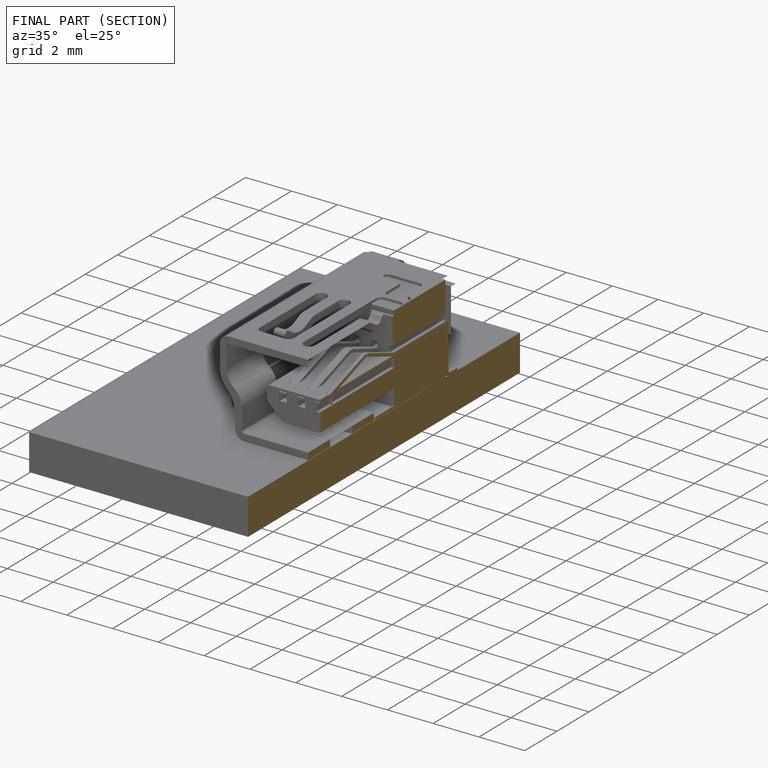
[diagram: finished part — half-section view (interior)]
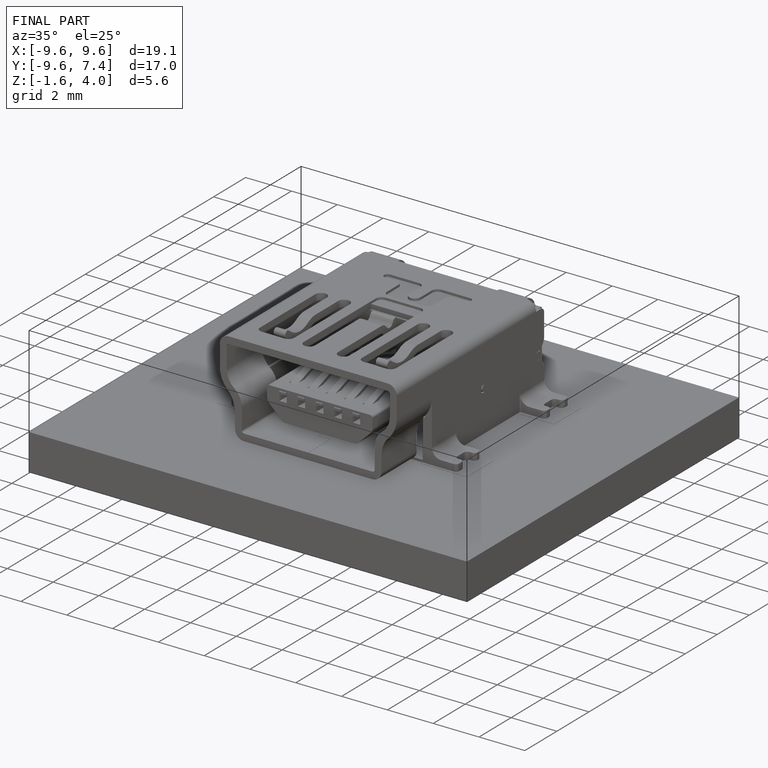
[diagram: finished part — iso view with bounding-box wireframe]
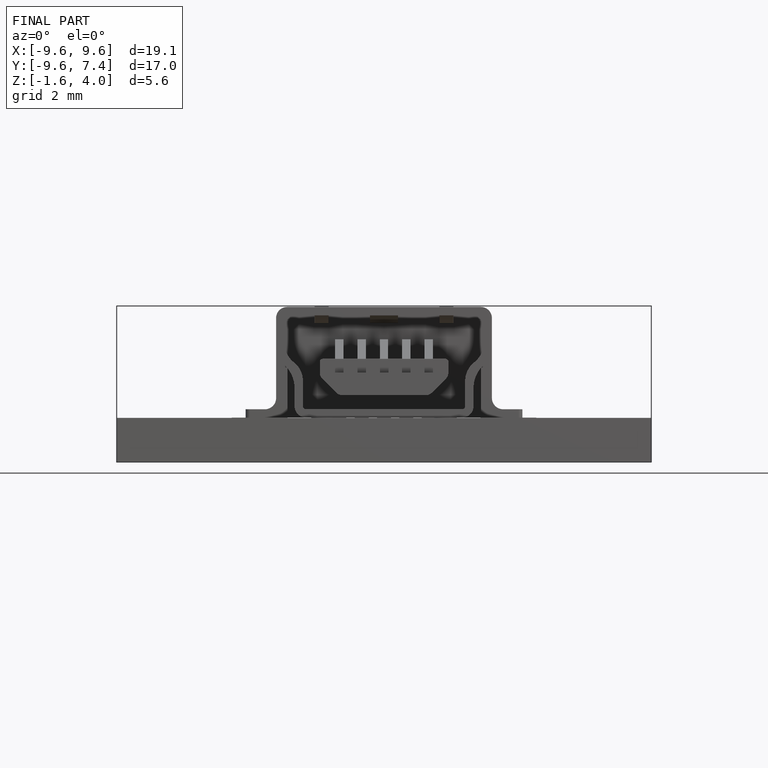
[diagram: finished part — front view with bounding-box wireframe]
